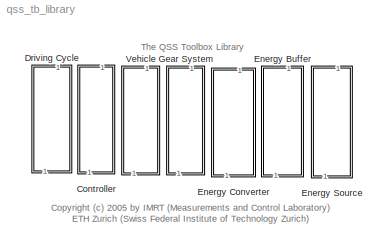
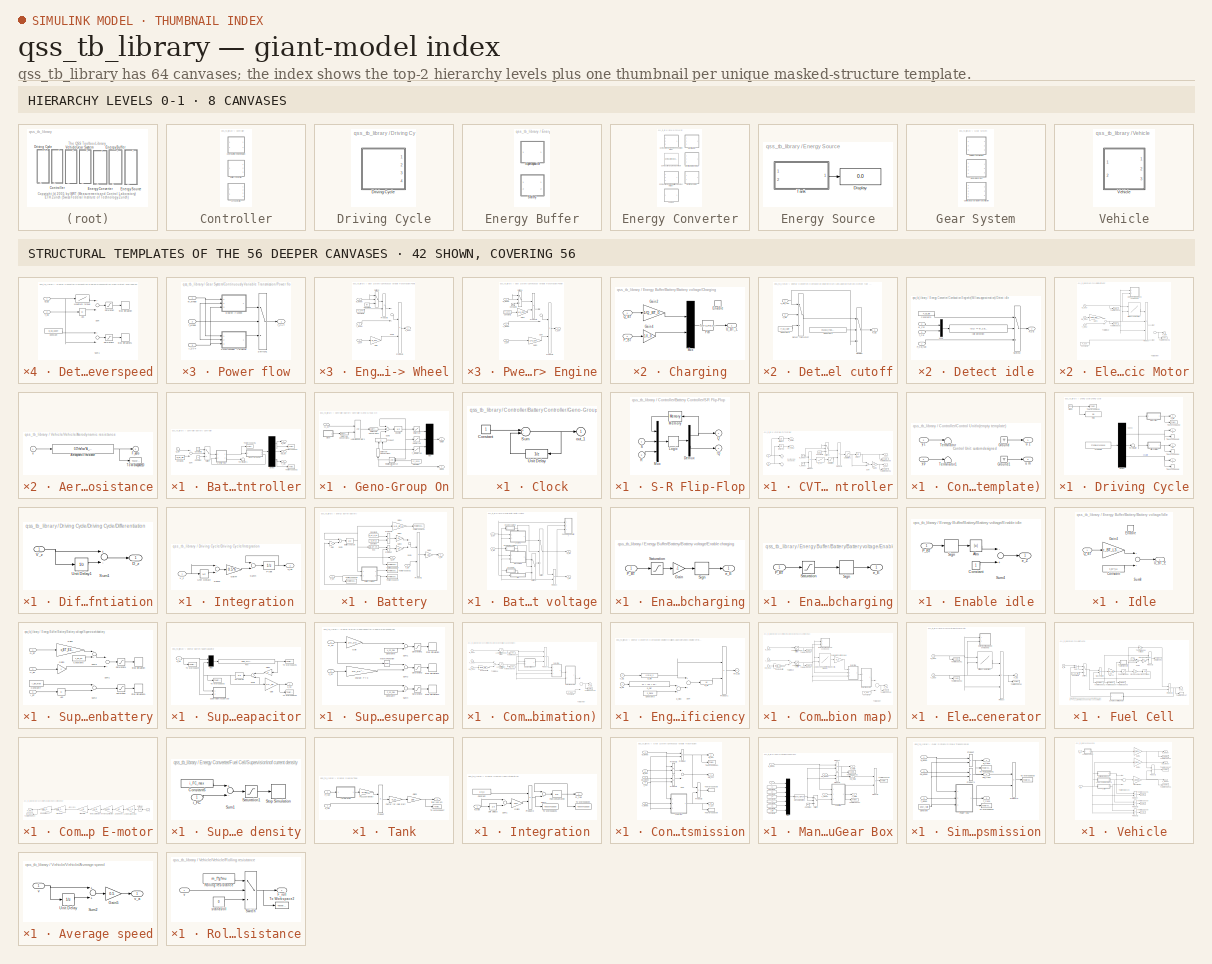
[diagram: thumbnail index - top-2 hierarchy levels (8 canvases) + 42 structural-template representatives of the remaining 56 canvases]
MODEL qss_tb_library
KIND library
BLOCK [SubSystem] Controller
  FunctionWithSeparateData = off
  MaskDisplay = disp('Controller')
  MaskHideContents = off
  MaskIconFrame = on
  MaskIconOpaque = on
  MaskIconRotate = port
  MaskIconUnits = autoscale
  MaskPortRotate = default
  MinAlgLoopOccurrences = off
  Opaque = off
  Ports = []
  PropExecContextOutsideSubsystem = off
  RTWSystemCode = Auto
  RequestExecContextInheritance = off
  SID = 1
BLOCK [SubSystem] Controller/Battery Controller
  AncestorBlock = qss_tb_library/Controller/Battery Controller
  FunctionWithSeparateData = off
  MaskDescription = Control strategy (very primitive):\n========================\nAs soon as battery charge drops below level Q_BT_min, the CE/Generator\nare started and operated at given load/speed for a fixed time period.\nThis time has been selected to guarantee the same battery level at the\nend of the cycle.\n
  MaskHideContents = off
  MaskIconFrame = on
  MaskIconOpaque = on
  MaskIconRotate = none
  MaskIconUnits = autoscale
  MaskInitialization = init_BT_ctrl;
  MaskPortRotate = default
  MaskType = Battery Controller
  MinAlgLoopOccurrences = off
  Opaque = off
  Ports = [1, 3]
  PropExecContextOutsideSubsystem = off
  RTWSystemCode = Auto
  RequestExecContextInheritance = off
  SID = 2
BLOCK [Constant] Controller/Battery Controller/Constant
  OutDataTypeStr = boolean
  SID = 2:2
BLOCK [Constant] Controller/Battery Controller/Constant1
  SID = 2:3
  Value = Q_BT_min
BLOCK [Constant] Controller/Battery Controller/Constant2
  OutDataTypeStr = boolean
  SID = 2:4
  Value = 0
BLOCK [Demux] Controller/Battery Controller/Demux
  Outputs = 3
  Ports = [1, 3]
  SID = 2:5
BLOCK [SubSystem] Controller/Battery Controller/Geno-Group On
  FunctionWithSeparateData = off
  MaskHideContents = off
  MinAlgLoopOccurrences = off
  Opaque = off
  Ports = [1, 2]
  PropExecContextOutsideSubsystem = off
  RTWSystemCode = Auto
  RequestExecContextInheritance = off
  SID = 2:6
BLOCK [SubSystem] Controller/Battery Controller/Geno-Group On/Clock
  FunctionWithSeparateData = off
  MaskDescription = Digital clock.\nOutput is set to 1 for the first half of the period.
  MaskDisplay = plot(0,0,100,100,[90,75,75,60,60,35,35,20,20,10],[20,20,80,80,19,20,80,80,20,20])
  MaskEnableString = on
  MaskHelp = Digital clock for logic systems.
  MaskHideContents = off
  MaskIconFrame = on
  MaskIconOpaque = on
  MaskIconRotate = none
  MaskIconUnits = autoscale
  MaskInitialization = duration = @1/2;
  MaskPortRotate = default
  MaskPromptString = Period:
  MaskStyleString = edit
  MaskToolTipString = on
  MaskTunableValueString = on
  MaskType = Digital clock
  MaskValueString = 2
  MaskVisibilityString = on
  MinAlgLoopOccurrences = off
  Opaque = off
  Ports = [0, 1]
  PropExecContextOutsideSubsystem = off
  RTWSystemCode = Auto
  RequestExecContextInheritance = off
  SID = 2:8
BLOCK [Constant] Controller/Battery Controller/Geno-Group On/Clock/Constant
  SID = 2:9
BLOCK [Sum] Controller/Battery Controller/Geno-Group On/Clock/Sum
  Inputs = +-
  Ports = [2, 1]
  SID = 2:10
BLOCK [UnitDelay] Controller/Battery Controller/Geno-Group On/Clock/Unit Delay
  SID = 2:11
  SampleTime = duration
BLOCK [Outport] Controller/Battery Controller/Geno-Group On/Clock/out_1
  IconDisplay = Port number
  InitialOutput = 0
  SID = 2:12
BLOCK [Constant] Controller/Battery Controller/Geno-Group On/Constant
  SID = 2:13
  Value = cc_done
BLOCK [UnitDelay] Controller/Battery Controller/Geno-Group On/Counter
  SID = 2:14
  SampleTime = h
BLOCK [DataTypeConversion] Controller/Battery Controller/Geno-Group On/Data Type Conversion1
  OutDataTypeStr = boolean
  RndMeth = Floor
  SID = 2:15
  SaturateOnIntegerOverflow = off
BLOCK [DataTypeConversion] Controller/Battery Controller/Geno-Group On/Data Type Conversion2
  OutDataTypeStr = double
  RndMeth = Floor
  SID = 2:16
  SaturateOnIntegerOverflow = off
BLOCK [DataTypeConversion] Controller/Battery Controller/Geno-Group On/Data Type Conversion3
  OutDataTypeStr = double
  RndMeth = Floor
  SID = 2:17
  SaturateOnIntegerOverflow = off
BLOCK [Logic] Controller/Battery Controller/Geno-Group On/Logical\noperator3
  Ports = [2, 1]
  SID = 2:18
BLOCK [Mux] Controller/Battery Controller/Geno-Group On/Mux
  Inputs = 3
  Ports = [3, 1]
  SID = 2:19
BLOCK [Outport] Controller/Battery Controller/Geno-Group On/OutOn
  IconDisplay = Port number
  InitialOutput = 0
  SID = 2:26
BLOCK [Product] Controller/Battery Controller/Geno-Group On/Product
  Ports = [2, 1]
  SID = 2:20
BLOCK [RelationalOperator] Controller/Battery Controller/Geno-Group On/Relational\nOperator
  OutDataTypeStr = boolean
  Ports = [2, 1]
  SID = 2:21
BLOCK [Sum] Controller/Battery Controller/Geno-Group On/Sum3
  Inputs = ++-
  Ports = [3, 1]
  SID = 2:22
BLOCK [Lookup] Controller/Battery Controller/Geno-Group On/T_EG start-up
  InputValues = t_c
  SID = 2:23
  Table = T_EG_c
BLOCK [Inport] Controller/Battery Controller/Geno-Group On/cc_on
  IconDisplay = Port number
  SID = 2:7
BLOCK [Outport] Controller/Battery Controller/Geno-Group On/done
  IconDisplay = Port number
  InitialOutput = 0
  Port = 2
  SID = 2:27
BLOCK [Lookup] Controller/Battery Controller/Geno-Group On/dw start-up
  InputValues = t_c
  SID = 2:24
  Table = dw_GG_c
BLOCK [Lookup] Controller/Battery Controller/Geno-Group On/w start-up
  InputValues = t_c
  SID = 2:25
  Table = w_GG_c
BLOCK [Inport] Controller/Battery Controller/Q_BT
  IconDisplay = Port number
  SID = 2:1
BLOCK [SubSystem] Controller/Battery Controller/S-R Flip-Flop
  FunctionWithSeparateData = off
  MaskHideContents = off
  MinAlgLoopOccurrences = off
  Opaque = off
  Ports = [2, 2]
  PropExecContextOutsideSubsystem = off
  RTWSystemCode = Auto
  RequestExecContextInheritance = off
  SID = 2:28
BLOCK [Outport] Controller/Battery Controller/S-R Flip-Flop/!Q
  IconDisplay = Port number
  InitialOutput = 1
  Port = 2
  SID = 2:36
BLOCK [Demux] Controller/Battery Controller/S-R Flip-Flop/Demux
  Outputs = 2
  Ports = [1, 2]
  SID = 2:31
BLOCK [CombinatorialLogic] Controller/Battery Controller/S-R Flip-Flop/Logic
  SID = 2:32
  TruthTable = [0 1;0 1;1 0;0 1;1 0;0 1;1 0;1 0]
BLOCK [Memory] Controller/Battery Controller/S-R Flip-Flop/Memory
  InheritSampleTime = on
  SID = 2:33
BLOCK [Mux] Controller/Battery Controller/S-R Flip-Flop/Mux
  Inputs = 3
  Ports = [3, 1]
  SID = 2:34
BLOCK [Outport] Controller/Battery Controller/S-R Flip-Flop/Q
  IconDisplay = Port number
  InitialOutput = 0
  SID = 2:35
BLOCK [Inport] Controller/Battery Controller/S-R Flip-Flop/R
  IconDisplay = Port number
  Port = 2
  SID = 2:30
BLOCK [Inport] Controller/Battery Controller/S-R Flip-Flop/S
  IconDisplay = Port number
  SID = 2:29
BLOCK [Sum] Controller/Battery Controller/Sum
  Inputs = +-
  Ports = [2, 1]
  SID = 2:37
BLOCK [Switch] Controller/Battery Controller/Switch
  SID = 2:38
BLOCK [Outport] Controller/Battery Controller/T_ctrl
  IconDisplay = Port number
  InitialOutput = 0
  Port = 3
  SID = 2:45
BLOCK [Terminator] Controller/Battery Controller/Terminator1
  SID = 2:39
BLOCK [ToWorkspace] Controller/Battery Controller/To Workspace1
  MaxDataPoints = inf
  Ports = [1]
  SID = 2:40
  SampleTime = -1
  SaveFormat = Array
  VariableName = w_ctrl
BLOCK [ToWorkspace] Controller/Battery Controller/To Workspace2
  MaxDataPoints = inf
  Ports = [1]
  SID = 2:41
  SampleTime = -1
  SaveFormat = Array
  VariableName = T_ctrl
BLOCK [ToWorkspace] Controller/Battery Controller/To Workspace5
  MaxDataPoints = inf
  Ports = [1]
  SID = 2:42
  SampleTime = -1
  SaveFormat = Array
  VariableName = cc_on
BLOCK [Outport] Controller/Battery Controller/dw_ctrl
  IconDisplay = Port number
  InitialOutput = 0
  Port = 2
  SID = 2:44
BLOCK [Outport] Controller/Battery Controller/w_ctrl
  IconDisplay = Port number
  InitialOutput = 0
  SID = 2:43
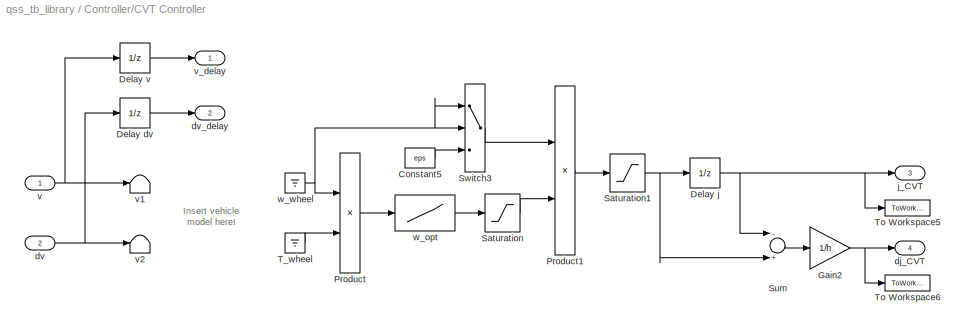
BLOCK [SubSystem] Controller/CVT Controller
  FunctionWithSeparateData = off
  MaskCallbackString = ||||
  MaskDescription = This block calculates the optimum gear ratio and its change during one integration step for a CVT.\n\nInput:\n=====\n	v		Speed [m/s]\n	dv		Acceleration [m/s^2]\n\nOutput:\n======\n	v_delay		Speed one step delayed [m/s]\n	dv_delay	Acceleration one step delayed [m/s^2]\n	j_CVT		Gear ratio [-]\n	dj_CVT		Change of gear ratio [1/s]
  MaskEnableString = on,on,on,on,on
  MaskHideContents = off
  MaskIconFrame = on
  MaskIconOpaque = on
  MaskIconRotate = none
  MaskIconUnits = autoscale
  MaskInitialization = init_CVT_ctrl;
  MaskPortRotate = default
  MaskPromptString = Lower gear ratio limit [-]|Upper gear ratio limit [-]|Minimum wheel speed [rad/s]|CVT idle speed [rad/s]|Maximum CVT speed [rad/s]
  MaskStyleString = edit,edit,edit,edit,edit
  MaskToolTipString = on,on,on,on,on
  MaskTunableValueString = on,on,on,on,on
  MaskType = CVT Controller
  MaskValueString = 3|15|3|100|300
  MaskVariables = j_CVT_min=@1;j_CVT_max=@2;w_wheel_min=@3;w_CVT_idle=@4;w_CVT_upper=@5;
  MaskVisibilityString = on,on,on,on,on
  MinAlgLoopOccurrences = off
  Opaque = off
  Ports = [2, 4]
  PropExecContextOutsideSubsystem = off
  RTWSystemCode = Auto
  RequestExecContextInheritance = off
  SID = 3
  Tag = cvt controller
BLOCK [Constant] Controller/CVT Controller/Constant5
  SID = 6
  Value = eps
BLOCK [UnitDelay] Controller/CVT Controller/Delay dv
  SID = 7
  SampleTime = h
BLOCK [UnitDelay] Controller/CVT Controller/Delay j
  SID = 8
  SampleTime = h
  X0 = j_CVT_min
BLOCK [UnitDelay] Controller/CVT Controller/Delay v
  SID = 9
  SampleTime = h
BLOCK [Gain] Controller/CVT Controller/Gain2
  Gain = 1/h
  SID = 10
BLOCK [Product] Controller/CVT Controller/Product
  Ports = [2, 1]
  SID = 11
BLOCK [Product] Controller/CVT Controller/Product1
  Inputs = /*
  Ports = [2, 1]
  SID = 12
BLOCK [Saturate] Controller/CVT Controller/Saturation
  InputPortMap = u0
  LowerLimit = w_CVT_idle
  Ports = [1, 1]
  SID = 13
  UpperLimit = w_CVT_upper
BLOCK [Saturate] Controller/CVT Controller/Saturation1
  InputPortMap = u0
  LowerLimit = j_CVT_min
  Ports = [1, 1]
  SID = 14
  UpperLimit = j_CVT_max
BLOCK [Sum] Controller/CVT Controller/Sum
  Inputs = -+
  Ports = [2, 1]
  SID = 15
BLOCK [Switch] Controller/CVT Controller/Switch3
  SID = 16
  Threshold = w_wheel_min
BLOCK [Ground] Controller/CVT Controller/T_wheel
  SID = 17
BLOCK [ToWorkspace] Controller/CVT Controller/To Workspace5
  MaxDataPoints = inf
  Ports = [1]
  SID = 18
  SampleTime = -1
  SaveFormat = Array
  VariableName = j_CVT
BLOCK [ToWorkspace] Controller/CVT Controller/To Workspace6
  MaxDataPoints = inf
  Ports = [1]
  SID = 19
  SampleTime = -1
  SaveFormat = Array
  VariableName = dj_CVT
BLOCK [Outport] Controller/CVT Controller/dj_CVT
  IconDisplay = Port number
  InitialOutput = 0
  Port = 4
  SID = 27
BLOCK [Inport] Controller/CVT Controller/dv
  IconDisplay = Port number
  Port = 2
  SID = 5
BLOCK [Outport] Controller/CVT Controller/dv_delay
  IconDisplay = Port number
  InitialOutput = 0
  Port = 2
  SID = 25
BLOCK [Outport] Controller/CVT Controller/j_CVT
  IconDisplay = Port number
  InitialOutput = 0
  Port = 3
  SID = 26
BLOCK [Inport] Controller/CVT Controller/v
  IconDisplay = Port number
  SID = 4
BLOCK [Terminator] Controller/CVT Controller/v1
  SID = 20
BLOCK [Terminator] Controller/CVT Controller/v2
  SID = 21
BLOCK [Outport] Controller/CVT Controller/v_delay
  IconDisplay = Port number
  InitialOutput = 0
  SID = 24
BLOCK [Lookup] Controller/CVT Controller/w_opt
  InputValues = P_CVT_opt
  SID = 22
  Table = w_CVT_opt
BLOCK [Ground] Controller/CVT Controller/w_wheel
  SID = 23
BLOCK [SubSystem] Controller/Control Unit\n(empty template)
  FunctionWithSeparateData = off
  MaskDescription = This block gives the user the opportunity to design his/her own control unit. \n\nThe user can define the inputs and outputs  by himself/herself.\n
  MaskHideContents = off
  MaskIconFrame = on
  MaskIconOpaque = on
  MaskIconRotate = none
  MaskIconUnits = autoscale
  MaskPortRotate = default
  MaskType = Control Unit
  MinAlgLoopOccurrences = off
  Opaque = off
  Ports = [2, 2]
  PropExecContextOutsideSubsystem = off
  RTWSystemCode = Auto
  RequestExecContextInheritance = off
  SID = 28
  Tag = control unit
BLOCK [Ground] Controller/Control Unit\n(empty template)/Ground
  SID = 31
BLOCK [Ground] Controller/Control Unit\n(empty template)/Ground1
  SID = 32
BLOCK [Terminator] Controller/Control Unit\n(empty template)/Terminator
  SID = 33
BLOCK [Terminator] Controller/Control Unit\n(empty template)/Terminator1
  SID = 34
BLOCK [Outport] Controller/Control Unit\n(empty template)/u 1
  IconDisplay = Port number
  InitialOutput = 0
  SID = 35
BLOCK [Outport] Controller/Control Unit\n(empty template)/u m
  IconDisplay = Port number
  InitialOutput = 0
  Port = 2
  SID = 36
BLOCK [Inport] Controller/Control Unit\n(empty template)/y 1
  IconDisplay = Port number
  SID = 29
BLOCK [Inport] Controller/Control Unit\n(empty template)/y p
  IconDisplay = Port number
  Port = 2
  SID = 30
BLOCK [SubSystem] Driving Cycle
  FunctionWithSeparateData = off
  MaskDisplay = disp('Driving Cycle')
  MaskHideContents = off
  MaskIconFrame = on
  MaskIconOpaque = on
  MaskIconRotate = port
  MaskIconUnits = autoscale
  MaskPortRotate = default
  MinAlgLoopOccurrences = off
  Opaque = off
  Ports = []
  PropExecContextOutsideSubsystem = off
  RTWSystemCode = Auto
  RequestExecContextInheritance = off
  SID = 37
BLOCK [SubSystem] Driving Cycle/Driving Cycle
  FunctionWithSeparateData = off
  MaskCallbackString = ||
  MaskDescription = This block loads the cycle data such as time, speed, acceleration and gear number,  from the specified data file and makes it available on the output of the cycle block.\n\nOutput:\n======\n	v	Speed [m/s]\n	dv	Acceleration [m/s^2]\n	i	Gear number [-]\n	x_tot	Total distance [m]\n\nTip:\n===\nProbably you don't need the gear number \"i\". If so you can terminate\nit with a \"Terminator\" out of the ...<+423ch>
  MaskDisplay = plot(T_zplot, V_zplot);\n
  MaskEnableString = on,on,on
  MaskHideContents = off
  MaskIconFrame = on
  MaskIconOpaque = off
  MaskIconRotate = none
  MaskIconUnits = autoscale
  MaskInitialization = init_driving_cycle;
  MaskPortRotate = default
  MaskPromptString = Choose a cycle|Step size [s]|Enable automatic simulation stop
  MaskStyleString = popup(Europe: ECE manual|Europe: ECE R15 spez|Europe: ECE R15|Europe: EUDC|Europe: EUDC manual|Europe: City|Europe: City manual|Europe: NEDC|Europe: NEDC manual|Japan:  10-15-Mode|Japan:  10-Mode|Japan:  10-Mode-3|Japan:  11-Mode|Japan:  11-Mode-4|Japan:  15-Mode|USA:    City-I|USA:    City-II|USA:    FTP-75|USA:    FTP-Highway|Int'l:     WLTC Class 3),edit,checkbox
  MaskToolTipString = on,on,on
  MaskTunableValueString = on,on,on
  MaskType = Driving Cycle
  MaskValueString = Europe: NEDC|1|on
  MaskVariables = cyclenr=@1;stepsize=@2;autostop=@3;
  MaskVisibilityString = on,on,on
  MinAlgLoopOccurrences = off
  Opaque = off
  Ports = [0, 4]
  PropExecContextOutsideSubsystem = off
  RTWSystemCode = Auto
  RequestExecContextInheritance = off
  SID = 38
  Tag = cycle
BLOCK [Clock] Driving Cycle/Driving Cycle/Clock
  SID = 39
BLOCK [FromWorkspace] Driving Cycle/Driving Cycle/Cycle data
  SID = 40
  SampleTime = h
  VariableName = [T_z, V_z, D_z, G_z]
BLOCK [Demux] Driving Cycle/Driving Cycle/Demux
  Outputs = 3
  Ports = [1, 3]
  SID = 41
BLOCK [SubSystem] Driving Cycle/Driving Cycle/Differentiation
  FunctionWithSeparateData = off
  MaskHideContents = off
  MinAlgLoopOccurrences = off
  Opaque = off
  Ports = [1, 1]
  PropExecContextOutsideSubsystem = off
  RTWSystemCode = Auto
  RequestExecContextInheritance = off
  SID = 42
BLOCK [Outport] Driving Cycle/Driving Cycle/Differentiation/D_z
  IconDisplay = Port number
  InitialOutput = 0
  SID = 46
BLOCK [Sum] Driving Cycle/Driving Cycle/Differentiation/Sum1
  Inputs = +-
  Ports = [2, 1]
  SID = 44
BLOCK [UnitDelay] Driving Cycle/Driving Cycle/Differentiation/Unit Delay1
  SID = 45
  SampleTime = h
BLOCK [Inport] Driving Cycle/Driving Cycle/Differentiation/V_z
  IconDisplay = Port number
  SID = 43
BLOCK [SubSystem] Driving Cycle/Driving Cycle/Integration
  FunctionWithSeparateData = off
  MaskHideContents = off
  MinAlgLoopOccurrences = off
  Opaque = off
  Ports = [1, 1]
  PropExecContextOutsideSubsystem = off
  RTWSystemCode = Auto
  RequestExecContextInheritance = off
  SID = 47
BLOCK [Gain] Driving Cycle/Driving Cycle/Integration/Gain4
  Gain = 0.5*h
  SID = 49
BLOCK [UnitDelay] Driving Cycle/Driving Cycle/Integration/Plant
  SID = 50
  SampleTime = h
  X0 = 1
BLOCK [Sum] Driving Cycle/Driving Cycle/Integration/Sum2
  Ports = [2, 1]
  SID = 51
BLOCK [Sum] Driving Cycle/Driving Cycle/Integration/Sum4
  Ports = [2, 1]
  SID = 52
BLOCK [UnitDelay] Driving Cycle/Driving Cycle/Integration/Unit Delay2
  SID = 53
  SampleTime = h
BLOCK [Inport] Driving Cycle/Driving Cycle/Integration/V_z
  IconDisplay = Port number
  SID = 48
BLOCK [Outport] Driving Cycle/Driving Cycle/Integration/x_tot
  IconDisplay = Port number
  InitialOutput = 0
  SID = 54
BLOCK [Terminator] Driving Cycle/Driving Cycle/Terminator
  SID = 55
BLOCK [Display] Driving Cycle/Driving Cycle/Time
  Decimation = 1
  Lockdown = off
  Ports = [1]
  SID = 56
BLOCK [ToWorkspace] Driving Cycle/Driving Cycle/To Workspace1
  MaxDataPoints = inf
  Ports = [1]
  SID = 57
  SampleTime = -1
  SaveFormat = Array
  VariableName = t
BLOCK [ToWorkspace] Driving Cycle/Driving Cycle/To Workspace2
  MaxDataPoints = inf
  Ports = [1]
  SID = 58
  SampleTime = -1
  SaveFormat = Array
  VariableName = x_tot
BLOCK [ToWorkspace] Driving Cycle/Driving Cycle/To Workspace4
  MaxDataPoints = inf
  Ports = [1]
  SID = 59
  SampleTime = -1
  SaveFormat = Array
  VariableName = dv
BLOCK [ToWorkspace] Driving Cycle/Driving Cycle/To Workspace5
  MaxDataPoints = inf
  Ports = [1]
  SID = 60
  SampleTime = -1
  SaveFormat = Array
  VariableName = v
BLOCK [ToWorkspace] Driving Cycle/Driving Cycle/To Workspace6
  MaxDataPoints = inf
  Ports = [1]
  SID = 61
  SampleTime = -1
  SaveFormat = Array
  VariableName = i
BLOCK [Outport] Driving Cycle/Driving Cycle/dv
  IconDisplay = Port number
  InitialOutput = 0
  Port = 2
  SID = 63
BLOCK [Outport] Driving Cycle/Driving Cycle/i
  IconDisplay = Port number
  InitialOutput = 0
  Port = 3
  SID = 64
BLOCK [Outport] Driving Cycle/Driving Cycle/v
  IconDisplay = Port number
  InitialOutput = 0
  SID = 62
BLOCK [Outport] Driving Cycle/Driving Cycle/x_tot
  IconDisplay = Port number
  InitialOutput = 0
  Port = 4
  SID = 65
BLOCK [SubSystem] Energy Buffer
  FunctionWithSeparateData = off
  MaskDisplay = disp('Energy Buffer')
  MaskHideContents = off
  MaskIconFrame = on
  MaskIconOpaque = on
  MaskIconRotate = port
  MaskIconUnits = autoscale
  MaskPortRotate = default
  MinAlgLoopOccurrences = off
  Opaque = off
  Ports = []
  PropExecContextOutsideSubsystem = off
  RTWSystemCode = Auto
  RequestExecContextInheritance = off
  SID = 66
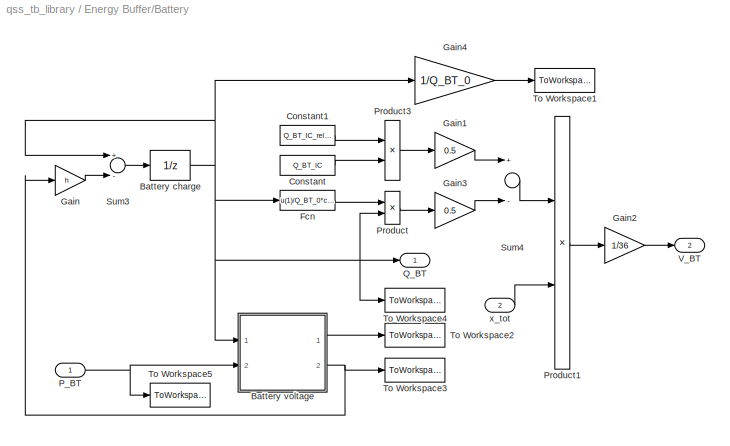
BLOCK [SubSystem] Energy Buffer/Battery
  FunctionWithSeparateData = off
  MaskCallbackString = ||
  MaskDescription = This block simulates a battery. \nThe resistance depends on the charge state and the charge/discharge current of the battery. The battery has an open circuit voltage of 130 V (fully charged).\n\nInput:\n=====\n	x_tot	Total distance [m]\n	P_BT	Power from/to the battery [W]\n		P_BT < 0: battery charging\n		P_BT > 0: battery discharging\n\nOutput:\n======\n	Q_BT	Current charge of the battery [C]\n	V_...<+36ch>
  MaskEnableString = on,on,on
  MaskHideContents = off
  MaskIconFrame = on
  MaskIconOpaque = on
  MaskIconRotate = none
  MaskIconUnits = autoscale
  MaskInitialization = init_BT;
  MaskPortRotate = default
  MaskPromptString = Energy capacity of battery [Ah]|Initial charge of battery [%]|Current limit: minimum time to charge/discharge the battery [min]
  MaskStyleString = edit,edit,edit
  MaskToolTipString = on,on,on
  MaskTunableValueString = on,on,on
  MaskType = Battery
  MaskValueString = 10|50|2
  MaskVariables = I_0=@1;Q_BT_IC_rel=@2;t_ch=@3;
  MaskVisibilityString = on,on,on
  MinAlgLoopOccurrences = off
  Opaque = off
  Ports = [2, 2]
  PropExecContextOutsideSubsystem = off
  RTWSystemCode = Auto
  RequestExecContextInheritance = off
  SID = 67
  Tag = battery
BLOCK [UnitDelay] Energy Buffer/Battery/Battery charge
  SID = 70
  SampleTime = h
  X0 = Q_BT_IC
BLOCK [SubSystem] Energy Buffer/Battery/Battery voltage
  FunctionWithSeparateData = off
  MaskHideContents = off
  MinAlgLoopOccurrences = off
  Opaque = off
  Ports = [2, 2]
  PropExecContextOutsideSubsystem = off
  RTWSystemCode = Auto
  RequestExecContextInheritance = off
  SID = 71
BLOCK [SubSystem] Energy Buffer/Battery/Battery voltage/Charging
  FunctionWithSeparateData = off
  MaskHideContents = off
  MinAlgLoopOccurrences = off
  Opaque = off
  Ports = [2, 1, 1]
  PropExecContextOutsideSubsystem = off
  RTWSystemCode = Auto
  RequestExecContextInheritance = off
  SID = 74
BLOCK [EnablePort] Energy Buffer/Battery/Battery voltage/Charging/Enable
  Ports = []
  SID = 77
BLOCK [Fcn] Energy Buffer/Battery/Battery voltage/Charging/Fcn
  Expr = (c_BT_L3*u[1]+c_BT_L1+sqrt((c_BT_L3*u[1]+c_BT_L1)^2+4*(c_BT_L4*u[1]+c_BT_L2)*(-u[2])))/2
  SID = 79
BLOCK [Gain] Energy Buffer/Battery/Battery voltage/Charging/Gain2
  Gain = 1/Q_BT_0
  SID = 80
BLOCK [Gain] Energy Buffer/Battery/Battery voltage/Charging/Gain4
  Gain = 1/I_0
  SID = 81
BLOCK [Mux] Energy Buffer/Battery/Battery voltage/Charging/Mux
  Inputs = 2
  Ports = [2, 1]
  SID = 82
BLOCK [Inport] Energy Buffer/Battery/Battery voltage/Charging/P_BT
  IconDisplay = Port number
  Port = 2
  SID = 76
BLOCK [Inport] Energy Buffer/Battery/Battery voltage/Charging/Q_BT
  IconDisplay = Port number
  SID = 75
BLOCK [Outport] Energy Buffer/Battery/Battery voltage/Charging/U_BT_L
  IconDisplay = Port number
  InitialOutput = 0
  SID = 84
BLOCK [SubSystem] Energy Buffer/Battery/Battery voltage/Discharging
  FunctionWithSeparateData = off
  MaskHideContents = off
  MinAlgLoopOccurrences = off
  Opaque = off
  Ports = [2, 1, 1]
  PropExecContextOutsideSubsystem = off
  RTWSystemCode = Auto
  RequestExecContextInheritance = off
  SID = 85
BLOCK [EnablePort] Energy Buffer/Battery/Battery voltage/Discharging/Enable
  Ports = []
  SID = 88
BLOCK [Fcn] Energy Buffer/Battery/Battery voltage/Discharging/Fcn
  Expr = (c_BT_E3*u[1]+c_BT_E1+sqrt((c_BT_E3*u[1]+c_BT_E1)^2+4*(c_BT_E4*u[1]+c_BT_E2)*(-u[2])))/2
  SID = 90
BLOCK [Gain] Energy Buffer/Battery/Battery voltage/Discharging/Gain4
  Gain = 1/Q_BT_0
  SID = 91
BLOCK [Gain] Energy Buffer/Battery/Battery voltage/Discharging/Gain5
  Gain = 1/I_0
  SID = 92
BLOCK [Mux] Energy Buffer/Battery/Battery voltage/Discharging/Mux
  Inputs = 2
  Ports = [2, 1]
  SID = 93
BLOCK [Inport] Energy Buffer/Battery/Battery voltage/Discharging/P_BT
  IconDisplay = Port number
  Port = 2
  SID = 87
BLOCK [Inport] Energy Buffer/Battery/Battery voltage/Discharging/Q_BT
  IconDisplay = Port number
  SID = 86
BLOCK [Outport] Energy Buffer/Battery/Battery voltage/Discharging/U_BT_E
  IconDisplay = Port number
  InitialOutput = 0
  SID = 95
BLOCK [SubSystem] Energy Buffer/Battery/Battery voltage/Enable charging
  FunctionWithSeparateData = off
  MaskHideContents = off
  MinAlgLoopOccurrences = off
  Opaque = off
  Ports = [1, 1]
  PropExecContextOutsideSubsystem = off
  RTWSystemCode = Auto
  RequestExecContextInheritance = off
  SID = 96
BLOCK [Gain] Energy Buffer/Battery/Battery voltage/Enable charging/Gain
  Gain = -1
  SID = 98
BLOCK [Inport] Energy Buffer/Battery/Battery voltage/Enable charging/P_BT
  IconDisplay = Port number
  SID = 97
BLOCK [Saturate] Energy Buffer/Battery/Battery voltage/Enable charging/Saturation
  InputPortMap = u0
  LowerLimit = -inf
  Ports = [1, 1]
  SID = 99
  UpperLimit = 0
BLOCK [Signum] Energy Buffer/Battery/Battery voltage/Enable charging/Sign
  SID = 100
BLOCK [Outport] Energy Buffer/Battery/Battery voltage/Enable charging/e_E
  IconDisplay = Port number
  InitialOutput = 0
  SID = 101
BLOCK [SubSystem] Energy Buffer/Battery/Battery voltage/Enable discharging
  FunctionWithSeparateData = off
  MaskHideContents = off
  MinAlgLoopOccurrences = off
  Opaque = off
  Ports = [1, 1]
  PropExecContextOutsideSubsystem = off
  RTWSystemCode = Auto
  RequestExecContextInheritance = off
  SID = 102
BLOCK [Inport] Energy Buffer/Battery/Battery voltage/Enable discharging/P_BT
  IconDisplay = Port number
  SID = 103
BLOCK [Saturate] Energy Buffer/Battery/Battery voltage/Enable discharging/Saturation
  InputPortMap = u0
  LowerLimit = 0
  Ports = [1, 1]
  SID = 104
  UpperLimit = inf
BLOCK [Signum] Energy Buffer/Battery/Battery voltage/Enable discharging/Sign
  SID = 105
BLOCK [Outport] Energy Buffer/Battery/Battery voltage/Enable discharging/e_E
  IconDisplay = Port number
  InitialOutput = 0
  SID = 106
BLOCK [SubSystem] Energy Buffer/Battery/Battery voltage/Enable idle
  FunctionWithSeparateData = off
  MaskHideContents = off
  MinAlgLoopOccurrences = off
  Opaque = off
  Ports = [1, 1]
  PropExecContextOutsideSubsystem = off
  RTWSystemCode = Auto
  RequestExecContextInheritance = off
  SID = 107
BLOCK [Abs] Energy Buffer/Battery/Battery voltage/Enable idle/Abs
  SID = 109
BLOCK [Constant] Energy Buffer/Battery/Battery voltage/Enable idle/Constant
  SID = 110
BLOCK [Inport] Energy Buffer/Battery/Battery voltage/Enable idle/P_BT
  IconDisplay = Port number
  SID = 108
BLOCK [Signum] Energy Buffer/Battery/Battery voltage/Enable idle/Sign
  SID = 111
BLOCK [Sum] Energy Buffer/Battery/Battery voltage/Enable idle/Sum4
  Inputs = -+
  Ports = [2, 1]
  SID = 112
BLOCK [Outport] Energy Buffer/Battery/Battery voltage/Enable idle/e_Z
  IconDisplay = Port number
  InitialOutput = 0
  SID = 113
BLOCK [Outport] Energy Buffer/Battery/Battery voltage/I_BT
  IconDisplay = Port number
  InitialOutput = 0
  Port = 2
  SID = 145
BLOCK [SubSystem] Energy Buffer/Battery/Battery voltage/Idle
  FunctionWithSeparateData = off
  MaskHideContents = off
  MinAlgLoopOccurrences = off
  Opaque = off
  Ports = [1, 1, 1]
  PropExecContextOutsideSubsystem = off
  RTWSystemCode = Auto
  RequestExecContextInheritance = off
  SID = 114
BLOCK [Constant] Energy Buffer/Battery/Battery voltage/Idle/Constant
  SID = 117
  Value = c_BT_L1
BLOCK [EnablePort] Energy Buffer/Battery/Battery voltage/Idle/Enable
  Ports = []
  SID = 116
  StatesWhenEnabling = reset
BLOCK [Gain] Energy Buffer/Battery/Battery voltage/Idle/Gain4
  Gain = c_BT_L3/Q_BT_0
  SID = 119
BLOCK [Inport] Energy Buffer/Battery/Battery voltage/Idle/Q_BT
  IconDisplay = Port number
  SID = 115
BLOCK [Sum] Energy Buffer/Battery/Battery voltage/Idle/Sum8
  Ports = [2, 1]
  SID = 121
BLOCK [Outport] Energy Buffer/Battery/Battery voltage/Idle/U_BT_E
  IconDisplay = Port number
  InitialOutput = 0
  SID = 122
BLOCK [Inport] Energy Buffer/Battery/Battery voltage/P_BT
  IconDisplay = Port number
  Port = 2
  SID = 73
BLOCK [Product] Energy Buffer/Battery/Battery voltage/Product
  Inputs = /*
  Ports = [2, 1]
  SID = 123
BLOCK [Inport] Energy Buffer/Battery/Battery voltage/Q_BT
  IconDisplay = Port number
  SID = 72
BLOCK [SubSystem] Energy Buffer/Battery/Battery voltage/Supervision\nbattery
  FunctionWithSeparateData = off
  MaskHideContents = off
  MinAlgLoopOccurrences = off
  Opaque = off
  Ports = [3]
  PropExecContextOutsideSubsystem = off
  RTWSystemCode = Auto
  RequestExecContextInheritance = off
  SID = 124
BLOCK [Abs] Energy Buffer/Battery/Battery voltage/Supervision\nbattery/Abs
  SID = 128
BLOCK [Constant] Energy Buffer/Battery/Battery voltage/Supervision\nbattery/Constant6
  SID = 130
  Value = c_BT_E1
BLOCK [Constant] Energy Buffer/Battery/Battery voltage/Supervision\nbattery/Constant7
  SID = 131
  Value = I_BT_max
BLOCK [Gain] Energy Buffer/Battery/Battery voltage/Supervision\nbattery/Gain2
  Gain = c_BT_E3/Q_BT_0
  SID = 132
BLOCK [Gain] Energy Buffer/Battery/Battery voltage/Supervision\nbattery/Gain3
  Gain = 2
  SID = 133
BLOCK [Inport] Energy Buffer/Battery/Battery voltage/Supervision\nbattery/I_BT
  IconDisplay = Port number
  Port = 3
  SID = 127
BLOCK [Inport] Energy Buffer/Battery/Battery voltage/Supervision\nbattery/Q_BT
  IconDisplay = Port number
  SID = 125
BLOCK [Saturate] Energy Buffer/Battery/Battery voltage/Supervision\nbattery/Saturation
  InputPortMap = u0
  LowerLimit = -inf
  Ports = [1, 1]
  SID = 134
  UpperLimit = 0
BLOCK [Saturate] Energy Buffer/Battery/Battery voltage/Supervision\nbattery/Saturation1
  InputPortMap = u0
  LowerLimit = -inf
  Ports = [1, 1]
  SID = 135
  UpperLimit = 0
BLOCK [Stop] Energy Buffer/Battery/Battery voltage/Supervision\nbattery/Stop Simulation
  SID = 136
BLOCK [Stop] Energy Buffer/Battery/Battery voltage/Supervision\nbattery/Stop Simulation1
  SID = 137
BLOCK [Sum] Energy Buffer/Battery/Battery voltage/Supervision\nbattery/Sum1
  Inputs = -+
  Ports = [2, 1]
  SID = 138
BLOCK [Sum] Energy Buffer/Battery/Battery voltage/Supervision\nbattery/Sum2
  Inputs = +-
  Ports = [2, 1]
  SID = 139
BLOCK [Sum] Energy Buffer/Battery/Battery voltage/Supervision\nbattery/Sum3
  Ports = [2, 1]
  SID = 140
BLOCK [Inport] Energy Buffer/Battery/Battery voltage/Supervision\nbattery/U_BT
  IconDisplay = Port number
  Port = 2
  SID = 126
BLOCK [Switch] Energy Buffer/Battery/Battery voltage/Switch
  SID = 142
  Threshold = 0.5
BLOCK [Switch] Energy Buffer/Battery/Battery voltage/Switch1
  SID = 143
  Threshold = 0.5
BLOCK [Outport] Energy Buffer/Battery/Battery voltage/U_BT
  IconDisplay = Port number
  InitialOutput = 0
  SID = 144
BLOCK [Constant] Energy Buffer/Battery/Constant
  SID = 146
  Value = Q_BT_IC
BLOCK [Constant] Energy Buffer/Battery/Constant1
  SID = 1300
  Value = Q_BT_IC_rel/100*c_BT_L3+c_BT_L1
BLOCK [Fcn] Energy Buffer/Battery/Fcn
  Expr = u(1)/Q_BT_0*c_BT_L3+c_BT_L1
  SID = 1751
BLOCK [Gain] Energy Buffer/Battery/Gain
  Gain = h
  SID = 147
BLOCK [Gain] Energy Buffer/Battery/Gain1
  Gain = 0.5
  SID = 1298
BLOCK [Gain] Energy Buffer/Battery/Gain2
  Gain = 1/36
  SID = 1306
BLOCK [Gain] Energy Buffer/Battery/Gain3
  Gain = 0.5
  SID = 1303
BLOCK [Gain] Energy Buffer/Battery/Gain4
  Gain = 1/Q_BT_0
  SID = 149
BLOCK [Inport] Energy Buffer/Battery/P_BT
  IconDisplay = Port number
  SID = 68
BLOCK [Product] Energy Buffer/Battery/Product
  InputSameDT = off
  OutDataTypeStr = Inherit: Inherit via internal rule
  Ports = [2, 1]
  SID = 1299
  SaturateOnIntegerOverflow = off
BLOCK [Product] Energy Buffer/Battery/Product1
  Inputs = */
  Ports = [2, 1]
  SID = 150
BLOCK [Product] Energy Buffer/Battery/Product3
  InputSameDT = off
  OutDataTypeStr = Inherit: Inherit via internal rule
  Ports = [2, 1]
  SID = 1302
  SaturateOnIntegerOverflow = off
BLOCK [Outport] Energy Buffer/Battery/Q_BT
  IconDisplay = Port number
  InitialOutput = 0
  SID = 158
BLOCK [Sum] Energy Buffer/Battery/Sum3
  Inputs = +-
  Ports = [2, 1]
  SID = 151
BLOCK [Sum] Energy Buffer/Battery/Sum4
  Inputs = +-
  Ports = [2, 1]
  SID = 152
BLOCK [ToWorkspace] Energy Buffer/Battery/To Workspace1
  MaxDataPoints = inf
  Ports = [1]
  SID = 153
  SampleTime = -1
  SaveFormat = Array
  VariableName = q_BT
BLOCK [ToWorkspace] Energy Buffer/Battery/To Workspace2
  MaxDataPoints = inf
  Ports = [1]
  SID = 154
  SampleTime = -1
  SaveFormat = Array
  VariableName = U_BT
BLOCK [ToWorkspace] Energy Buffer/Battery/To Workspace3
  MaxDataPoints = inf
  Ports = [1]
  SID = 155
  SampleTime = -1
  SaveFormat = Array
  VariableName = I_BT
BLOCK [ToWorkspace] Energy Buffer/Battery/To Workspace4
  MaxDataPoints = inf
  Ports = [1]
  SID = 156
  SampleTime = -1
  SaveFormat = Array
  VariableName = Q_BT
BLOCK [ToWorkspace] Energy Buffer/Battery/To Workspace5
  MaxDataPoints = inf
  Ports = [1]
  SID = 157
  SampleTime = -1
  SaveFormat = Array
  VariableName = P_BT
BLOCK [Outport] Energy Buffer/Battery/V_BT
  IconDisplay = Port number
  InitialOutput = 0
  Port = 2
  SID = 159
BLOCK [Inport] Energy Buffer/Battery/x_tot
  IconDisplay = Port number
  Port = 2
  SID = 69
BLOCK [SubSystem] Energy Buffer/Supercapacitor
  FunctionWithSeparateData = off
  MaskCallbackString = |||||
  MaskDescription = The supercap is a fast electric energy buffer.\n\nInput:\n=====\n	P_SC	Power to/from the supercap [W]\n		P_SC < 0: SC charging\n		P_SC > 0: SC discharging\n\nOutput:\n======\n	U_SC	Voltage of the supercap [V]
  MaskEnableString = on,on,on,on,on,on
  MaskHideContents = off
  MaskIconFrame = on
  MaskIconOpaque = on
  MaskIconRotate = none
  MaskIconUnits = autoscale
  MaskInitialization = init_SC;
  MaskPortRotate = default
  MaskPromptString = Capacity of each supercap [F]|Internal resistance of each supercap [Ohm]|Maximum voltage of each supercap  [V]|Maximum power of each supercap [W]|Initial charge of each supercap [%]|Number of supercaps (parallel connection) [-]
  MaskStyleString = edit,edit,edit,edit,edit,edit
  MaskToolTipString = on,on,on,on,on,on
  MaskTunableValueString = on,on,on,on,on,on
  MaskType = Supercapacitor
  MaskValueString = 8|0.72|225|17500|95|6
  MaskVariables = C_SC=@1;R_SC=@2;U_SC_max=@3;P_SC_max=@4;Q_SC_IC_rel=@5;N_SC=@6;
  MaskVisibilityString = on,on,on,on,on,on
  MinAlgLoopOccurrences = off
  Opaque = off
  Ports = [1, 1]
  PropExecContextOutsideSubsystem = off
  RTWSystemCode = Auto
  RequestExecContextInheritance = off
  SID = 160
  Tag = supercap
BLOCK [Fcn] Energy Buffer/Supercapacitor/Fcn
  Expr = (-u[2]/C_SC+sqrt(u[2]^2/C_SC^2-4*R_SC*u[1]))/(2*R_SC)
  SID = 162
BLOCK [Gain] Energy Buffer/Supercapacitor/Gain
  Gain = 1/C_SC
  SID = 163
BLOCK [Gain] Energy Buffer/Supercapacitor/Gain1
  Gain = h
  SID = 164
BLOCK [Mux] Energy Buffer/Supercapacitor/Mux
  Inputs = 2
  Ports = [2, 1]
  SID = 165
BLOCK [Inport] Energy Buffer/Supercapacitor/P_SC
  IconDisplay = Port number
  SID = 161
BLOCK [UnitDelay] Energy Buffer/Supercapacitor/SC charge
  SID = 166
  SampleTime = h
  X0 = Q_SC_IC
BLOCK [Sum] Energy Buffer/Supercapacitor/Sum3
  Ports = [2, 1]
  SID = 167
BLOCK [SubSystem] Energy Buffer/Supercapacitor/Supervision\nsupercap
  FunctionWithSeparateData = off
  MaskHideContents = off
  MinAlgLoopOccurrences = off
  Opaque = off
  Ports = [2]
  PropExecContextOutsideSubsystem = off
  RTWSystemCode = Auto
  RequestExecContextInheritance = off
  SID = 168
BLOCK [Gain] Energy Buffer/Supercapacitor/Supervision\nsupercap/Charge: P > 0
  Gain = 4*C_SC^2*R_SC
  SID = 171
BLOCK [Constant] Energy Buffer/Supercapacitor/Supervision\nsupercap/Constant6
  SID = 172
  Value = U_SC_max
BLOCK [Constant] Energy Buffer/Supercapacitor/Supervision\nsupercap/Constant7
  SID = 173
  Value = P_SC_max
BLOCK [Gain] Energy Buffer/Supercapacitor/Supervision\nsupercap/Gain
  Gain = 1/C_SC
  SID = 174
BLOCK [Math] Energy Buffer/Supercapacitor/Supervision\nsupercap/Math\nFunction
  Operator = square
  Ports = [1, 1]
  SID = 175
BLOCK [Inport] Energy Buffer/Supercapacitor/Supervision\nsupercap/P_SC
  IconDisplay = Port number
  Port = 2
  SID = 170
BLOCK [Inport] Energy Buffer/Supercapacitor/Supervision\nsupercap/Q_SC
  IconDisplay = Port number
  SID = 169
BLOCK [Saturate] Energy Buffer/Supercapacitor/Supervision\nsupercap/Saturation1
  InputPortMap = u0
  LowerLimit = -inf
  Ports = [1, 1]
  SID = 176
  UpperLimit = 0
BLOCK [Saturate] Energy Buffer/Supercapacitor/Supervision\nsupercap/Saturation2
  InputPortMap = u0
  LowerLimit = -inf
  Ports = [1, 1]
  SID = 177
  UpperLimit = 0
BLOCK [Saturate] Energy Buffer/Supercapacitor/Supervision\nsupercap/Saturation3
  InputPortMap = u0
  LowerLimit = -inf
  Ports = [1, 1]
  SID = 178
  UpperLimit = 0
BLOCK [Stop] Energy Buffer/Supercapacitor/Supervision\nsupercap/Stop Simulation
  SID = 179
BLOCK [Stop] Energy Buffer/Supercapacitor/Supervision\nsupercap/Stop Simulation1
  SID = 180
BLOCK [Stop] Energy Buffer/Supercapacitor/Supervision\nsupercap/Stop Simulation2
  SID = 181
BLOCK [Sum] Energy Buffer/Supercapacitor/Supervision\nsupercap/Sum1
  Inputs = -+
  Ports = [2, 1]
  SID = 182
BLOCK [Sum] Energy Buffer/Supercapacitor/Supervision\nsupercap/Sum2
  Inputs = +-
  Ports = [2, 1]
  SID = 183
BLOCK [Sum] Energy Buffer/Supercapacitor/Supervision\nsupercap/Sum4
  Ports = [2, 1]
  SID = 184
BLOCK [ToWorkspace] Energy Buffer/Supercapacitor/To Workspace1
  MaxDataPoints = inf
  Ports = [1]
  SID = 185
  SampleTime = 1
  SaveFormat = Array
  VariableName = I_SC
BLOCK [ToWorkspace] Energy Buffer/Supercapacitor/To Workspace2
  MaxDataPoints = inf
  Ports = [1]
  SID = 186
  SampleTime = 1
  SaveFormat = Array
  VariableName = U_SC
BLOCK [ToWorkspace] Energy Buffer/Supercapacitor/To Workspace3
  MaxDataPoints = inf
  Ports = [1]
  SID = 187
  SampleTime = 1
  SaveFormat = Array
  VariableName = Q_SC
BLOCK [ToWorkspace] Energy Buffer/Supercapacitor/To Workspace4
  MaxDataPoints = inf
  Ports = [1]
  SID = 188
  SampleTime = 1
  SaveFormat = Array
  VariableName = P_SC
BLOCK [Outport] Energy Buffer/Supercapacitor/U_SC
  IconDisplay = Port number
  InitialOutput = 0
  SID = 189
BLOCK [SubSystem] Energy Converter
  FunctionWithSeparateData = off
  MaskDisplay = disp('Energy Converter')
  MaskHideContents = off
  MaskIconFrame = on
  MaskIconOpaque = on
  MaskIconRotate = port
  MaskIconUnits = autoscale
  MaskPortRotate = default
  MinAlgLoopOccurrences = off
  Opaque = off
  Ports = []
  PropExecContextOutsideSubsystem = off
  RTWSystemCode = Auto
  RequestExecContextInheritance = off
  SID = 190
BLOCK [SubSystem] Energy Converter/Combustion Engine\n(Willans-approximation)
  AncestorBlock = qss_lib/Energy Converter/combustion engine
  FunctionWithSeparateData = off
  MaskCallbackString = |||||||||||||
  MaskDescription = This block simulates the behaviour of a combustion engine. The block is based on the Willans approximation with friction part based on the ETH model.\n\nInput:\n=====\n	w_gear		Speed of the fly wheel [rad/s]\n	dw_gear	Acceleration of the fly wheel [rad/s^2]\n	T_gear		Torque on the fly wheel [Nm]\n\nOutput:\n======\n	P_CE		Power produced by the combustion engine [W]\n\n
  MaskEnableString = on,on,on,on,on,on,on,on,on,on,on,on,on,on
  MaskHideContents = off
  MaskIconFrame = on
  MaskIconOpaque = off
  MaskIconRotate = none
  MaskIconUnits = autoscale
  MaskInitialization = init_CE_willans;
  MaskPortRotate = default
  MaskPromptString = Engine type|Displacement [l]|Engine inertia [kg*m^2]|Stroke [mm]|Bore diameter [mm]|Engine speed at idle [rad/s]|Engine power at idle [W]|Power required by auxiliaries  [W]|1. Willans parameter: Engine internal thermodynamic efficiency [-]|2. Willans parameter: Maximum boost ratio [-]|3. Willans parameter: Gas exchange losses [bar]|Enable fuel cutoff|Engine torque at fuel cutoff [Nm]|Power at fuel...<+11ch>
  MaskStyleString = popup(Otto|Diesel),edit,edit,edit,edit,edit,edit,edit,edit,edit,edit,checkbox,edit,edit
  MaskToolTipString = on,on,on,on,on,on,on,on,on,on,on,on,on,on
  MaskTunableValueString = on,on,on,on,on,on,on,on,on,on,on,on,on,on
  MaskType = Combustion Engine (based on Willans approximation)
  MaskValueString = Otto|0.708|0.05|50|45|105|2600|300|0.46|2|1|on|5|0
  MaskVariables = engine_type=@1;V_d=@2;theta_CE=@3;S=@4;B=@5;w_CE_idle=@6;P_CE_idle=@7;P_aux=@8;e=@9;PI=@10;p_me0g=@11;ENABLE_FUEL_CUTOFF=@12;T_CE_cutoff=@13;P_CE_cutoff=@14;
  MaskVisibilityString = on,on,on,on,on,on,on,on,on,on,on,on,on,on
  MinAlgLoopOccurrences = off
  Opaque = off
  Ports = [3, 1]
  PropExecContextOutsideSubsystem = off
  RTWSystemCode = Auto
  RequestExecContextInheritance = off
  SID = 191
  Tag = combustion engine
BLOCK [Constant] Energy Converter/Combustion Engine\n(Willans-approximation)/Constant1
  SID = 191:4
  Value = P_aux
BLOCK [SubSystem] Energy Converter/Combustion Engine\n(Willans-approximation)/Detect fuel cutoff
  AncestorBlock = qss_tb_library/Energy Converter/Combustion Engine\n(consumption map)/Detect fuel cutoff
  FunctionWithSeparateData = off
  MaskHideContents = off
  MinAlgLoopOccurrences = off
  Opaque = off
  Ports = [2, 1]
  PropExecContextOutsideSubsystem = off
  RTWSystemCode = Auto
  RequestExecContextInheritance = off
  SID = 191:5
BLOCK [Constant] Energy Converter/Combustion Engine\n(Willans-approximation)/Detect fuel cutoff/Constant1
  SID = 191:5:3
  Value = ENABLE_FUEL_CUTOFF
BLOCK [Constant] Energy Converter/Combustion Engine\n(Willans-approximation)/Detect fuel cutoff/Constant3
  SID = 191:5:4
  Value = P_CE_cutoff
BLOCK [Switch] Energy Converter/Combustion Engine\n(Willans-approximation)/Detect fuel cutoff/Decision
  InputSameDT = off
  SID = 191:5:5
  SaturateOnIntegerOverflow = off
  Threshold = 0.5
BLOCK [Switch] Energy Converter/Combustion Engine\n(Willans-approximation)/Detect fuel cutoff/Detect fuel cutoff
  SID = 191:5:6
  Threshold = T_CE_cutoff + 0.01
BLOCK [Outport] Energy Converter/Combustion Engine\n(Willans-approximation)/Detect fuel cutoff/P_CE
  IconDisplay = Port number
  SID = 191:5:7
BLOCK [Inport] Energy Converter/Combustion Engine\n(Willans-approximation)/Detect fuel cutoff/P_CE_fuel
  IconDisplay = Port number
  SID = 191:5:1
BLOCK [Inport] Energy Converter/Combustion Engine\n(Willans-approximation)/Detect fuel cutoff/T_CE
  IconDisplay = Port number
  Port = 2
  SID = 191:5:2
BLOCK [SubSystem] Energy Converter/Combustion Engine\n(Willans-approximation)/Detect idle
  FunctionWithSeparateData = off
  MaskHideContents = off
  MinAlgLoopOccurrences = off
  Opaque = off
  Ports = [3, 1]
  PropExecContextOutsideSubsystem = off
  RTWSystemCode = Auto
  RequestExecContextInheritance = off
  SID = 191:6
BLOCK [Constant] Energy Converter/Combustion Engine\n(Willans-approximation)/Detect idle/Constant3
  SID = 191:10
  Value = P_CE_idle
BLOCK [Fcn] Energy Converter/Combustion Engine\n(Willans-approximation)/Detect idle/Idle detection
  Expr = (u(1) <= w_CE_idle) * (u(2) <= T_CE_idle)
  SID = 191:11
BLOCK [Mux] Energy Converter/Combustion Engine\n(Willans-approximation)/Detect idle/Mux
  DisplayOption = bar
  Inputs = 2
  Ports = [2, 1]
  SID = 191:12
BLOCK [Outport] Energy Converter/Combustion Engine\n(Willans-approximation)/Detect idle/P_CE
  IconDisplay = Port number
  InitialOutput = 0
  SID = 191:14
BLOCK [Inport] Energy Converter/Combustion Engine\n(Willans-approximation)/Detect idle/P_CE_fuel
  IconDisplay = Port number
  SID = 191:7
BLOCK [Switch] Energy Converter/Combustion Engine\n(Willans-approximation)/Detect idle/Switch2
  SID = 191:13
  Threshold = 0.5
BLOCK [Inport] Energy Converter/Combustion Engine\n(Willans-approximation)/Detect idle/T_CE
  IconDisplay = Port number
  Port = 3
  SID = 191:9
BLOCK [Inport] Energy Converter/Combustion Engine\n(Willans-approximation)/Detect idle/w_CE
  IconDisplay = Port number
  Port = 2
  SID = 191:8
BLOCK [SubSystem] Energy Converter/Combustion Engine\n(Willans-approximation)/Engine efficiency
  FunctionWithSeparateData = off
  MaskHideContents = off
  MinAlgLoopOccurrences = off
  Opaque = off
  Ports = [2, 1]
  PropExecContextOutsideSubsystem = off
  RTWSystemCode = Auto
  RequestExecContextInheritance = off
  SID = 191:15
BLOCK [Constant] Energy Converter/Combustion Engine\n(Willans-approximation)/Engine efficiency/Constant3
  SID = 191:18
  Value = p_me0g
BLOCK [Product] Energy Converter/Combustion Engine\n(Willans-approximation)/Engine efficiency/Product1
  Inputs = */
  Ports = [2, 1]
  SID = 191:19
BLOCK [Sum] Energy Converter/Combustion Engine\n(Willans-approximation)/Engine efficiency/Sum
  Ports = [2, 1]
  SID = 191:20
BLOCK [Inport] Energy Converter/Combustion Engine\n(Willans-approximation)/Engine efficiency/T_CE
  IconDisplay = Port number
  Port = 2
  SID = 191:17
BLOCK [Outport] Energy Converter/Combustion Engine\n(Willans-approximation)/Engine efficiency/eta_CE
  IconDisplay = Port number
  InitialOutput = 0
  SID = 191:25
BLOCK [Fcn] Energy Converter/Combustion Engine\n(Willans-approximation)/Engine efficiency/p_me
  Expr = 4*pi*u/V_d
  SID = 191:21
BLOCK [Sum] Energy Converter/Combustion Engine\n(Willans-approximation)/Engine efficiency/p_me0
  Ports = [2, 1]
  SID = 191:22
BLOCK [Fcn] Energy Converter/Combustion Engine\n(Willans-approximation)/Engine efficiency/p_mef
  Expr = k1 * (k2 + k3*(S^2)*(u^2)) * PI * sqrt(k4/B)
  SID = 191:23
BLOCK [Fcn] Energy Converter/Combustion Engine\n(Willans-approximation)/Engine efficiency/p_mf
  Expr = u/e
  SID = 191:24
BLOCK [Inport] Energy Converter/Combustion Engine\n(Willans-approximation)/Engine efficiency/w_CE
  IconDisplay = Port number
  SID = 191:16
BLOCK [Gain] Energy Converter/Combustion Engine\n(Willans-approximation)/Engine inertia
  Gain = theta_CE
  SID = 191:26
BLOCK [Saturate] Energy Converter/Combustion Engine\n(Willans-approximation)/Lower limit\n(fuel cutoff)
  InputPortMap = u0
  LowerLimit = T_CE_cutoff
  Ports = [1, 1]
  SID = 191:27
  UpperLimit = inf
BLOCK [Saturate] Energy Converter/Combustion Engine\n(Willans-approximation)/Lower limit\n(speed at idle)
  InputPortMap = u0
  LowerLimit = w_CE_idle
  Ports = [1, 1]
  SID = 191:28
  UpperLimit = inf
BLOCK [Outport] Energy Converter/Combustion Engine\n(Willans-approximation)/P_CE
  IconDisplay = Port number
  InitialOutput = 0
  SID = 191:35
BLOCK [Product] Energy Converter/Combustion Engine\n(Willans-approximation)/Product
  Inputs = **/
  Ports = [3, 1]
  SID = 191:29
BLOCK [Inport] Energy Converter/Combustion Engine\n(Willans-approximation)/T_gear
  IconDisplay = Port number
  Port = 3
  SID = 191:3
BLOCK [ToWorkspace] Energy Converter/Combustion Engine\n(Willans-approximation)/To Workspace3
  MaxDataPoints = inf
  Ports = [1]
  SID = 191:30
  SampleTime = -1
  SaveFormat = Array
  VariableName = T_CE
BLOCK [ToWorkspace] Energy Converter/Combustion Engine\n(Willans-approximation)/To Workspace4
  MaxDataPoints = inf
  Ports = [1]
  SID = 191:31
  SampleTime = -1
  SaveFormat = Array
  VariableName = w_CE
BLOCK [ToWorkspace] Energy Converter/Combustion Engine\n(Willans-approximation)/To Workspace5
  MaxDataPoints = inf
  Ports = [1]
  SID = 191:32
  SampleTime = -1
  SaveFormat = Array
  VariableName = P_CE
BLOCK [Sum] Energy Converter/Combustion Engine\n(Willans-approximation)/Total power
  Ports = [2, 1]
  SID = 191:33
BLOCK [Sum] Energy Converter/Combustion Engine\n(Willans-approximation)/Total torque
  Ports = [2, 1]
  SID = 191:34
BLOCK [Inport] Energy Converter/Combustion Engine\n(Willans-approximation)/dw_gear
  IconDisplay = Port number
  Port = 2
  SID = 191:2
BLOCK [Inport] Energy Converter/Combustion Engine\n(Willans-approximation)/w_gear
  IconDisplay = Port number
  SID = 191:1
BLOCK [SubSystem] Energy Converter/Combustion Engine\n(consumption map)
  AncestorBlock = QSS_TB_lib/Energy Converter/Combustion Engine
  FunctionWithSeparateData = off
  MaskCallbackString = ||||||
  MaskDescription = This block simulates the behaviour of a combustion engine. The block is based on a consumption map.\n\nInput:\n=====\n	w_gear		Speed of the fly wheel [rad/s]\n	dw_gear	Acceleration of the fly wheel [rad/s^2]\n	T_gear		Torque on the fly wheel [Nm]\n\nOutput:\n======\n	P_CE		Power produced by the combustion engine [W]\n\n
  MaskEnableString = on,on,on,on,on,on,on
  MaskHideContents = off
  MaskIconFrame = on
  MaskIconOpaque = off
  MaskIconRotate = none
  MaskIconUnits = autoscale
  MaskInitialization = init_CE_map_seminar;
  MaskPortRotate = default
  MaskPromptString = Engine inertia [kg*m^2]|Engine speed at idle [rad/s]|Engine power at idle [W]|Power required by auxiliaries [W]|Enable fuel cutoff|Engine torque at fuel cutoff [Nm]|Power at fuel cutoff [W]
  MaskStyleString = edit,edit,edit,edit,checkbox,edit,edit
  MaskToolTipString = on,on,on,on,on,on,on
  MaskTunableValueString = on,on,on,on,on,on,on
  MaskType = Combustion Engine (based on consumption map)
  MaskValueString = 0.2|105|8000|300|on|5|0
  MaskVariables = theta_CE=@1;w_CE_idle=@2;P_CE_idle=@3;P_aux=@4;ENABLE_FUEL_CUTOFF=@5;T_CE_cutoff=@6;P_CE_cutoff=@7;
  MaskVisibilityString = on,on,on,on,on,on,on
  MinAlgLoopOccurrences = off
  Opaque = off
  Ports = [3, 1]
  PropExecContextOutsideSubsystem = off
  RTWSystemCode = Auto
  RequestExecContextInheritance = off
  SID = 192
  Tag = combustion engine
BLOCK [Constant] Energy Converter/Combustion Engine\n(consumption map)/Constant1
  SID = 192:4
  Value = P_aux
BLOCK [SubSystem] Energy Converter/Combustion Engine\n(consumption map)/Detect fuel cutoff
  FunctionWithSeparateData = off
  MaskHideContents = off
  MinAlgLoopOccurrences = off
  Opaque = off
  Ports = [2, 1]
  PropExecContextOutsideSubsystem = off
  RTWSystemCode = Auto
  RequestExecContextInheritance = off
  SID = 192:5
BLOCK [Constant] Energy Converter/Combustion Engine\n(consumption map)/Detect fuel cutoff/Constant1
  SID = 192:8
  Value = ENABLE_FUEL_CUTOFF
BLOCK [Constant] Energy Converter/Combustion Engine\n(consumption map)/Detect fuel cutoff/Constant3
  SID = 192:9
  Value = P_CE_cutoff
BLOCK [Switch] Energy Converter/Combustion Engine\n(consumption map)/Detect fuel cutoff/Decision
  InputSameDT = off
  SID = 192:10
  SaturateOnIntegerOverflow = off
  Threshold = 0.5
BLOCK [Switch] Energy Converter/Combustion Engine\n(consumption map)/Detect fuel cutoff/Detect fuel cutoff
  SID = 192:11
  Threshold = T_CE_cutoff + 0.01
BLOCK [Outport] Energy Converter/Combustion Engine\n(consumption map)/Detect fuel cutoff/P_CE
  IconDisplay = Port number
  SID = 192:12
BLOCK [Inport] Energy Converter/Combustion Engine\n(consumption map)/Detect fuel cutoff/P_CE_fuel
  IconDisplay = Port number
  SID = 192:6
BLOCK [Inport] Energy Converter/Combustion Engine\n(consumption map)/Detect fuel cutoff/T_CE
  IconDisplay = Port number
  Port = 2
  SID = 192:7
BLOCK [SubSystem] Energy Converter/Combustion Engine\n(consumption map)/Detect idle
  FunctionWithSeparateData = off
  MaskHideContents = off
  MinAlgLoopOccurrences = off
  Opaque = off
  Ports = [3, 1]
  PropExecContextOutsideSubsystem = off
  RTWSystemCode = Auto
  RequestExecContextInheritance = off
  SID = 192:13
BLOCK [Constant] Energy Converter/Combustion Engine\n(consumption map)/Detect idle/Constant3
  SID = 192:17
  Value = P_CE_idle
BLOCK [Fcn] Energy Converter/Combustion Engine\n(consumption map)/Detect idle/Idle detection
  Expr = (u(1) <= w_CE_idle) * (u(2) <= T_CE_idle)
  SID = 192:18
BLOCK [Mux] Energy Converter/Combustion Engine\n(consumption map)/Detect idle/Mux
  DisplayOption = bar
  Inputs = 2
  Ports = [2, 1]
  SID = 192:19
BLOCK [Outport] Energy Converter/Combustion Engine\n(consumption map)/Detect idle/P_CE
  IconDisplay = Port number
  InitialOutput = 0
  SID = 192:21
BLOCK [Inport] Energy Converter/Combustion Engine\n(consumption map)/Detect idle/P_CE_fuel
  IconDisplay = Port number
  SID = 192:14
BLOCK [Switch] Energy Converter/Combustion Engine\n(consumption map)/Detect idle/Switch2
  SID = 192:20
  Threshold = 0.5
BLOCK [Inport] Energy Converter/Combustion Engine\n(consumption map)/Detect idle/T_CE
  IconDisplay = Port number
  Port = 3
  SID = 192:16
BLOCK [Inport] Energy Converter/Combustion Engine\n(consumption map)/Detect idle/w_CE
  IconDisplay = Port number
  Port = 2
  SID = 192:15
BLOCK [SubSystem] Energy Converter/Combustion Engine\n(consumption map)/Detect overload\nand overspeed
  FunctionWithSeparateData = off
  MaskHideContents = off
  MinAlgLoopOccurrences = off
  Opaque = off
  Ports = [2]
  PropExecContextOutsideSubsystem = off
  RTWSystemCode = Auto
  RequestExecContextInheritance = off
  SID = 192:22
BLOCK [Abs] Energy Converter/Combustion Engine\n(consumption map)/Detect overload\nand overspeed/Abs
  SID = 192:25
BLOCK [Constant] Energy Converter/Combustion Engine\n(consumption map)/Detect overload\nand overspeed/Constant
  SID = 192:26
  Value = w_CE_upper
BLOCK [Lookup] Energy Converter/Combustion Engine\n(consumption map)/Detect overload\nand overspeed/Maximum torque
  InputValues = w_CE_max
  SID = 192:27
  Table = T_CE_max
BLOCK [Saturate] Energy Converter/Combustion Engine\n(consumption map)/Detect overload\nand overspeed/Saturation
  InputPortMap = u0
  LowerLimit = -inf
  Ports = [1, 1]
  SID = 192:28
  UpperLimit = 0
BLOCK [Saturate] Energy Converter/Combustion Engine\n(consumption map)/Detect overload\nand overspeed/Saturation1
  InputPortMap = u0
  LowerLimit = -inf
  Ports = [1, 1]
  SID = 192:29
  UpperLimit = 0
BLOCK [Stop] Energy Converter/Combustion Engine\n(consumption map)/Detect overload\nand overspeed/Stop Simulation
  SID = 192:30
BLOCK [Stop] Energy Converter/Combustion Engine\n(consumption map)/Detect overload\nand overspeed/Stop Simulation1
  SID = 192:31
BLOCK [Sum] Energy Converter/Combustion Engine\n(consumption map)/Detect overload\nand overspeed/Sum
  Inputs = +-
  Ports = [2, 1]
  SID = 192:32
BLOCK [Sum] Energy Converter/Combustion Engine\n(consumption map)/Detect overload\nand overspeed/Sum1
  Inputs = +-
  Ports = [2, 1]
  SID = 192:33
BLOCK [Inport] Energy Converter/Combustion Engine\n(consumption map)/Detect overload\nand overspeed/T_CE
  IconDisplay = Port number
  Port = 2
  SID = 192:24
BLOCK [Inport] Energy Converter/Combustion Engine\n(consumption map)/Detect overload\nand overspeed/w_CE
  IconDisplay = Port number
  SID = 192:23
BLOCK [Lookup2D] Energy Converter/Combustion Engine\n(consumption map)/Engine consumption map\nV = f(w, T)\n[kg//s]
  ColumnIndex = T_CE_col
  InputSameDT = off
  RowIndex = w_CE_row
  SID = 192:34
  SaturateOnIntegerOverflow = off
  Table = V_CE_map
BLOCK [Gain] Energy Converter/Combustion Engine\n(consumption map)/Engine inertia
  Gain = theta_CE
  SID = 192:35
BLOCK [Gain] Energy Converter/Combustion Engine\n(consumption map)/Fuel lower\nheating value
  Gain = H_u
  SID = 192:36
BLOCK [Saturate] Energy Converter/Combustion Engine\n(consumption map)/Lower limit\n(fuel cutoff)
  InputPortMap = u0
  LowerLimit = T_CE_cutoff
  Ports = [1, 1]
  SID = 192:37
  UpperLimit = inf
BLOCK [Saturate] Energy Converter/Combustion Engine\n(consumption map)/Lower limit\n(speed at idle)
  InputPortMap = u0
  LowerLimit = w_CE_idle
  Ports = [1, 1]
  SID = 192:38
  UpperLimit = inf
BLOCK [Outport] Energy Converter/Combustion Engine\n(consumption map)/P_CE
  IconDisplay = Port number
  InitialOutput = 0
  SID = 192:44
BLOCK [Inport] Energy Converter/Combustion Engine\n(consumption map)/T_gear
  IconDisplay = Port number
  Port = 3
  SID = 192:3
BLOCK [ToWorkspace] Energy Converter/Combustion Engine\n(consumption map)/To Workspace3
  MaxDataPoints = inf
  Ports = [1]
  SID = 192:39
  SampleTime = -1
  SaveFormat = Array
  VariableName = T_CE
BLOCK [ToWorkspace] Energy Converter/Combustion Engine\n(consumption map)/To Workspace4
  MaxDataPoints = inf
  Ports = [1]
  SID = 192:40
  SampleTime = -1
  SaveFormat = Array
  VariableName = w_CE
BLOCK [ToWorkspace] Energy Converter/Combustion Engine\n(consumption map)/To Workspace5
  MaxDataPoints = inf
  Ports = [1]
  SID = 192:41
  SampleTime = -1
  SaveFormat = Array
  VariableName = P_CE
BLOCK [Sum] Energy Converter/Combustion Engine\n(consumption map)/Total power
  Ports = [2, 1]
  SID = 192:42
BLOCK [Sum] Energy Converter/Combustion Engine\n(consumption map)/Total torque
  Ports = [2, 1]
  SID = 192:43
BLOCK [Inport] Energy Converter/Combustion Engine\n(consumption map)/dw_gear
  IconDisplay = Port number
  Port = 2
  SID = 192:2
BLOCK [Inport] Energy Converter/Combustion Engine\n(consumption map)/w_gear
  IconDisplay = Port number
  SID = 192:1
BLOCK [Reference] Energy Converter/Combustion Engine\n(seminar)  REF=qss_tb_library/Energy Converter/Combustion Engine\n(consumption map)  (lib defined in mdl_a75e96b0ff2a, mdl_aad2a3137e65)
  ENABLE_FUEL_CUTOFF = on
  P_CE_cutoff = 0
  P_CE_idle = 8000
  P_aux = 0
  Ports = [3, 1]
  SID = 193
  SourceBlock = qss_tb_library/Energy Converter/Combustion Engine\n(consumption map)
  SourceType = Combustion Engine (based on consumption map)
  T_CE_cutoff = 5
  Tag = combustion engine
  theta_CE = 0.2
  w_CE_idle = 105
BLOCK [SubSystem] Energy Converter/Electric Generator
  AncestorBlock = QSS_TB_lib/Energy Converter/Electric Motor
  FunctionWithSeparateData = off
  MaskDescription = This block simulates the behaviour of an electric generator. The block is based on an efficiency map.\n\nInput:\n=====\n	w_gear		Speed of the fly wheel [rad/s]\n	T_gear		Torque on the fly wheel [Nm]\n\nOutput:\n======\n	P_EG		Power of the electric generator [W]
  MaskEnableString = on
  MaskHideContents = off
  MaskIconFrame = on
  MaskIconOpaque = on
  MaskIconRotate = none
  MaskIconUnits = autoscale
  MaskInitialization = init_EG;
  MaskPortRotate = default
  MaskPromptString = Generator scaling factor [-]
  MaskStyleString = edit
  MaskToolTipString = on
  MaskTunableValueString = on
  MaskType = Electric Generator
  MaskValueString = 1
  MaskVariables = scale_EG=@1;
  MaskVisibilityString = on
  MinAlgLoopOccurrences = off
  Opaque = off
  Ports = [2, 1]
  PropExecContextOutsideSubsystem = off
  RTWSystemCode = Auto
  RequestExecContextInheritance = off
  SID = 194
BLOCK [SubSystem] Energy Converter/Electric Generator/Detect overload\nand overspeed
  FunctionWithSeparateData = off
  MaskHideContents = off
  MinAlgLoopOccurrences = off
  Opaque = off
  Ports = [2]
  PropExecContextOutsideSubsystem = off
  RTWSystemCode = Auto
  RequestExecContextInheritance = off
  SID = 194:3
BLOCK [Abs] Energy Converter/Electric Generator/Detect overload\nand overspeed/Abs
  SID = 194:6
BLOCK [Constant] Energy Converter/Electric Generator/Detect overload\nand overspeed/Constant
  SID = 194:7
  Value = w_EG_upper
BLOCK [Lookup] Energy Converter/Electric Generator/Detect overload\nand overspeed/Maximum torque
  InputValues = w_EG_row
  SID = 194:8
  Table = T_EG_max
BLOCK [Saturate] Energy Converter/Electric Generator/Detect overload\nand overspeed/Saturation
  InputPortMap = u0
  LowerLimit = -inf
  Ports = [1, 1]
  SID = 194:9
  UpperLimit = 0
BLOCK [Saturate] Energy Converter/Electric Generator/Detect overload\nand overspeed/Saturation1
  InputPortMap = u0
  LowerLimit = -inf
  Ports = [1, 1]
  SID = 194:10
  UpperLimit = 0
BLOCK [Stop] Energy Converter/Electric Generator/Detect overload\nand overspeed/Stop Simulation
  SID = 194:11
BLOCK [Stop] Energy Converter/Electric Generator/Detect overload\nand overspeed/Stop Simulation1
  SID = 194:12
BLOCK [Sum] Energy Converter/Electric Generator/Detect overload\nand overspeed/Sum
  Inputs = +-
  Ports = [2, 1]
  SID = 194:13
BLOCK [Sum] Energy Converter/Electric Generator/Detect overload\nand overspeed/Sum1
  Inputs = +-
  Ports = [2, 1]
  SID = 194:14
BLOCK [Inport] Energy Converter/Electric Generator/Detect overload\nand overspeed/T_EG
  IconDisplay = Port number
  Port = 2
  SID = 194:5
BLOCK [Inport] Energy Converter/Electric Generator/Detect overload\nand overspeed/w_EG
  IconDisplay = Port number
  SID = 194:4
BLOCK [Lookup2D] Energy Converter/Electric Generator/Efficiency\neta = f(w, T)
  ColumnIndex = T_EG_col
  InputSameDT = off
  RowIndex = w_EG_row
  SID = 194:15
  SaturateOnIntegerOverflow = off
  Table = eta_EG_map
BLOCK [Outport] Energy Converter/Electric Generator/P_EG
  IconDisplay = Port number
  InitialOutput = 0
  SID = 194:20
BLOCK [Product] Energy Converter/Electric Generator/Product
  Inputs = 3
  Ports = [3, 1]
  SID = 194:16
BLOCK [Inport] Energy Converter/Electric Generator/T_gear
  IconDisplay = Port number
  Port = 2
  SID = 194:2
BLOCK [ToWorkspace] Energy Converter/Electric Generator/To Workspace1
  MaxDataPoints = inf
  Ports = [1]
  SID = 194:17
  SampleTime = -1
  SaveFormat = Array
  VariableName = w_EG
BLOCK [ToWorkspace] Energy Converter/Electric Generator/To Workspace2
  MaxDataPoints = inf
  Ports = [1]
  SID = 194:18
  SampleTime = -1
  SaveFormat = Array
  VariableName = T_EG
BLOCK [ToWorkspace] Energy Converter/Electric Generator/To Workspace5
  MaxDataPoints = inf
  Ports = [1]
  SID = 194:19
  SampleTime = -1
  SaveFormat = Array
  VariableName = P_EG
BLOCK [Inport] Energy Converter/Electric Generator/w_gear
  IconDisplay = Port number
  SID = 194:1
BLOCK [SubSystem] Energy Converter/Electric Motor
  FunctionWithSeparateData = off
  MaskCallbackString = ||
  MaskDescription = This block simulates the behaviour of an electric motor. The block is based on an efficiency map.\n\nInput:\n=====\n	w_gear		Speed of the fly wheel [rad/s]\n	dw_gear	Acceleration of the fly wheel [rad/s^2]\n	T_gear		Torque on the fly wheel [Nm]\n\nOutput:\n======\n	P_EM		Power produced by the electric motor [W]
  MaskEnableString = on,on,on
  MaskHideContents = off
  MaskIconFrame = on
  MaskIconOpaque = on
  MaskIconRotate = none
  MaskIconUnits = autoscale
  MaskInitialization = init_EM;
  MaskPortRotate = default
  MaskPromptString = Motor scaling factor [-]|Motor inertia [kg*m2]|Power required by auxiliaries [W]
  MaskStyleString = edit,edit,edit
  MaskToolTipString = on,on,on
  MaskTunableValueString = on,on,on
  MaskType = Electric Motor
  MaskValueString = 1|0.1|0
  MaskVariables = scale_EM=@1;theta_EM=@2;P_aux=@3;
  MaskVisibilityString = on,on,on
  MinAlgLoopOccurrences = off
  Opaque = off
  Ports = [3, 1]
  PropExecContextOutsideSubsystem = off
  RTWSystemCode = Auto
  RequestExecContextInheritance = off
  SID = 479
BLOCK [Constant] Energy Converter/Electric Motor/Constant1
  SID = 483
  Value = P_aux
BLOCK [SubSystem] Energy Converter/Electric Motor/Detect overload\nand overspeed
  FunctionWithSeparateData = off
  MaskHideContents = off
  MinAlgLoopOccurrences = off
  Opaque = off
  Ports = [2]
  PropExecContextOutsideSubsystem = off
  RTWSystemCode = Auto
  RequestExecContextInheritance = off
  SID = 484
BLOCK [Abs] Energy Converter/Electric Motor/Detect overload\nand overspeed/Abs
  SID = 487
BLOCK [Constant] Energy Converter/Electric Motor/Detect overload\nand overspeed/Constant
  SID = 488
  Value = w_EM_upper
BLOCK [Lookup] Energy Converter/Electric Motor/Detect overload\nand overspeed/Maximum torque
  InputValues = w_EM_row
  SID = 489
  Table = T_EM_max
BLOCK [Saturate] Energy Converter/Electric Motor/Detect overload\nand overspeed/Saturation
  InputPortMap = u0
  LowerLimit = -inf
  Ports = [1, 1]
  SID = 490
  UpperLimit = 0
BLOCK [Saturate] Energy Converter/Electric Motor/Detect overload\nand overspeed/Saturation1
  InputPortMap = u0
  LowerLimit = -inf
  Ports = [1, 1]
  SID = 491
  UpperLimit = 0
BLOCK [Stop] Energy Converter/Electric Motor/Detect overload\nand overspeed/Stop Simulation
  SID = 492
BLOCK [Stop] Energy Converter/Electric Motor/Detect overload\nand overspeed/Stop Simulation1
  SID = 493
BLOCK [Sum] Energy Converter/Electric Motor/Detect overload\nand overspeed/Sum
  Inputs = +-
  Ports = [2, 1]
  SID = 494
BLOCK [Sum] Energy Converter/Electric Motor/Detect overload\nand overspeed/Sum1
  Inputs = +-
  Ports = [2, 1]
  SID = 495
BLOCK [Inport] Energy Converter/Electric Motor/Detect overload\nand overspeed/T_EM
  IconDisplay = Port number
  Port = 2
  SID = 486
BLOCK [Inport] Energy Converter/Electric Motor/Detect overload\nand overspeed/w_EM
  IconDisplay = Port number
  SID = 485
BLOCK [Lookup2D] Energy Converter/Electric Motor/Efficiency\neta = f(w, T)
  ColumnIndex = T_EM_col
  InputSameDT = off
  RowIndex = w_EM_row
  SID = 496
  SaturateOnIntegerOverflow = off
  Table = eta_EM_map
BLOCK [Gain] Energy Converter/Electric Motor/Gain1
  Gain = theta_EM
  SID = 497
BLOCK [Outport] Energy Converter/Electric Motor/P_EM
  IconDisplay = Port number
  InitialOutput = 0
  SID = 504
BLOCK [Product] Energy Converter/Electric Motor/Product
  Inputs = 3
  Ports = [3, 1]
  SID = 498
BLOCK [Inport] Energy Converter/Electric Motor/T_gear
  IconDisplay = Port number
  Port = 3
  SID = 482
BLOCK [ToWorkspace] Energy Converter/Electric Motor/To Workspace1
  MaxDataPoints = inf
  Ports = [1]
  SID = 499
  SampleTime = -1
  SaveFormat = Array
  VariableName = w_EM
BLOCK [ToWorkspace] Energy Converter/Electric Motor/To Workspace2
  MaxDataPoints = inf
  Ports = [1]
  SID = 500
  SampleTime = -1
  SaveFormat = Array
  VariableName = T_EM
BLOCK [ToWorkspace] Energy Converter/Electric Motor/To Workspace5
  MaxDataPoints = inf
  Ports = [1]
  SID = 501
  SampleTime = -1
  SaveFormat = Array
  VariableName = P_EM
BLOCK [Sum] Energy Converter/Electric Motor/Total power
  Ports = [2, 1]
  SID = 502
BLOCK [Sum] Energy Converter/Electric Motor/Total torque
  Ports = [2, 1]
  SID = 503
BLOCK [Inport] Energy Converter/Electric Motor/dw_gear
  IconDisplay = Port number
  Port = 2
  SID = 481
BLOCK [Inport] Energy Converter/Electric Motor/w_gear
  IconDisplay = Port number
  SID = 480
BLOCK [SubSystem] Energy Converter/Electric Motor\n(seminar)
  FunctionWithSeparateData = off
  MaskCallbackString = |
  MaskDescription = This block simulates the behaviour of an electric motor. The block is based on an efficiency map.\n\nInput:\n=====\n	w_gear		Speed of the fly wheel [rad/s]\n	dw_gear	Acceleration of the fly wheel [rad/s^2]\n	T_gear		Torque on the fly wheel [Nm]\n\nOutput:\n======\n	P_EM		Power produced by the electric motor [W]
  MaskEnableString = on,on
  MaskHideContents = off
  MaskIconFrame = on
  MaskIconOpaque = on
  MaskIconRotate = none
  MaskIconUnits = autoscale
  MaskInitialization = init_EM_seminar;
  MaskPortRotate = default
  MaskPromptString = Motor inertia [kg*m2]|Power required by auxiliaries [W]
  MaskStyleString = edit,edit
  MaskToolTipString = on,on
  MaskTunableValueString = on,on
  MaskType = Electric Motor
  MaskValueString = 0.1|0
  MaskVariables = theta_EM=@1;P_aux=@2;
  MaskVisibilityString = on,on
  MinAlgLoopOccurrences = off
  Opaque = off
  Ports = [3, 1]
  PropExecContextOutsideSubsystem = off
  RTWSystemCode = Auto
  RequestExecContextInheritance = off
  SID = 505
BLOCK [Constant] Energy Converter/Electric Motor\n(seminar)/Constant1
  SID = 509
  Value = P_aux
BLOCK [SubSystem] Energy Converter/Electric Motor\n(seminar)/Detect overload\nand overspeed
  FunctionWithSeparateData = off
  MaskHideContents = off
  MinAlgLoopOccurrences = off
  Opaque = off
  Ports = [2]
  PropExecContextOutsideSubsystem = off
  RTWSystemCode = Auto
  RequestExecContextInheritance = off
  SID = 510
BLOCK [Abs] Energy Converter/Electric Motor\n(seminar)/Detect overload\nand overspeed/Abs
  SID = 513
BLOCK [Constant] Energy Converter/Electric Motor\n(seminar)/Detect overload\nand overspeed/Constant
  SID = 514
  Value = w_EM_upper
BLOCK [Lookup] Energy Converter/Electric Motor\n(seminar)/Detect overload\nand overspeed/Maximum torque
  InputValues = w_EM_row
  SID = 515
  Table = T_EM_max
BLOCK [Saturate] Energy Converter/Electric Motor\n(seminar)/Detect overload\nand overspeed/Saturation
  InputPortMap = u0
  LowerLimit = -inf
  Ports = [1, 1]
  SID = 516
  UpperLimit = 0
BLOCK [Saturate] Energy Converter/Electric Motor\n(seminar)/Detect overload\nand overspeed/Saturation1
  InputPortMap = u0
  LowerLimit = -inf
  Ports = [1, 1]
  SID = 517
  UpperLimit = 0
BLOCK [Stop] Energy Converter/Electric Motor\n(seminar)/Detect overload\nand overspeed/Stop Simulation
  SID = 518
BLOCK [Stop] Energy Converter/Electric Motor\n(seminar)/Detect overload\nand overspeed/Stop Simulation1
  SID = 519
BLOCK [Sum] Energy Converter/Electric Motor\n(seminar)/Detect overload\nand overspeed/Sum
  Inputs = +-
  Ports = [2, 1]
  SID = 520
BLOCK [Sum] Energy Converter/Electric Motor\n(seminar)/Detect overload\nand overspeed/Sum1
  Inputs = +-
  Ports = [2, 1]
  SID = 521
BLOCK [Inport] Energy Converter/Electric Motor\n(seminar)/Detect overload\nand overspeed/T_EM
  IconDisplay = Port number
  Port = 2
  SID = 512
BLOCK [Inport] Energy Converter/Electric Motor\n(seminar)/Detect overload\nand overspeed/w_EM
  IconDisplay = Port number
  SID = 511
BLOCK [Lookup2D] Energy Converter/Electric Motor\n(seminar)/Efficiency\neta = f(w, T)
  ColumnIndex = T_EM_col
  InputSameDT = off
  RowIndex = w_EM_row
  SID = 522
  SaturateOnIntegerOverflow = off
  Table = eta_EM_map
BLOCK [Gain] Energy Converter/Electric Motor\n(seminar)/Gain1
  Gain = theta_EM
  SID = 523
BLOCK [Outport] Energy Converter/Electric Motor\n(seminar)/P_EM
  IconDisplay = Port number
  InitialOutput = 0
  SID = 530
BLOCK [Product] Energy Converter/Electric Motor\n(seminar)/Product
  Inputs = 3
  Ports = [3, 1]
  SID = 524
BLOCK [Inport] Energy Converter/Electric Motor\n(seminar)/T_gear
  IconDisplay = Port number
  Port = 3
  SID = 508
BLOCK [ToWorkspace] Energy Converter/Electric Motor\n(seminar)/To Workspace1
  MaxDataPoints = inf
  Ports = [1]
  SID = 525
  SampleTime = -1
  SaveFormat = Array
  VariableName = w_EM
BLOCK [ToWorkspace] Energy Converter/Electric Motor\n(seminar)/To Workspace2
  MaxDataPoints = inf
  Ports = [1]
  SID = 526
  SampleTime = -1
  SaveFormat = Array
  VariableName = T_EM
BLOCK [ToWorkspace] Energy Converter/Electric Motor\n(seminar)/To Workspace5
  MaxDataPoints = inf
  Ports = [1]
  SID = 527
  SampleTime = -1
  SaveFormat = Array
  VariableName = P_EM
BLOCK [Sum] Energy Converter/Electric Motor\n(seminar)/Total power
  Ports = [2, 1]
  SID = 528
BLOCK [Sum] Energy Converter/Electric Motor\n(seminar)/Total torque
  Ports = [2, 1]
  SID = 529
BLOCK [Inport] Energy Converter/Electric Motor\n(seminar)/dw_gear
  IconDisplay = Port number
  Port = 2
  SID = 507
BLOCK [Inport] Energy Converter/Electric Motor\n(seminar)/w_gear
  IconDisplay = Port number
  SID = 506
BLOCK [SubSystem] Energy Converter/Fuel Cell
  FunctionWithSeparateData = off
  MaskCallbackString = ||||||||
  MaskDescription = This block simulates a fuel cell and converts fuel into electric energy.\n\nInput:\n=====\n	P_in		Power required by the fuel cell [W]\n\nOutput:\n======\n	P_FC		Power produced by the fuel cell [W]
  MaskEnableString = on,on,on,on,on,on,on,on,on
  MaskHideContents = off
  MaskIconFrame = on
  MaskIconOpaque = on
  MaskIconRotate = none
  MaskIconUnits = autoscale
  MaskInitialization = init_FC;
  MaskPortRotate = default
  MaskPromptString = Number of fuel cells per stack (series connection) [-]|Size of fuel cell [m^2]|Theoretical fuel cell voltage [V]|Idle power [W]|E-motor for air compressor efficiency [-]|Air compressor efficiency [-]|Air compression ratio [-]|Air temperature [°C]|Air to fuel ratio [-]
  MaskStyleString = edit,edit,edit,edit,edit,edit,edit,edit,edit
  MaskToolTipString = on,on,on,on,on,on,on,on,on
  MaskTunableValueString = on,on,on,on,on,on,on,on,on
  MaskType = Fuel Cell
  MaskValueString = 880|190 * 1e4|1.2|2000|0.75|0.7|1.3|25|1.5
  MaskVariables = N_FC=@1;A_FC=@2;V_th=@3;P_FC_idle=@4;eta_EM_C=@5;eta_C=@6;pi_C=@7;T_air=@8;l_air=@9;
  MaskVisibilityString = on,on,on,on,on,on,on,on,on
  MinAlgLoopOccurrences = off
  Opaque = off
  Ports = [1, 1]
  PropExecContextOutsideSubsystem = off
  RTWSystemCode = Auto
  RequestExecContextInheritance = off
  SID = 222
  Tag = fuelcell
BLOCK [SubSystem] Energy Converter/Fuel Cell/Compressor with E-motor
  FunctionWithSeparateData = off
  MaskHideContents = off
  MinAlgLoopOccurrences = off
  Opaque = off
  Ports = [1, 1]
  PropExecContextOutsideSubsystem = off
  RTWSystemCode = Auto
  RequestExecContextInheritance = off
  SID = 224
BLOCK [Gain] Energy Converter/Fuel Cell/Compressor with E-motor/1//2 O2 for 1 H2
  Gain = 1/2
  SID = 226
BLOCK [Gain] Energy Converter/Fuel Cell/Compressor with E-motor/Air enthalpy
  Gain = delta_h_C_air
  SID = 227
BLOCK [Gain] Energy Converter/Fuel Cell/Compressor with E-motor/Air to fuel ratio
  Gain = l_air
  SID = 228
BLOCK [Gain] Energy Converter/Fuel Cell/Compressor with E-motor/E-motor efficiency
  Gain = 1/eta_EM_C
  SID = 229
BLOCK [Gain] Energy Converter/Fuel Cell/Compressor with E-motor/Inverse O2 \nfraction
  Gain = 100/21
  SID = 230
BLOCK [Gain] Energy Converter/Fuel Cell/Compressor with E-motor/Lower heating value
  Gain = 1/H_o_m
  SID = 231
BLOCK [Gain] Energy Converter/Fuel Cell/Compressor with E-motor/Molecular weight
  Gain = M_air
  SID = 232
BLOCK [Outport] Energy Converter/Fuel Cell/Compressor with E-motor/P_EM_C
  IconDisplay = Port number
  InitialOutput = 0
  SID = 235
BLOCK [Inport] Energy Converter/Fuel Cell/Compressor with E-motor/P_FC
  IconDisplay = Port number
  SID = 225
BLOCK [ToWorkspace] Energy Converter/Fuel Cell/Compressor with E-motor/To Workspace4
  MaxDataPoints = inf
  Ports = [1]
  SID = 233
  SampleTime = 1
  SaveFormat = Array
  VariableName = P_EM_C
BLOCK [UnitDelay] Energy Converter/Fuel Cell/Compressor with E-motor/Unit Delay
  SID = 234
  SampleTime = h
BLOCK [Constant] Energy Converter/Fuel Cell/Constant3
  SID = 236
  Value = P_FC_idle
BLOCK [Constant] Energy Converter/Fuel Cell/Constant4
  SID = 237
  Value = V_th
BLOCK [Lookup] Energy Converter/Fuel Cell/Fuel cell\nmodel
  InputValues = i_FC_in
  SID = 238
  Table = V_FC_out
BLOCK [ToWorkspace] Energy Converter/Fuel Cell/Heat losses
  MaxDataPoints = inf
  Ports = [1]
  SID = 239
  SampleTime = 1
  SaveFormat = Array
  VariableName = P_loss
BLOCK [Outport] Energy Converter/Fuel Cell/P_FC
  IconDisplay = Port number
  InitialOutput = 0
  SID = 261
BLOCK [Inport] Energy Converter/Fuel Cell/P_in
  IconDisplay = Port number
  SID = 223
BLOCK [Product] Energy Converter/Fuel Cell/Product2
  Ports = [2, 1]
  SID = 240
BLOCK [Product] Energy Converter/Fuel Cell/Product3
  Inputs = /*
  Ports = [2, 1]
  SID = 241
BLOCK [Product] Energy Converter/Fuel Cell/Stack current
  Inputs = */
  Ports = [2, 1]
  SID = 242
BLOCK [UnitDelay] Energy Converter/Fuel Cell/Stack voltage
  SID = 243
  SampleTime = h
  X0 = 10
BLOCK [Sum] Energy Converter/Fuel Cell/Sum
  Ports = [2, 1]
  SID = 244
BLOCK [Sum] Energy Converter/Fuel Cell/Sum1
  Inputs = +-
  Ports = [2, 1]
  SID = 245
BLOCK [SubSystem] Energy Converter/Fuel Cell/Supervision\nof current density
  FunctionWithSeparateData = off
  MaskHideContents = off
  MinAlgLoopOccurrences = off
  Opaque = off
  Ports = [1]
  PropExecContextOutsideSubsystem = off
  RTWSystemCode = Auto
  RequestExecContextInheritance = off
  SID = 246
BLOCK [Inport] Energy Converter/Fuel Cell/Supervision\nof current density/   i_FC
  IconDisplay = Port number
  SID = 247
BLOCK [Constant] Energy Converter/Fuel Cell/Supervision\nof current density/Constant6
  SID = 248
  Value = i_FC_max
BLOCK [Saturate] Energy Converter/Fuel Cell/Supervision\nof current density/Saturation1
  InputPortMap = u0
  LowerLimit = -inf
  Ports = [1, 1]
  SID = 249
  UpperLimit = 0
BLOCK [Stop] Energy Converter/Fuel Cell/Supervision\nof current density/Stop Simulation
  SID = 250
BLOCK [Sum] Energy Converter/Fuel Cell/Supervision\nof current density/Sum1
  Inputs = +-
  Ports = [2, 1]
  SID = 251
BLOCK [Switch] Energy Converter/Fuel Cell/Switch1
  SID = 252
  Threshold = P_FC_idle
BLOCK [Gain] Energy Converter/Fuel Cell/Theoretical cell voltage
  Gain = 1/V_th
  SID = 253
BLOCK [ToWorkspace] Energy Converter/Fuel Cell/To Workspace2
  MaxDataPoints = inf
  Ports = [1]
  SID = 254
  SampleTime = 1
  SaveFormat = Array
  VariableName = V_FC
BLOCK [ToWorkspace] Energy Converter/Fuel Cell/To Workspace4
  MaxDataPoints = inf
  Ports = [1]
  SID = 255
  SampleTime = 1
  SaveFormat = Array
  VariableName = I_FC
BLOCK [ToWorkspace] Energy Converter/Fuel Cell/To Workspace5
  MaxDataPoints = inf
  Ports = [1]
  SID = 256
  SampleTime = 1
  SaveFormat = Array
  VariableName = i_FC
BLOCK [ToWorkspace] Energy Converter/Fuel Cell/To Workspace7
  MaxDataPoints = inf
  Ports = [1]
  SID = 257
  SampleTime = 1
  SaveFormat = Array
  VariableName = P_FC
BLOCK [Gain] Energy Converter/Fuel Cell/[A//m^2]
  Gain = 1/A_FC
  SID = 258
BLOCK [Gain] Energy Converter/Fuel Cell/stack\nnumber
  Gain = N_FC
  SID = 259
BLOCK [Gain] Energy Converter/Fuel Cell/stack\nnumber1
  Gain = N_FC
  SID = 260
BLOCK [SubSystem] Energy Source
  FunctionWithSeparateData = off
  MaskDisplay = disp('Energy Source')
  MaskHideContents = off
  MaskIconFrame = on
  MaskIconOpaque = on
  MaskIconRotate = port
  MaskIconUnits = autoscale
  MaskPortRotate = default
  MinAlgLoopOccurrences = off
  Opaque = off
  Ports = []
  PropExecContextOutsideSubsystem = off
  RTWSystemCode = Auto
  RequestExecContextInheritance = off
  SID = 262
BLOCK [Display] Energy Source/Display
  Decimation = 1
  Lockdown = off
  Ports = [1]
  SID = 263
BLOCK [SubSystem] Energy Source/Tank
  FunctionWithSeparateData = off
  MaskCallbackString = |
  MaskDescription = This block integrates the power (the fuel mass flow) required by the combustion engine or the fuel cell and calculates the energy consumption in liter/100 km.\n\nInput:\n=====\n	P_fuel	Power (fuel mass flow) required [W]\n	x_tot	Total distance [m]\n\nOutput:\n======\n	V	Fuel consumption [liter/100 km]
  MaskEnableString = on,on
  MaskHideContents = off
  MaskIconFrame = on
  MaskIconOpaque = on
  MaskIconRotate = none
  MaskIconUnits = autoscale
  MaskInitialization = init_tank;
  MaskPortRotate = default
  MaskPromptString = Fuel|Include cold start losses
  MaskStyleString = popup(Gasoline|Diesel|Hydrogen),checkbox
  MaskToolTipString = on,on
  MaskTunableValueString = on,on
  MaskType = Tank
  MaskValueString = Diesel|on
  MaskVariables = fuel=@1;flag_cold_start=@2;
  MaskVisibilityString = on,on
  MinAlgLoopOccurrences = off
  Opaque = off
  Ports = [2, 1]
  PropExecContextOutsideSubsystem = off
  RTWSystemCode = Auto
  RequestExecContextInheritance = off
  SID = 264
  Tag = tank
BLOCK [Gain] Energy Source/Tank/Factor for cold start
  Gain = k_cs
  SID = 267
BLOCK [Gain] Energy Source/Tank/Fu2131el density
  Gain = 1/rho_f
  SID = 268
BLOCK [Gain] Energy Source/Tank/Gain3
  Gain = 1e5
  SID = 269
BLOCK [SubSystem] Energy Source/Tank/Integration
  FunctionWithSeparateData = off
  MaskHideContents = off
  MinAlgLoopOccurrences = off
  Opaque = off
  Ports = [1, 1]
  PropExecContextOutsideSubsystem = off
  RTWSystemCode = Auto
  RequestExecContextInheritance = off
  SID = 270
BLOCK [Constant] Energy Source/Tank/Integration/Constant
  SID = 272
  Value = 1/H_u
BLOCK [UnitDelay] Energy Source/Tank/Integration/Fuel consumption
  SID = 273
  SampleTime = h
BLOCK [Gain] Energy Source/Tank/Integration/Gain3
  Gain = .5*h
  SID = 274
BLOCK [Inport] Energy Source/Tank/Integration/P_fuel
  IconDisplay = Port number
  SID = 271
BLOCK [Product] Energy Source/Tank/Integration/Product2
  Ports = [2, 1]
  SID = 275
BLOCK [Sum] Energy Source/Tank/Integration/Sum1
  Ports = [2, 1]
  SID = 276
BLOCK [Sum] Energy Source/Tank/Integration/Sum4
  Ports = [2, 1]
  SID = 277
BLOCK [ToWorkspace] Energy Source/Tank/Integration/To Workspace1
  MaxDataPoints = inf
  Ports = [1]
  SID = 278
  SampleTime = -1
  SaveFormat = Array
  VariableName = m_dot_fuel
BLOCK [ToWorkspace] Energy Source/Tank/Integration/To Workspace2
  MaxDataPoints = inf
  Ports = [1]
  SID = 279
  SampleTime = -1
  SaveFormat = Array
  VariableName = m_fuel
BLOCK [UnitDelay] Energy Source/Tank/Integration/Unit Delay3
  SID = 280
  SampleTime = h
BLOCK [Outport] Energy Source/Tank/Integration/m_fuel
  IconDisplay = Port number
  InitialOutput = 0
  SID = 281
BLOCK [Inport] Energy Source/Tank/P_fuel
  IconDisplay = Port number
  SID = 265
BLOCK [Product] Energy Source/Tank/Product
  Inputs = */
  Ports = [2, 1]
  SID = 282
BLOCK [ToWorkspace] Energy Source/Tank/To Workspace7
  MaxDataPoints = inf
  Ports = [1]
  SID = 283
  SampleTime = -1
  SaveFormat = Array
  VariableName = V_liter
BLOCK [Outport] Energy Source/Tank/liter//100 km
  IconDisplay = Port number
  InitialOutput = 0
  SID = 284
BLOCK [Inport] Energy Source/Tank/x_tot
  IconDisplay = Port number
  Port = 2
  SID = 266
BLOCK [SubSystem] Gear System
  FunctionWithSeparateData = off
  MaskDisplay = disp('Gear System')
  MaskHideContents = off
  MaskIconFrame = on
  MaskIconOpaque = on
  MaskIconRotate = port
  MaskIconUnits = autoscale
  MaskPortRotate = default
  MinAlgLoopOccurrences = off
  Opaque = off
  Ports = []
  PropExecContextOutsideSubsystem = off
  RTWSystemCode = Auto
  RequestExecContextInheritance = off
  SID = 285
BLOCK [SubSystem] Gear System/Continuously Variable Transmission
  FunctionWithSeparateData = off
  MaskCallbackString = ||
  MaskDescription = This block simulates a CVT transmission.\n\nInput:\n=====\n	w_wheel	Speed of the wheel [rad/s]\n	dw_wheel	Acceleration of the wheel [rad/s^2],\n	T_wheel	Torque on the wheel [Nm]\n	j_CVT		Gear ratio [-]\n	dj_CVT		Change of gear ratio [1/s]\n\nOutput:\n======\n	w_CVT		Speed of the fly wheel [rad/s]\n	dw_CVT	Acceleration of the fly wheel [rad/s^2]\n	T_CVT		Torque on the fly wheel [Nm]
  MaskEnableString = on,on,on
  MaskHideContents = off
  MaskIconFrame = on
  MaskIconOpaque = on
  MaskIconRotate = none
  MaskIconUnits = autoscale
  MaskInitialization = init_CVT;
  MaskPortRotate = default
  MaskPromptString = Efficiency [-]|Idling losses (friction) [W]|Minimum wheel speed beyond which losses are generated [rad/s]
  MaskStyleString = edit,edit,edit
  MaskToolTipString = on,on,on
  MaskTunableValueString = on,on,on
  MaskType = CVT
  MaskValueString = 0.97|400|3
  MaskVariables = e_CVT=@1;P_CVT0=@2;w_wheel_min=@3;
  MaskVisibilityString = on,on,on
  MinAlgLoopOccurrences = off
  Opaque = off
  Ports = [5, 3]
  PropExecContextOutsideSubsystem = off
  RTWSystemCode = Auto
  RequestExecContextInheritance = off
  SID = 286
  Tag = cvt
BLOCK [SubSystem] Gear System/Continuously Variable Transmission/Power flow
  FunctionWithSeparateData = off
  MaskHideContents = off
  MinAlgLoopOccurrences = off
  Opaque = off
  Ports = [3, 1]
  PropExecContextOutsideSubsystem = off
  RTWSystemCode = Auto
  RequestExecContextInheritance = off
  SID = 292
BLOCK [SubSystem] Gear System/Continuously Variable Transmission/Power flow/Engine -> Wheel
  FunctionWithSeparateData = off
  MaskHideContents = off
  MinAlgLoopOccurrences = off
  Opaque = off
  Ports = [3, 1]
  PropExecContextOutsideSubsystem = off
  RTWSystemCode = Auto
  RequestExecContextInheritance = off
  SID = 296
BLOCK [Constant] Gear System/Continuously Variable Transmission/Power flow/Engine -> Wheel/Constant3
  SID = 300
  Value = P_CVT0
BLOCK [Constant] Gear System/Continuously Variable Transmission/Power flow/Engine -> Wheel/Constant4
  SID = 301
  Value = inf
BLOCK [Gain] Gear System/Continuously Variable Transmission/Power flow/Engine -> Wheel/Gain
  Gain = e_CVT
  SID = 302
BLOCK [Product] Gear System/Continuously Variable Transmission/Power flow/Engine -> Wheel/Product4
  Inputs = */
  Ports = [2, 1]
  SID = 303
BLOCK [Product] Gear System/Continuously Variable Transmission/Power flow/Engine -> Wheel/Product5
  Inputs = /*
  Ports = [2, 1]
  SID = 304
BLOCK [Sum] Gear System/Continuously Variable Transmission/Power flow/Engine -> Wheel/Sum1
  Ports = [2, 1]
  SID = 305
BLOCK [Switch] Gear System/Continuously Variable Transmission/Power flow/Engine -> Wheel/Switch2
  SID = 306
  Threshold = w_wheel_min
BLOCK [Outport] Gear System/Continuously Variable Transmission/Power flow/Engine -> Wheel/T_CVT+
  IconDisplay = Port number
  InitialOutput = 0
  SID = 307
BLOCK [Inport] Gear System/Continuously Variable Transmission/Power flow/Engine -> Wheel/T_wheel
  IconDisplay = Port number
  Port = 2
  SID = 298
BLOCK [Inport] Gear System/Continuously Variable Transmission/Power flow/Engine -> Wheel/j_CVT
  IconDisplay = Port number
  Port = 3
  SID = 299
BLOCK [Inport] Gear System/Continuously Variable Transmission/Power flow/Engine -> Wheel/w_wheel
  IconDisplay = Port number
  SID = 297
BLOCK [SubSystem] Gear System/Continuously Variable Transmission/Power flow/Pwer\nWheel -> Engine
  FunctionWithSeparateData = off
  MaskHideContents = off
  MinAlgLoopOccurrences = off
  Opaque = off
  Ports = [3, 1]
  PropExecContextOutsideSubsystem = off
  RTWSystemCode = Auto
  RequestExecContextInheritance = off
  SID = 308
BLOCK [Constant] Gear System/Continuously Variable Transmission/Power flow/Pwer\nWheel -> Engine/Constant1
  SID = 312
  Value = P_CVT0
BLOCK [Constant] Gear System/Continuously Variable Transmission/Power flow/Pwer\nWheel -> Engine/Constant2
  SID = 313
  Value = inf
BLOCK [Gain] Gear System/Continuously Variable Transmission/Power flow/Pwer\nWheel -> Engine/Gain1
  Gain = 1/e_CVT
  SID = 314
BLOCK [Gain] Gear System/Continuously Variable Transmission/Power flow/Pwer\nWheel -> Engine/Gain2
  Gain = 1/e_CVT
  SID = 315
BLOCK [Product] Gear System/Continuously Variable Transmission/Power flow/Pwer\nWheel -> Engine/Product2
  Inputs = */
  Ports = [2, 1]
  SID = 316
BLOCK [Product] Gear System/Continuously Variable Transmission/Power flow/Pwer\nWheel -> Engine/Product3
  Inputs = /*
  Ports = [2, 1]
  SID = 317
BLOCK [Sum] Gear System/Continuously Variable Transmission/Power flow/Pwer\nWheel -> Engine/Sum
  Inputs = -+
  Ports = [2, 1]
  SID = 318
BLOCK [Switch] Gear System/Continuously Variable Transmission/Power flow/Pwer\nWheel -> Engine/Switch1
  SID = 319
  Threshold = w_wheel_min
BLOCK [Outport] Gear System/Continuously Variable Transmission/Power flow/Pwer\nWheel -> Engine/T_CVT-
  IconDisplay = Port number
  InitialOutput = 0
  SID = 320
BLOCK [Inport] Gear System/Continuously Variable Transmission/Power flow/Pwer\nWheel -> Engine/T_wheel
  IconDisplay = Port number
  Port = 2
  SID = 310
BLOCK [Inport] Gear System/Continuously Variable Transmission/Power flow/Pwer\nWheel -> Engine/j_CVT
  IconDisplay = Port number
  Port = 3
  SID = 311
BLOCK [Inport] Gear System/Continuously Variable Transmission/Power flow/Pwer\nWheel -> Engine/w_wheel
  IconDisplay = Port number
  SID = 309
BLOCK [Switch] Gear System/Continuously Variable Transmission/Power flow/Switch1
  SID = 321
BLOCK [Outport] Gear System/Continuously Variable Transmission/Power flow/T_CVT
  IconDisplay = Port number
  InitialOutput = 0
  SID = 322
BLOCK [Inport] Gear System/Continuously Variable Transmission/Power flow/T_wheel
  IconDisplay = Port number
  Port = 2
  SID = 294
BLOCK [Inport] Gear System/Continuously Variable Transmission/Power flow/j_CVT
  IconDisplay = Port number
  Port = 3
  SID = 295
BLOCK [Inport] Gear System/Continuously Variable Transmission/Power flow/w_wheel
  IconDisplay = Port number
  SID = 293
BLOCK [Product] Gear System/Continuously Variable Transmission/Product
  Ports = [2, 1]
  SID = 323
BLOCK [Product] Gear System/Continuously Variable Transmission/Product1
  Ports = [2, 1]
  SID = 324
BLOCK [Product] Gear System/Continuously Variable Transmission/Product2
  Ports = [2, 1]
  SID = 325
BLOCK [Product] Gear System/Continuously Variable Transmission/Product3
  Ports = [2, 1]
  SID = 326
BLOCK [Sum] Gear System/Continuously Variable Transmission/Sum
  Ports = [2, 1]
  SID = 327
BLOCK [Outport] Gear System/Continuously Variable Transmission/T_CVT
  IconDisplay = Port number
  InitialOutput = 0
  Port = 3
  SID = 333
BLOCK [Inport] Gear System/Continuously Variable Transmission/T_wheel
  IconDisplay = Port number
  Port = 3
  SID = 289
BLOCK [ToWorkspace] Gear System/Continuously Variable Transmission/To Workspace1
  MaxDataPoints = inf
  Ports = [1]
  SID = 328
  SampleTime = -1
  SaveFormat = Array
  VariableName = w_CVT
BLOCK [ToWorkspace] Gear System/Continuously Variable Transmission/To Workspace8
  MaxDataPoints = inf
  Ports = [1]
  SID = 329
  SampleTime = -1
  SaveFormat = Array
  VariableName = P_CVT
BLOCK [ToWorkspace] Gear System/Continuously Variable Transmission/To Workspace9
  MaxDataPoints = inf
  Ports = [1]
  SID = 330
  SampleTime = -1
  SaveFormat = Array
  VariableName = T_CVT
BLOCK [Inport] Gear System/Continuously Variable Transmission/dj_CVT
  IconDisplay = Port number
  Port = 5
  SID = 291
BLOCK [Outport] Gear System/Continuously Variable Transmission/dw_CVT
  IconDisplay = Port number
  InitialOutput = 0
  Port = 2
  SID = 332
BLOCK [Inport] Gear System/Continuously Variable Transmission/dw_wheel
  IconDisplay = Port number
  Port = 2
  SID = 288
BLOCK [Inport] Gear System/Continuously Variable Transmission/j_CVT
  IconDisplay = Port number
  Port = 4
  SID = 290
BLOCK [Outport] Gear System/Continuously Variable Transmission/w_CVT
  IconDisplay = Port number
  InitialOutput = 0
  SID = 331
BLOCK [Inport] Gear System/Continuously Variable Transmission/w_wheel
  IconDisplay = Port number
  SID = 287
BLOCK [SubSystem] Gear System/Manual Gear Box
  FunctionWithSeparateData = off
  MaskCallbackString = ||||||||
  MaskDescription = This block simulates a manual gear box.\n\nInput:\n=====\n	w_wheel	Speed of the wheel [rad/s]\n	dw_wheel	Acceleration of the wheel [rad/s^2],\n	T_wheel	Torque on the wheel [Nm]\n	i		Gear number [-]\n\nOutput:\n======\n	w_MGB		Speed of the fly wheel [rad/s]\n	dw_MGB	Acceleration of the fly wheel [rad/s^2]\n	T_MGB		Torque on the fly wheel [Nm]
  MaskEnableString = on,on,on,on,on,on,on,on,on
  MaskHideContents = off
  MaskIconFrame = on
  MaskIconOpaque = on
  MaskIconRotate = none
  MaskIconUnits = autoscale
  MaskInitialization = init_MGB;
  MaskPortRotate = default
  MaskPromptString = 1. gear [-]|2. gear [-]|3. gear [-]|4. gear [-]|5. gear [-]|Differential gear [-]|Efficiency [-]|Idling losses (friction) [W]|Minimum wheel speed beyond which losses are generated [rad/s]
  MaskStyleString = edit,edit,edit,edit,edit,edit,edit,edit,edit
  MaskToolTipString = on,on,on,on,on,on,on,on,on
  MaskTunableValueString = on,on,on,on,on,on,on,on,on
  MaskType = Manual Gear Box
  MaskValueString = 3.27|1.92|1.26|0.88|0.7|3.29|0.98|100|1
  MaskVariables = i_1=@1;i_2=@2;i_3=@3;i_4=@4;i_5=@5;i_diff=@6;e_GT=@7;P_GT0=@8;w_wheel_min=@9;
  MaskVisibilityString = on,on,on,on,on,on,on,on,on
  MinAlgLoopOccurrences = off
  Opaque = off
  Ports = [4, 3]
  PropExecContextOutsideSubsystem = off
  RTWSystemCode = Auto
  RequestExecContextInheritance = off
  SID = 334
  Tag = transmission
BLOCK [Constant] Gear System/Manual Gear Box/Constant
  SID = 339
  Value = inf
BLOCK [Constant] Gear System/Manual Gear Box/Constant1
  SID = 340
  Value = i_1
BLOCK [Constant] Gear System/Manual Gear Box/Constant2
  SID = 341
  Value = i_2
BLOCK [Constant] Gear System/Manual Gear Box/Constant3
  SID = 342
  Value = i_3
BLOCK [Constant] Gear System/Manual Gear Box/Constant4
  SID = 343
  Value = i_4
BLOCK [Constant] Gear System/Manual Gear Box/Constant5
  SID = 344
  Value = i_5
BLOCK [Constant] Gear System/Manual Gear Box/Constant6
  SID = 345
  Value = i_diff
BLOCK [MATLABFcn] Gear System/Manual Gear Box/Manual Gear Box
  MATLABFcn = manual_gearbox(u)
  OutputDimensions = 1
  Ports = [1, 1]
  SID = 346
BLOCK [Mux] Gear System/Manual Gear Box/Mux
  Inputs = 7
  Ports = [7, 1]
  SID = 347
BLOCK [SubSystem] Gear System/Manual Gear Box/Power flow
  FunctionWithSeparateData = off
  MaskHideContents = off
  MinAlgLoopOccurrences = off
  Opaque = off
  Ports = [3, 1]
  PropExecContextOutsideSubsystem = off
  RTWSystemCode = Auto
  RequestExecContextInheritance = off
  SID = 348
BLOCK [SubSystem] Gear System/Manual Gear Box/Power flow/Engine -> Wheel
  FunctionWithSeparateData = off
  MaskHideContents = off
  MinAlgLoopOccurrences = off
  Opaque = off
  Ports = [3, 1]
  PropExecContextOutsideSubsystem = off
  RTWSystemCode = Auto
  RequestExecContextInheritance = off
  SID = 352
BLOCK [Constant] Gear System/Manual Gear Box/Power flow/Engine -> Wheel/Constant1
  SID = 356
  Value = P_GT0
BLOCK [Constant] Gear System/Manual Gear Box/Power flow/Engine -> Wheel/Constant2
  SID = 357
  Value = inf
BLOCK [Gain] Gear System/Manual Gear Box/Power flow/Engine -> Wheel/Gain
  Gain = e_GT
  SID = 358
BLOCK [Product] Gear System/Manual Gear Box/Power flow/Engine -> Wheel/Product2
  Inputs = */
  Ports = [2, 1]
  SID = 359
BLOCK [Product] Gear System/Manual Gear Box/Power flow/Engine -> Wheel/Product3
  Inputs = /*
  Ports = [2, 1]
  SID = 360
BLOCK [Sum] Gear System/Manual Gear Box/Power flow/Engine -> Wheel/Sum
  Ports = [2, 1]
  SID = 361
BLOCK [Switch] Gear System/Manual Gear Box/Power flow/Engine -> Wheel/Switch1
  SID = 362
  Threshold = w_wheel_min
BLOCK [Outport] Gear System/Manual Gear Box/Power flow/Engine -> Wheel/T_MGB+
  IconDisplay = Port number
  InitialOutput = 0
  SID = 363
BLOCK [Inport] Gear System/Manual Gear Box/Power flow/Engine -> Wheel/T_wheel
  IconDisplay = Port number
  Port = 2
  SID = 354
BLOCK [Inport] Gear System/Manual Gear Box/Power flow/Engine -> Wheel/gear
  IconDisplay = Port number
  Port = 3
  SID = 355
BLOCK [Inport] Gear System/Manual Gear Box/Power flow/Engine -> Wheel/w_wheel
  IconDisplay = Port number
  SID = 353
BLOCK [Switch] Gear System/Manual Gear Box/Power flow/Switch1
  SID = 364
BLOCK [Outport] Gear System/Manual Gear Box/Power flow/T_MGB
  IconDisplay = Port number
  InitialOutput = 0
  SID = 378
BLOCK [Inport] Gear System/Manual Gear Box/Power flow/T_wheel
  IconDisplay = Port number
  Port = 2
  SID = 350
BLOCK [SubSystem] Gear System/Manual Gear Box/Power flow/Wheel -> Engine
  FunctionWithSeparateData = off
  MaskHideContents = off
  MinAlgLoopOccurrences = off
  Opaque = off
  Ports = [3, 1]
  PropExecContextOutsideSubsystem = off
  RTWSystemCode = Auto
  RequestExecContextInheritance = off
  SID = 365
BLOCK [Constant] Gear System/Manual Gear Box/Power flow/Wheel -> Engine/Constant1
  SID = 369
  Value = P_GT0
BLOCK [Constant] Gear System/Manual Gear Box/Power flow/Wheel -> Engine/Constant2
  SID = 370
  Value = inf
BLOCK [Gain] Gear System/Manual Gear Box/Power flow/Wheel -> Engine/Gain1
  Gain = e_GT
  SID = 371
BLOCK [Gain] Gear System/Manual Gear Box/Power flow/Wheel -> Engine/Gain2
  Gain = 1/e_GT
  SID = 372
BLOCK [Product] Gear System/Manual Gear Box/Power flow/Wheel -> Engine/Product2
  Inputs = */
  Ports = [2, 1]
  SID = 373
BLOCK [Product] Gear System/Manual Gear Box/Power flow/Wheel -> Engine/Product3
  Inputs = /*
  Ports = [2, 1]
  SID = 374
BLOCK [Sum] Gear System/Manual Gear Box/Power flow/Wheel -> Engine/Sum
  Ports = [2, 1]
  SID = 375
BLOCK [Switch] Gear System/Manual Gear Box/Power flow/Wheel -> Engine/Switch1
  SID = 376
  Threshold = w_wheel_min
BLOCK [Outport] Gear System/Manual Gear Box/Power flow/Wheel -> Engine/T_MGB-
  IconDisplay = Port number
  InitialOutput = 0
  SID = 377
BLOCK [Inport] Gear System/Manual Gear Box/Power flow/Wheel -> Engine/T_wheel
  IconDisplay = Port number
  Port = 2
  SID = 367
BLOCK [Inport] Gear System/Manual Gear Box/Power flow/Wheel -> Engine/gear
  IconDisplay = Port number
  Port = 3
  SID = 368
BLOCK [Inport] Gear System/Manual Gear Box/Power flow/Wheel -> Engine/w_wheel
  IconDisplay = Port number
  SID = 366
BLOCK [Inport] Gear System/Manual Gear Box/Power flow/gear
  IconDisplay = Port number
  Port = 3
  SID = 351
BLOCK [Inport] Gear System/Manual Gear Box/Power flow/w_wheel
  IconDisplay = Port number
  SID = 349
BLOCK [Product] Gear System/Manual Gear Box/Product
  Ports = [2, 1]
  SID = 379
BLOCK [Product] Gear System/Manual Gear Box/Product1
  Ports = [2, 1]
  SID = 380
BLOCK [Product] Gear System/Manual Gear Box/Product3
  Ports = [2, 1]
  SID = 381
BLOCK [Switch] Gear System/Manual Gear Box/Switch
  SID = 382
  Threshold = eps
BLOCK [Outport] Gear System/Manual Gear Box/T_MGB
  IconDisplay = Port number
  InitialOutput = 0
  Port = 3
  SID = 388
BLOCK [Inport] Gear System/Manual Gear Box/T_wheel
  IconDisplay = Port number
  Port = 3
  SID = 337
BLOCK [ToWorkspace] Gear System/Manual Gear Box/To Workspace1
  MaxDataPoints = inf
  Ports = [1]
  SID = 383
  SampleTime = -1
  SaveFormat = Array
  VariableName = T_MGB
BLOCK [ToWorkspace] Gear System/Manual Gear Box/To Workspace2
  MaxDataPoints = inf
  Ports = [1]
  SID = 384
  SampleTime = -1
  SaveFormat = Array
  VariableName = w_MGB
BLOCK [ToWorkspace] Gear System/Manual Gear Box/To Workspace8
  MaxDataPoints = inf
  Ports = [1]
  SID = 385
  SampleTime = -1
  SaveFormat = Array
  VariableName = P_MGB
BLOCK [Outport] Gear System/Manual Gear Box/dw_MGB
  IconDisplay = Port number
  InitialOutput = 0
  Port = 2
  SID = 387
BLOCK [Inport] Gear System/Manual Gear Box/dw_wheel
  IconDisplay = Port number
  Port = 2
  SID = 336
BLOCK [Inport] Gear System/Manual Gear Box/i
  IconDisplay = Port number
  Port = 4
  SID = 338
BLOCK [Outport] Gear System/Manual Gear Box/w_MGB
  IconDisplay = Port number
  InitialOutput = 0
  SID = 386
BLOCK [Inport] Gear System/Manual Gear Box/w_wheel
  IconDisplay = Port number
  SID = 335
BLOCK [SubSystem] Gear System/Simple Transmission
  FunctionWithSeparateData = off
  MaskCallbackString = |||
  MaskDescription = This block simulates a transmission with a fixed gear ratio. \n\nInput:\n=====\n	w_wheel	Speed of the wheel [rad/s]\n	dw_wheel	Acceleration of the wheel [rad/s^2]\n	T_wheel	Torque on the wheel [Nm]\n\nOutput:\n======\n	w_trans		Speed of the fly wheel [rad/s]\n	dw_trans	Acceleration of the fly wheel [rad/s^2]\n	T_trans		Torque on the fly wheel [Nm]
  MaskEnableString = on,on,on,on
  MaskHideContents = off
  MaskIconFrame = on
  MaskIconOpaque = on
  MaskIconRotate = none
  MaskIconUnits = autoscale
  MaskInitialization = init_transmission;
  MaskPortRotate = default
  MaskPromptString = Gear ratio [-]|Efficiency [-]|Idling losses (friction) [W]|Minimum wheel speed beyond which losses are generated [rad/s]
  MaskStyleString = edit,edit,edit,edit
  MaskToolTipString = on,on,on,on
  MaskTunableValueString = on,on,on,on
  MaskType = Simple Transmission
  MaskValueString = 3|0.98|50|1
  MaskVariables = gear_ratio=@1;e_GT=@2;P_GT0=@3;w_wheel_min=@4;
  MaskVisibilityString = on,on,on,on
  MinAlgLoopOccurrences = off
  Opaque = off
  Ports = [3, 3]
  PropExecContextOutsideSubsystem = off
  RTWSystemCode = Auto
  RequestExecContextInheritance = off
  SID = 389
  Tag = simple transmission
BLOCK [Constant] Gear System/Simple Transmission/Constant
  SID = 393
  Value = gear_ratio
BLOCK [SubSystem] Gear System/Simple Transmission/Power flow
  FunctionWithSeparateData = off
  MaskHideContents = off
  MinAlgLoopOccurrences = off
  Opaque = off
  Ports = [3, 1]
  PropExecContextOutsideSubsystem = off
  RTWSystemCode = Auto
  RequestExecContextInheritance = off
  SID = 394
BLOCK [SubSystem] Gear System/Simple Transmission/Power flow/Energy\nEngine -> Wheel
  FunctionWithSeparateData = off
  MaskHideContents = off
  MinAlgLoopOccurrences = off
  Opaque = off
  Ports = [3, 1]
  PropExecContextOutsideSubsystem = off
  RTWSystemCode = Auto
  RequestExecContextInheritance = off
  SID = 398
BLOCK [Constant] Gear System/Simple Transmission/Power flow/Energy\nEngine -> Wheel/Constant1
  SID = 402
  Value = P_GT0
BLOCK [Constant] Gear System/Simple Transmission/Power flow/Energy\nEngine -> Wheel/Constant2
  SID = 403
  Value = inf
BLOCK [Gain] Gear System/Simple Transmission/Power flow/Energy\nEngine -> Wheel/Gain
  Gain = e_GT
  SID = 404
BLOCK [Product] Gear System/Simple Transmission/Power flow/Energy\nEngine -> Wheel/Product2
  Inputs = */
  Ports = [2, 1]
  SID = 405
BLOCK [Product] Gear System/Simple Transmission/Power flow/Energy\nEngine -> Wheel/Product3
  Inputs = /*
  Ports = [2, 1]
  SID = 406
BLOCK [Sum] Gear System/Simple Transmission/Power flow/Energy\nEngine -> Wheel/Sum
  Ports = [2, 1]
  SID = 407
BLOCK [Switch] Gear System/Simple Transmission/Power flow/Energy\nEngine -> Wheel/Switch1
  SID = 408
  Threshold = w_wheel_min
BLOCK [Outport] Gear System/Simple Transmission/Power flow/Energy\nEngine -> Wheel/T_trans+
  IconDisplay = Port number
  InitialOutput = 0
  SID = 409
BLOCK [Inport] Gear System/Simple Transmission/Power flow/Energy\nEngine -> Wheel/T_wheel
  IconDisplay = Port number
  Port = 2
  SID = 400
BLOCK [Inport] Gear System/Simple Transmission/Power flow/Energy\nEngine -> Wheel/gear_ratio
  IconDisplay = Port number
  Port = 3
  SID = 401
BLOCK [Inport] Gear System/Simple Transmission/Power flow/Energy\nEngine -> Wheel/w_wheel
  IconDisplay = Port number
  SID = 399
BLOCK [SubSystem] Gear System/Simple Transmission/Power flow/Energy\nWheel -> Engine
  FunctionWithSeparateData = off
  MaskHideContents = off
  MinAlgLoopOccurrences = off
  Opaque = off
  Ports = [3, 1]
  PropExecContextOutsideSubsystem = off
  RTWSystemCode = Auto
  RequestExecContextInheritance = off
  SID = 410
BLOCK [Constant] Gear System/Simple Transmission/Power flow/Energy\nWheel -> Engine/Constant1
  SID = 414
  Value = P_GT0
BLOCK [Constant] Gear System/Simple Transmission/Power flow/Energy\nWheel -> Engine/Constant2
  SID = 415
  Value = inf
BLOCK [Gain] Gear System/Simple Transmission/Power flow/Energy\nWheel -> Engine/Gain1
  Gain = e_GT
  SID = 416
BLOCK [Gain] Gear System/Simple Transmission/Power flow/Energy\nWheel -> Engine/Gain2
  Gain = 1/e_GT
  SID = 417
BLOCK [Product] Gear System/Simple Transmission/Power flow/Energy\nWheel -> Engine/Product2
  Inputs = */
  Ports = [2, 1]
  SID = 418
BLOCK [Product] Gear System/Simple Transmission/Power flow/Energy\nWheel -> Engine/Product3
  Inputs = /*
  Ports = [2, 1]
  SID = 419
BLOCK [Sum] Gear System/Simple Transmission/Power flow/Energy\nWheel -> Engine/Sum
  Ports = [2, 1]
  SID = 420
BLOCK [Switch] Gear System/Simple Transmission/Power flow/Energy\nWheel -> Engine/Switch1
  SID = 421
  Threshold = w_wheel_min
BLOCK [Outport] Gear System/Simple Transmission/Power flow/Energy\nWheel -> Engine/T_trans-
  IconDisplay = Port number
  InitialOutput = 0
  SID = 422
BLOCK [Inport] Gear System/Simple Transmission/Power flow/Energy\nWheel -> Engine/T_wheel
  IconDisplay = Port number
  Port = 2
  SID = 412
BLOCK [Inport] Gear System/Simple Transmission/Power flow/Energy\nWheel -> Engine/gear_ratio
  IconDisplay = Port number
  Port = 3
  SID = 413
BLOCK [Inport] Gear System/Simple Transmission/Power flow/Energy\nWheel -> Engine/w_wheel
  IconDisplay = Port number
  SID = 411
BLOCK [Switch] Gear System/Simple Transmission/Power flow/Switch1
  SID = 423
BLOCK [Outport] Gear System/Simple Transmission/Power flow/T_trans
  IconDisplay = Port number
  InitialOutput = 0
  SID = 424
BLOCK [Inport] Gear System/Simple Transmission/Power flow/T_wheel
  IconDisplay = Port number
  Port = 2
  SID = 396
BLOCK [Inport] Gear System/Simple Transmission/Power flow/gear_ratio
  IconDisplay = Port number
  Port = 3
  SID = 397
BLOCK [Inport] Gear System/Simple Transmission/Power flow/w_wheel
  IconDisplay = Port number
  SID = 395
BLOCK [Product] Gear System/Simple Transmission/Product
  Ports = [2, 1]
  SID = 425
BLOCK [Product] Gear System/Simple Transmission/Product1
  Ports = [2, 1]
  SID = 426
BLOCK [Product] Gear System/Simple Transmission/Product3
  Ports = [2, 1]
  SID = 427
BLOCK [Outport] Gear System/Simple Transmission/T_trans
  IconDisplay = Port number
  InitialOutput = 0
  Port = 3
  SID = 433
BLOCK [Inport] Gear System/Simple Transmission/T_wheel
  IconDisplay = Port number
  Port = 3
  SID = 392
BLOCK [ToWorkspace] Gear System/Simple Transmission/To Workspace1
  MaxDataPoints = inf
  Ports = [1]
  SID = 428
  SampleTime = -1
  SaveFormat = Array
  VariableName = w_trans
BLOCK [ToWorkspace] Gear System/Simple Transmission/To Workspace2
  MaxDataPoints = inf
  Ports = [1]
  SID = 429
  SampleTime = -1
  SaveFormat = Array
  VariableName = T_trans
BLOCK [ToWorkspace] Gear System/Simple Transmission/To Workspace3
  MaxDataPoints = inf
  Ports = [1]
  SID = 430
  SampleTime = -1
  SaveFormat = Array
  VariableName = P_trans
BLOCK [Outport] Gear System/Simple Transmission/dw_trans
  IconDisplay = Port number
  InitialOutput = 0
  Port = 2
  SID = 432
BLOCK [Inport] Gear System/Simple Transmission/dw_wheel
  IconDisplay = Port number
  Port = 2
  SID = 391
BLOCK [Outport] Gear System/Simple Transmission/w_trans
  IconDisplay = Port number
  InitialOutput = 0
  SID = 431
BLOCK [Inport] Gear System/Simple Transmission/w_wheel
  IconDisplay = Port number
  SID = 390
BLOCK [SubSystem] Vehicle
  FunctionWithSeparateData = off
  MaskDisplay = disp('Vehicle')
  MaskHideContents = off
  MaskIconFrame = on
  MaskIconOpaque = on
  MaskIconRotate = port
  MaskIconUnits = autoscale
  MaskPortRotate = default
  MinAlgLoopOccurrences = off
  Opaque = off
  Ports = []
  PropExecContextOutsideSubsystem = off
  RTWSystemCode = Auto
  RequestExecContextInheritance = off
  SID = 434
BLOCK [SubSystem] Vehicle/Vehicle
  FunctionWithSeparateData = off
  MaskCallbackString = |||||
  MaskDescription = This block computes the power required from the vehicle.\n\nInput:\n=====\n	v		Speed [m/s]\n	dv		Acceleration [m/s^2]\n\nOutput:\n======\n	w_wheel	Speed of the wheel [rad/s]\n	dw_wheel	Acceleration of the wheel [rad/s^2]\n	T_wheel	Torque on the wheel [Nm]
  MaskEnableString = on,on,on,on,on,on
  MaskHideContents = off
  MaskIconFrame = on
  MaskIconOpaque = off
  MaskIconRotate = none
  MaskIconUnits = autoscale
  MaskInitialization = init_vehicle;\n
  MaskPortRotate = default
  MaskPromptString = Total mass of the vehicle [kg]|Rotating mass [%]|Vehicle cross section [m^2]|Wheel diameter [m]|Drag coefficient [-]|Rolling friction coefficient [-]
  MaskStyleString = edit,edit,edit,edit,edit,edit
  MaskToolTipString = on,on,on,on,on,on
  MaskTunableValueString = on,on,on,on,on,on
  MaskType = Vehicle
  MaskValueString = 1115|5|2.3|0.576|0.31|0.013
  MaskVariables = m_f=@1;mt2m_f=@2;A_f=@3;d_wheel=@4;cw=@5;mu=@6;
  MaskVisibilityString = on,on,on,on,on,on
  MinAlgLoopOccurrences = off
  Opaque = off
  Ports = [2, 3]
  PropExecContextOutsideSubsystem = off
  RTWSystemCode = Auto
  RequestExecContextInheritance = off
  SID = 435
  Tag = vehicle
BLOCK [SubSystem] Vehicle/Vehicle/Aerodynamic resistance
  FunctionWithSeparateData = off
  MaskHideContents = off
  MinAlgLoopOccurrences = off
  Opaque = off
  Ports = [1, 1]
  PropExecContextOutsideSubsystem = off
  RTWSystemCode = Auto
  RequestExecContextInheritance = off
  SID = 438
BLOCK [Fcn] Vehicle/Vehicle/Aerodynamic resistance/Aerodynamic resistance
  Expr = 0.5*rho*cw*A_f*u^2
  SID = 440
BLOCK [Outport] Vehicle/Vehicle/Aerodynamic resistance/F_aero
  IconDisplay = Port number
  InitialOutput = 0
  SID = 442
BLOCK [ToWorkspace] Vehicle/Vehicle/Aerodynamic resistance/To Workspace10
  MaxDataPoints = inf
  Ports = [1]
  SID = 441
  SampleTime = -1
  SaveFormat = Array
  VariableName = F_aero
BLOCK [Inport] Vehicle/Vehicle/Aerodynamic resistance/v
  IconDisplay = Port number
  SID = 439
BLOCK [SubSystem] Vehicle/Vehicle/Average speed
  FunctionWithSeparateData = off
  MaskHideContents = off
  MinAlgLoopOccurrences = off
  Opaque = off
  Ports = [1, 1]
  PropExecContextOutsideSubsystem = off
  RTWSystemCode = Auto
  RequestExecContextInheritance = off
  SID = 443
BLOCK [Gain] Vehicle/Vehicle/Average speed/Gain5
  Gain = 0.5
  SID = 445
BLOCK [Sum] Vehicle/Vehicle/Average speed/Sum2
  Ports = [2, 1]
  SID = 446
BLOCK [UnitDelay] Vehicle/Vehicle/Average speed/Unit Delay
  SID = 447
  SampleTime = h
BLOCK [Inport] Vehicle/Vehicle/Average speed/v
  IconDisplay = Port number
  SID = 444
BLOCK [Outport] Vehicle/Vehicle/Average speed/v_a
  IconDisplay = Port number
  InitialOutput = 0
  SID = 448
BLOCK [Gain] Vehicle/Vehicle/Gain1
  Gain = 1/r_wheel
  SID = 449
BLOCK [Gain] Vehicle/Vehicle/Gain4
  Gain = 1/r_wheel
  SID = 450
BLOCK [SubSystem] Vehicle/Vehicle/Inertia
  FunctionWithSeparateData = off
  MaskHideContents = off
  MinAlgLoopOccurrences = off
  Opaque = off
  Ports = [1, 1]
  PropExecContextOutsideSubsystem = off
  RTWSystemCode = Auto
  RequestExecContextInheritance = off
  SID = 451
BLOCK [Outport] Vehicle/Vehicle/Inertia/F_iner
  IconDisplay = Port number
  InitialOutput = 0
  SID = 455
BLOCK [Fcn] Vehicle/Vehicle/Inertia/Inertia
  Expr = m_f*(1+mt2m_f)*u/h
  SID = 453
BLOCK [ToWorkspace] Vehicle/Vehicle/Inertia/To Workspace10
  MaxDataPoints = inf
  Ports = [1]
  SID = 454
  SampleTime = -1
  SaveFormat = Array
  VariableName = F_iner
BLOCK [Inport] Vehicle/Vehicle/Inertia/d_v
  IconDisplay = Port number
  SID = 452
BLOCK [Product] Vehicle/Vehicle/Product
  Ports = [2, 1]
  SID = 456
BLOCK [Product] Vehicle/Vehicle/Product1
  Ports = [2, 1]
  SID = 457
BLOCK [Product] Vehicle/Vehicle/Product2
  Ports = [2, 1]
  SID = 458
BLOCK [Product] Vehicle/Vehicle/Product3
  Ports = [2, 1]
  SID = 459
BLOCK [SubSystem] Vehicle/Vehicle/Rolling resistance
  FunctionWithSeparateData = off
  MaskHideContents = off
  MinAlgLoopOccurrences = off
  Opaque = off
  Ports = [1, 1]
  PropExecContextOutsideSubsystem = off
  RTWSystemCode = Auto
  RequestExecContextInheritance = off
  SID = 460
BLOCK [Outport] Vehicle/Vehicle/Rolling resistance/F_roll
  IconDisplay = Port number
  SID = 466
BLOCK [Constant] Vehicle/Vehicle/Rolling resistance/Rolling resistance
  SID = 462
  Value = m_f*g*mu
BLOCK [Switch] Vehicle/Vehicle/Rolling resistance/Switch
  Criteria = u2 > Threshold
  InputSameDT = off
  SID = 463
  SaturateOnIntegerOverflow = off
  Threshold = eps
BLOCK [ToWorkspace] Vehicle/Vehicle/Rolling resistance/To Workspace2
  MaxDataPoints = inf
  Ports = [1]
  SID = 464
  SampleTime = -1
  SaveFormat = Array
  VariableName = F_roll
BLOCK [Constant] Vehicle/Vehicle/Rolling resistance/standstill
  SID = 465
  Value = 0
BLOCK [Inport] Vehicle/Vehicle/Rolling resistance/v
  IconDisplay = Port number
  SID = 461
BLOCK [Outport] Vehicle/Vehicle/T_wheel
  IconDisplay = Port number
  InitialOutput = 0
  Port = 3
  SID = 477
BLOCK [ToWorkspace] Vehicle/Vehicle/To Workspace1
  MaxDataPoints = inf
  Ports = [1]
  SID = 467
  SampleTime = -1
  SaveFormat = Array
  VariableName = w_wheel
BLOCK [ToWorkspace] Vehicle/Vehicle/To Workspace5
  MaxDataPoints = inf
  Ports = [1]
  SID = 468
  SampleTime = -1
  SaveFormat = Array
  VariableName = P_roll
BLOCK [ToWorkspace] Vehicle/Vehicle/To Workspace6
  MaxDataPoints = inf
  Ports = [1]
  SID = 469
  SampleTime = -1
  SaveFormat = Array
  VariableName = T_wheel
BLOCK [ToWorkspace] Vehicle/Vehicle/To Workspace7
  MaxDataPoints = inf
  Ports = [1]
  SID = 470
  SampleTime = -1
  SaveFormat = Array
  VariableName = P_wheel
BLOCK [ToWorkspace] Vehicle/Vehicle/To Workspace8
  MaxDataPoints = inf
  Ports = [1]
  SID = 471
  SampleTime = -1
  SaveFormat = Array
  VariableName = P_iner
BLOCK [ToWorkspace] Vehicle/Vehicle/To Workspace9
  MaxDataPoints = inf
  Ports = [1]
  SID = 472
  SampleTime = -1
  SaveFormat = Array
  VariableName = P_aero
BLOCK [Sum] Vehicle/Vehicle/Total resistances
  Inputs = +++
  Ports = [3, 1]
  SID = 473
BLOCK [Gain] Vehicle/Vehicle/Wheel radius
  Gain = r_wheel
  SID = 474
BLOCK [Inport] Vehicle/Vehicle/dv
  IconDisplay = Port number
  Port = 2
  SID = 437
BLOCK [Outport] Vehicle/Vehicle/dw_wheel
  IconDisplay = Port number
  InitialOutput = 0
  Port = 2
  SID = 476
BLOCK [Inport] Vehicle/Vehicle/v
  IconDisplay = Port number
  SID = 436
BLOCK [Outport] Vehicle/Vehicle/w_wheel
  IconDisplay = Port number
  InitialOutput = 0
  SID = 475
ANNOTATION (root): <copyright redacted>\nETH Zurich (Swiss Federal Institute of Technology Zurich)
ANNOTATION (root): The QSS Toolbox Library
ANNOTATION Controller/CVT Controller: Insert vehicle\nmodel here!
ANNOTATION Controller/Control Unit\n(empty template): Control Unit: custom designed
ANNOTATION Driving Cycle/Driving Cycle: Speed
ANNOTATION Energy Buffer/Battery/Battery voltage/Discharging: P/I_0
ANNOTATION Energy Buffer/Battery/Battery voltage/Discharging: q
ANNOTATION Energy Converter/Fuel Cell: E-Motor is disengaged, as soon as required power\n is idle speed energy consumption)
ANNOTATION Energy Converter/Fuel Cell/Compressor with E-motor: Air mass flow
LINE Controller/Battery Controller/Constant1:1 -> Controller/Battery Controller/Sum:2
LINE Controller/Battery Controller/Constant2:1 -> Controller/Battery Controller/Switch:1
LINE Controller/Battery Controller/Constant:1 -> Controller/Battery Controller/Switch:3
NET Controller/Battery Controller/Demux:1 -> Controller/Battery Controller/To Workspace1:1, Controller/Battery Controller/w_ctrl:1
LINE Controller/Battery Controller/Demux:2 -> Controller/Battery Controller/dw_ctrl:1
NET Controller/Battery Controller/Demux:3 -> Controller/Battery Controller/T_ctrl:1, Controller/Battery Controller/To Workspace2:1
LINE Controller/Battery Controller/Geno-Group On/Clock/Constant:1 -> Controller/Battery Controller/Geno-Group On/Clock/Sum:1
NET Controller/Battery Controller/Geno-Group On/Clock/Sum:1 -> Controller/Battery Controller/Geno-Group On/Clock/Unit Delay:1, Controller/Battery Controller/Geno-Group On/Clock/out_1:1
LINE Controller/Battery Controller/Geno-Group On/Clock/Unit Delay:1 -> Controller/Battery Controller/Geno-Group On/Clock/Sum:2
LINE Controller/Battery Controller/Geno-Group On/Clock:1 -> Controller/Battery Controller/Geno-Group On/Data Type Conversion1:1
LINE Controller/Battery Controller/Geno-Group On/Constant:1 -> Controller/Battery Controller/Geno-Group On/Relational\nOperator:2
NET Controller/Battery Controller/Geno-Group On/Counter:1 -> Controller/Battery Controller/Geno-Group On/Product:2, Controller/Battery Controller/Geno-Group On/Relational\nOperator:1, Controller/Battery Controller/Geno-Group On/Sum3:1, Controller/Battery Controller/Geno-Group On/T_EG start-up:1, Controller/Battery Controller/Geno-Group On/dw start-up:1, Controller/Battery Controller/Geno-Group On/w start-up:1
LINE Controller/Battery Controller/Geno-Group On/Data Type Conversion1:1 -> Controller/Battery Controller/Geno-Group On/Logical\noperator3:2
LINE Controller/Battery Controller/Geno-Group On/Data Type Conversion2:1 -> Controller/Battery Controller/Geno-Group On/Sum3:2
LINE Controller/Battery Controller/Geno-Group On/Data Type Conversion3:1 -> Controller/Battery Controller/Geno-Group On/Product:1
LINE Controller/Battery Controller/Geno-Group On/Logical\noperator3:1 -> Controller/Battery Controller/Geno-Group On/Data Type Conversion2:1
LINE Controller/Battery Controller/Geno-Group On/Mux:1 -> Controller/Battery Controller/Geno-Group On/OutOn:1
LINE Controller/Battery Controller/Geno-Group On/Product:1 -> Controller/Battery Controller/Geno-Group On/Sum3:3
NET Controller/Battery Controller/Geno-Group On/Relational\nOperator:1 -> Controller/Battery Controller/Geno-Group On/Data Type Conversion3:1, Controller/Battery Controller/Geno-Group On/done:1
LINE Controller/Battery Controller/Geno-Group On/Sum3:1 -> Controller/Battery Controller/Geno-Group On/Counter:1
LINE Controller/Battery Controller/Geno-Group On/T_EG start-up:1 -> Controller/Battery Controller/Geno-Group On/Mux:3
LINE Controller/Battery Controller/Geno-Group On/cc_on:1 -> Controller/Battery Controller/Geno-Group On/Logical\noperator3:1
LINE Controller/Battery Controller/Geno-Group On/dw start-up:1 -> Controller/Battery Controller/Geno-Group On/Mux:2
LINE Controller/Battery Controller/Geno-Group On/w start-up:1 -> Controller/Battery Controller/Geno-Group On/Mux:1
LINE Controller/Battery Controller/Geno-Group On:1 -> Controller/Battery Controller/Demux:1
LINE Controller/Battery Controller/Geno-Group On:2 -> Controller/Battery Controller/S-R Flip-Flop:2
LINE Controller/Battery Controller/Q_BT:1 -> Controller/Battery Controller/Sum:1
NET Controller/Battery Controller/S-R Flip-Flop/Demux:1 -> Controller/Battery Controller/S-R Flip-Flop/Memory:1, Controller/Battery Controller/S-R Flip-Flop/Q:1
LINE Controller/Battery Controller/S-R Flip-Flop/Demux:2 -> Controller/Battery Controller/S-R Flip-Flop/!Q:1
LINE Controller/Battery Controller/S-R Flip-Flop/Logic:1 -> Controller/Battery Controller/S-R Flip-Flop/Demux:1
LINE Controller/Battery Controller/S-R Flip-Flop/Memory:1 -> Controller/Battery Controller/S-R Flip-Flop/Mux:1
LINE Controller/Battery Controller/S-R Flip-Flop/Mux:1 -> Controller/Battery Controller/S-R Flip-Flop/Logic:1
LINE Controller/Battery Controller/S-R Flip-Flop/R:1 -> Controller/Battery Controller/S-R Flip-Flop/Mux:3
LINE Controller/Battery Controller/S-R Flip-Flop/S:1 -> Controller/Battery Controller/S-R Flip-Flop/Mux:2
NET Controller/Battery Controller/S-R Flip-Flop:1 -> Controller/Battery Controller/Geno-Group On:1, Controller/Battery Controller/To Workspace5:1
LINE Controller/Battery Controller/S-R Flip-Flop:2 -> Controller/Battery Controller/Terminator1:1
LINE Controller/Battery Controller/Sum:1 -> Controller/Battery Controller/Switch:2
LINE Controller/Battery Controller/Switch:1 -> Controller/Battery Controller/S-R Flip-Flop:1
LINE Controller/CVT Controller/Constant5:1 -> Controller/CVT Controller/Switch3:3
LINE Controller/CVT Controller/Delay dv:1 -> Controller/CVT Controller/dv_delay:1
NET Controller/CVT Controller/Delay j:1 -> Controller/CVT Controller/Sum:1, Controller/CVT Controller/To Workspace5:1, Controller/CVT Controller/j_CVT:1
LINE Controller/CVT Controller/Delay v:1 -> Controller/CVT Controller/v_delay:1
NET Controller/CVT Controller/Gain2:1 -> Controller/CVT Controller/To Workspace6:1, Controller/CVT Controller/dj_CVT:1
LINE Controller/CVT Controller/Product1:1 -> Controller/CVT Controller/Saturation1:1
LINE Controller/CVT Controller/Product:1 -> Controller/CVT Controller/w_opt:1
NET Controller/CVT Controller/Saturation1:1 -> Controller/CVT Controller/Delay j:1, Controller/CVT Controller/Sum:2
LINE Controller/CVT Controller/Saturation:1 -> Controller/CVT Controller/Product1:2
LINE Controller/CVT Controller/Sum:1 -> Controller/CVT Controller/Gain2:1
LINE Controller/CVT Controller/Switch3:1 -> Controller/CVT Controller/Product1:1
LINE Controller/CVT Controller/T_wheel:1 -> Controller/CVT Controller/Product:2
NET Controller/CVT Controller/dv:1 -> Controller/CVT Controller/Delay dv:1, Controller/CVT Controller/v2:1
NET Controller/CVT Controller/v:1 -> Controller/CVT Controller/Delay v:1, Controller/CVT Controller/v1:1
LINE Controller/CVT Controller/w_opt:1 -> Controller/CVT Controller/Saturation:1
NET Controller/CVT Controller/w_wheel:1 -> Controller/CVT Controller/Product:1, Controller/CVT Controller/Switch3:1, Controller/CVT Controller/Switch3:2
LINE Controller/Control Unit\n(empty template)/Ground1:1 -> Controller/Control Unit\n(empty template)/u m:1
LINE Controller/Control Unit\n(empty template)/Ground:1 -> Controller/Control Unit\n(empty template)/u 1:1
LINE Controller/Control Unit\n(empty template)/y 1:1 -> Controller/Control Unit\n(empty template)/Terminator:1
LINE Controller/Control Unit\n(empty template)/y p:1 -> Controller/Control Unit\n(empty template)/Terminator1:1
NET Driving Cycle/Driving Cycle/Clock:1 -> Driving Cycle/Driving Cycle/Time:1, Driving Cycle/Driving Cycle/To Workspace1:1
LINE Driving Cycle/Driving Cycle/Cycle data:1 -> Driving Cycle/Driving Cycle/Demux:1
NET Driving Cycle/Driving Cycle/Demux:1 -> Driving Cycle/Driving Cycle/Differentiation:1, Driving Cycle/Driving Cycle/Integration:1, Driving Cycle/Driving Cycle/To Workspace5:1, Driving Cycle/Driving Cycle/v:1
LINE Driving Cycle/Driving Cycle/Demux:2 -> Driving Cycle/Driving Cycle/Terminator:1
NET Driving Cycle/Driving Cycle/Demux:3 -> Driving Cycle/Driving Cycle/To Workspace6:1, Driving Cycle/Driving Cycle/i:1
LINE Driving Cycle/Driving Cycle/Differentiation/Sum1:1 -> Driving Cycle/Driving Cycle/Differentiation/D_z:1
LINE Driving Cycle/Driving Cycle/Differentiation/Unit Delay1:1 -> Driving Cycle/Driving Cycle/Differentiation/Sum1:2
NET Driving Cycle/Driving Cycle/Differentiation/V_z:1 -> Driving Cycle/Driving Cycle/Differentiation/Sum1:1, Driving Cycle/Driving Cycle/Differentiation/Unit Delay1:1
NET Driving Cycle/Driving Cycle/Differentiation:1 -> Driving Cycle/Driving Cycle/To Workspace4:1, Driving Cycle/Driving Cycle/dv:1
LINE Driving Cycle/Driving Cycle/Integration/Gain4:1 -> Driving Cycle/Driving Cycle/Integration/Sum4:2
NET Driving Cycle/Driving Cycle/Integration/Plant:1 -> Driving Cycle/Driving Cycle/Integration/Sum4:1, Driving Cycle/Driving Cycle/Integration/x_tot:1
LINE Driving Cycle/Driving Cycle/Integration/Sum2:1 -> Driving Cycle/Driving Cycle/Integration/Gain4:1
LINE Driving Cycle/Driving Cycle/Integration/Sum4:1 -> Driving Cycle/Driving Cycle/Integration/Plant:1
LINE Driving Cycle/Driving Cycle/Integration/Unit Delay2:1 -> Driving Cycle/Driving Cycle/Integration/Sum2:2
NET Driving Cycle/Driving Cycle/Integration/V_z:1 -> Driving Cycle/Driving Cycle/Integration/Sum2:1, Driving Cycle/Driving Cycle/Integration/Unit Delay2:1
NET Driving Cycle/Driving Cycle/Integration:1 -> Driving Cycle/Driving Cycle/To Workspace2:1, Driving Cycle/Driving Cycle/x_tot:1
NET Energy Buffer/Battery/Battery charge:1 -> Energy Buffer/Battery/Battery voltage:1, Energy Buffer/Battery/Fcn:1, Energy Buffer/Battery/Gain4:1, Energy Buffer/Battery/Product:2, Energy Buffer/Battery/Q_BT:1, Energy Buffer/Battery/Sum3:1, Energy Buffer/Battery/To Workspace4:1
LINE Energy Buffer/Battery/Battery voltage/Charging/Fcn:1 -> Energy Buffer/Battery/Battery voltage/Charging/U_BT_L:1
LINE Energy Buffer/Battery/Battery voltage/Charging/Gain2:1 -> Energy Buffer/Battery/Battery voltage/Charging/Mux:1
LINE Energy Buffer/Battery/Battery voltage/Charging/Gain4:1 -> Energy Buffer/Battery/Battery voltage/Charging/Mux:2
LINE Energy Buffer/Battery/Battery voltage/Charging/Mux:1 -> Energy Buffer/Battery/Battery voltage/Charging/Fcn:1
LINE Energy Buffer/Battery/Battery voltage/Charging/P_BT:1 -> Energy Buffer/Battery/Battery voltage/Charging/Gain4:1
LINE Energy Buffer/Battery/Battery voltage/Charging/Q_BT:1 -> Energy Buffer/Battery/Battery voltage/Charging/Gain2:1
LINE Energy Buffer/Battery/Battery voltage/Charging:1 -> Energy Buffer/Battery/Battery voltage/Switch:1
LINE Energy Buffer/Battery/Battery voltage/Discharging/Fcn:1 -> Energy Buffer/Battery/Battery voltage/Discharging/U_BT_E:1
LINE Energy Buffer/Battery/Battery voltage/Discharging/Gain4:1 -> Energy Buffer/Battery/Battery voltage/Discharging/Mux:1
LINE Energy Buffer/Battery/Battery voltage/Discharging/Gain5:1 -> Energy Buffer/Battery/Battery voltage/Discharging/Mux:2
LINE Energy Buffer/Battery/Battery voltage/Discharging/Mux:1 -> Energy Buffer/Battery/Battery voltage/Discharging/Fcn:1
LINE Energy Buffer/Battery/Battery voltage/Discharging/P_BT:1 -> Energy Buffer/Battery/Battery voltage/Discharging/Gain5:1
LINE Energy Buffer/Battery/Battery voltage/Discharging/Q_BT:1 -> Energy Buffer/Battery/Battery voltage/Discharging/Gain4:1
LINE Energy Buffer/Battery/Battery voltage/Discharging:1 -> Energy Buffer/Battery/Battery voltage/Switch1:1
LINE Energy Buffer/Battery/Battery voltage/Enable charging/Gain:1 -> Energy Buffer/Battery/Battery voltage/Enable charging/Sign:1
LINE Energy Buffer/Battery/Battery voltage/Enable charging/P_BT:1 -> Energy Buffer/Battery/Battery voltage/Enable charging/Saturation:1
LINE Energy Buffer/Battery/Battery voltage/Enable charging/Saturation:1 -> Energy Buffer/Battery/Battery voltage/Enable charging/Gain:1
LINE Energy Buffer/Battery/Battery voltage/Enable charging/Sign:1 -> Energy Buffer/Battery/Battery voltage/Enable charging/e_E:1
NET Energy Buffer/Battery/Battery voltage/Enable charging:1 -> Energy Buffer/Battery/Battery voltage/Charging:enable, Energy Buffer/Battery/Battery voltage/Switch:2
LINE Energy Buffer/Battery/Battery voltage/Enable discharging/P_BT:1 -> Energy Buffer/Battery/Battery voltage/Enable discharging/Saturation:1
LINE Energy Buffer/Battery/Battery voltage/Enable discharging/Saturation:1 -> Energy Buffer/Battery/Battery voltage/Enable discharging/Sign:1
LINE Energy Buffer/Battery/Battery voltage/Enable discharging/Sign:1 -> Energy Buffer/Battery/Battery voltage/Enable discharging/e_E:1
NET Energy Buffer/Battery/Battery voltage/Enable discharging:1 -> Energy Buffer/Battery/Battery voltage/Discharging:enable, Energy Buffer/Battery/Battery voltage/Switch1:2
LINE Energy Buffer/Battery/Battery voltage/Enable idle/Abs:1 -> Energy Buffer/Battery/Battery voltage/Enable idle/Sum4:1
LINE Energy Buffer/Battery/Battery voltage/Enable idle/Constant:1 -> Energy Buffer/Battery/Battery voltage/Enable idle/Sum4:2
LINE Energy Buffer/Battery/Battery voltage/Enable idle/P_BT:1 -> Energy Buffer/Battery/Battery voltage/Enable idle/Sign:1
LINE Energy Buffer/Battery/Battery voltage/Enable idle/Sign:1 -> Energy Buffer/Battery/Battery voltage/Enable idle/Abs:1
LINE Energy Buffer/Battery/Battery voltage/Enable idle/Sum4:1 -> Energy Buffer/Battery/Battery voltage/Enable idle/e_Z:1
LINE Energy Buffer/Battery/Battery voltage/Enable idle:1 -> Energy Buffer/Battery/Battery voltage/Idle:enable
LINE Energy Buffer/Battery/Battery voltage/Idle/Constant:1 -> Energy Buffer/Battery/Battery voltage/Idle/Sum8:2
LINE Energy Buffer/Battery/Battery voltage/Idle/Gain4:1 -> Energy Buffer/Battery/Battery voltage/Idle/Sum8:1
LINE Energy Buffer/Battery/Battery voltage/Idle/Q_BT:1 -> Energy Buffer/Battery/Battery voltage/Idle/Gain4:1
LINE Energy Buffer/Battery/Battery voltage/Idle/Sum8:1 -> Energy Buffer/Battery/Battery voltage/Idle/U_BT_E:1
LINE Energy Buffer/Battery/Battery voltage/Idle:1 -> Energy Buffer/Battery/Battery voltage/Switch1:3
NET Energy Buffer/Battery/Battery voltage/P_BT:1 -> Energy Buffer/Battery/Battery voltage/Charging:2, Energy Buffer/Battery/Battery voltage/Discharging:2, Energy Buffer/Battery/Battery voltage/Enable charging:1, Energy Buffer/Battery/Battery voltage/Enable discharging:1, Energy Buffer/Battery/Battery voltage/Enable idle:1, Energy Buffer/Battery/Battery voltage/Product:2
NET Energy Buffer/Battery/Battery voltage/Product:1 -> Energy Buffer/Battery/Battery voltage/I_BT:1, Energy Buffer/Battery/Battery voltage/Supervision\nbattery:3
NET Energy Buffer/Battery/Battery voltage/Q_BT:1 -> Energy Buffer/Battery/Battery voltage/Charging:1, Energy Buffer/Battery/Battery voltage/Discharging:1, Energy Buffer/Battery/Battery voltage/Idle:1, Energy Buffer/Battery/Battery voltage/Supervision\nbattery:1
LINE Energy Buffer/Battery/Battery voltage/Supervision\nbattery/Abs:1 -> Energy Buffer/Battery/Battery voltage/Supervision\nbattery/Sum2:2
LINE Energy Buffer/Battery/Battery voltage/Supervision\nbattery/Constant6:1 -> Energy Buffer/Battery/Battery voltage/Supervision\nbattery/Sum3:2
LINE Energy Buffer/Battery/Battery voltage/Supervision\nbattery/Constant7:1 -> Energy Buffer/Battery/Battery voltage/Supervision\nbattery/Sum2:1
LINE Energy Buffer/Battery/Battery voltage/Supervision\nbattery/Gain2:1 -> Energy Buffer/Battery/Battery voltage/Supervision\nbattery/Sum3:1
LINE Energy Buffer/Battery/Battery voltage/Supervision\nbattery/Gain3:1 -> Energy Buffer/Battery/Battery voltage/Supervision\nbattery/Sum1:2
LINE Energy Buffer/Battery/Battery voltage/Supervision\nbattery/I_BT:1 -> Energy Buffer/Battery/Battery voltage/Supervision\nbattery/Abs:1
LINE Energy Buffer/Battery/Battery voltage/Supervision\nbattery/Q_BT:1 -> Energy Buffer/Battery/Battery voltage/Supervision\nbattery/Gain2:1
LINE Energy Buffer/Battery/Battery voltage/Supervision\nbattery/Saturation1:1 -> Energy Buffer/Battery/Battery voltage/Supervision\nbattery/Stop Simulation:1
LINE Energy Buffer/Battery/Battery voltage/Supervision\nbattery/Saturation:1 -> Energy Buffer/Battery/Battery voltage/Supervision\nbattery/Stop Simulation1:1
LINE Energy Buffer/Battery/Battery voltage/Supervision\nbattery/Sum1:1 -> Energy Buffer/Battery/Battery voltage/Supervision\nbattery/Saturation1:1
LINE Energy Buffer/Battery/Battery voltage/Supervision\nbattery/Sum2:1 -> Energy Buffer/Battery/Battery voltage/Supervision\nbattery/Saturation:1
LINE Energy Buffer/Battery/Battery voltage/Supervision\nbattery/Sum3:1 -> Energy Buffer/Battery/Battery voltage/Supervision\nbattery/Sum1:1
LINE Energy Buffer/Battery/Battery voltage/Supervision\nbattery/U_BT:1 -> Energy Buffer/Battery/Battery voltage/Supervision\nbattery/Gain3:1
LINE Energy Buffer/Battery/Battery voltage/Switch1:1 -> Energy Buffer/Battery/Battery voltage/Switch:3
NET Energy Buffer/Battery/Battery voltage/Switch:1 -> Energy Buffer/Battery/Battery voltage/Product:1, Energy Buffer/Battery/Battery voltage/Supervision\nbattery:2, Energy Buffer/Battery/Battery voltage/U_BT:1
LINE Energy Buffer/Battery/Battery voltage:1 -> Energy Buffer/Battery/To Workspace2:1
NET Energy Buffer/Battery/Battery voltage:2 -> Energy Buffer/Battery/Gain:1, Energy Buffer/Battery/To Workspace3:1
LINE Energy Buffer/Battery/Constant1:1 -> Energy Buffer/Battery/Product3:1
LINE Energy Buffer/Battery/Constant:1 -> Energy Buffer/Battery/Product3:2
LINE Energy Buffer/Battery/Fcn:1 -> Energy Buffer/Battery/Product:1
LINE Energy Buffer/Battery/Gain1:1 -> Energy Buffer/Battery/Sum4:1
LINE Energy Buffer/Battery/Gain2:1 -> Energy Buffer/Battery/V_BT:1
LINE Energy Buffer/Battery/Gain3:1 -> Energy Buffer/Battery/Sum4:2
LINE Energy Buffer/Battery/Gain4:1 -> Energy Buffer/Battery/To Workspace1:1
LINE Energy Buffer/Battery/Gain:1 -> Energy Buffer/Battery/Sum3:2
NET Energy Buffer/Battery/P_BT:1 -> Energy Buffer/Battery/Battery voltage:2, Energy Buffer/Battery/To Workspace5:1
LINE Energy Buffer/Battery/Product1:1 -> Energy Buffer/Battery/Gain2:1
LINE Energy Buffer/Battery/Product3:1 -> Energy Buffer/Battery/Gain1:1
LINE Energy Buffer/Battery/Product:1 -> Energy Buffer/Battery/Gain3:1
LINE Energy Buffer/Battery/Sum3:1 -> Energy Buffer/Battery/Battery charge:1
LINE Energy Buffer/Battery/Sum4:1 -> Energy Buffer/Battery/Product1:1
LINE Energy Buffer/Battery/x_tot:1 -> Energy Buffer/Battery/Product1:2
NET Energy Buffer/Supercapacitor/Fcn:1 -> Energy Buffer/Supercapacitor/Gain1:1, Energy Buffer/Supercapacitor/To Workspace1:1
LINE Energy Buffer/Supercapacitor/Gain1:1 -> Energy Buffer/Supercapacitor/Sum3:1
NET Energy Buffer/Supercapacitor/Gain:1 -> Energy Buffer/Supercapacitor/To Workspace2:1, Energy Buffer/Supercapacitor/U_SC:1
LINE Energy Buffer/Supercapacitor/Mux:1 -> Energy Buffer/Supercapacitor/Fcn:1
NET Energy Buffer/Supercapacitor/P_SC:1 -> Energy Buffer/Supercapacitor/Mux:1, Energy Buffer/Supercapacitor/Supervision\nsupercap:2, Energy Buffer/Supercapacitor/To Workspace4:1
NET Energy Buffer/Supercapacitor/SC charge:1 -> Energy Buffer/Supercapacitor/Gain:1, Energy Buffer/Supercapacitor/Mux:2, Energy Buffer/Supercapacitor/Sum3:2, Energy Buffer/Supercapacitor/Supervision\nsupercap:1, Energy Buffer/Supercapacitor/To Workspace3:1
LINE Energy Buffer/Supercapacitor/Sum3:1 -> Energy Buffer/Supercapacitor/SC charge:1
LINE Energy Buffer/Supercapacitor/Supervision\nsupercap/Charge: P > 0:1 -> Energy Buffer/Supercapacitor/Supervision\nsupercap/Sum2:2
LINE Energy Buffer/Supercapacitor/Supervision\nsupercap/Constant6:1 -> Energy Buffer/Supercapacitor/Supervision\nsupercap/Sum1:2
LINE Energy Buffer/Supercapacitor/Supervision\nsupercap/Constant7:1 -> Energy Buffer/Supercapacitor/Supervision\nsupercap/Sum4:2
LINE Energy Buffer/Supercapacitor/Supervision\nsupercap/Gain:1 -> Energy Buffer/Supercapacitor/Supervision\nsupercap/Sum1:1
LINE Energy Buffer/Supercapacitor/Supervision\nsupercap/Math\nFunction:1 -> Energy Buffer/Supercapacitor/Supervision\nsupercap/Sum2:1
NET Energy Buffer/Supercapacitor/Supervision\nsupercap/P_SC:1 -> Energy Buffer/Supercapacitor/Supervision\nsupercap/Charge: P > 0:1, Energy Buffer/Supercapacitor/Supervision\nsupercap/Sum4:1
NET Energy Buffer/Supercapacitor/Supervision\nsupercap/Q_SC:1 -> Energy Buffer/Supercapacitor/Supervision\nsupercap/Gain:1, Energy Buffer/Supercapacitor/Supervision\nsupercap/Math\nFunction:1
LINE Energy Buffer/Supercapacitor/Supervision\nsupercap/Saturation1:1 -> Energy Buffer/Supercapacitor/Supervision\nsupercap/Stop Simulation:1
LINE Energy Buffer/Supercapacitor/Supervision\nsupercap/Saturation2:1 -> Energy Buffer/Supercapacitor/Supervision\nsupercap/Stop Simulation1:1
LINE Energy Buffer/Supercapacitor/Supervision\nsupercap/Saturation3:1 -> Energy Buffer/Supercapacitor/Supervision\nsupercap/Stop Simulation2:1
LINE Energy Buffer/Supercapacitor/Supervision\nsupercap/Sum1:1 -> Energy Buffer/Supercapacitor/Supervision\nsupercap/Saturation1:1
LINE Energy Buffer/Supercapacitor/Supervision\nsupercap/Sum2:1 -> Energy Buffer/Supercapacitor/Supervision\nsupercap/Saturation2:1
LINE Energy Buffer/Supercapacitor/Supervision\nsupercap/Sum4:1 -> Energy Buffer/Supercapacitor/Supervision\nsupercap/Saturation3:1
LINE Energy Converter/Combustion Engine\n(Willans-approximation)/Constant1:1 -> Energy Converter/Combustion Engine\n(Willans-approximation)/Total power:2
LINE Energy Converter/Combustion Engine\n(Willans-approximation)/Detect fuel cutoff/Constant1:1 -> Energy Converter/Combustion Engine\n(Willans-approximation)/Detect fuel cutoff/Decision:2
LINE Energy Converter/Combustion Engine\n(Willans-approximation)/Detect fuel cutoff/Constant3:1 -> Energy Converter/Combustion Engine\n(Willans-approximation)/Detect fuel cutoff/Detect fuel cutoff:3
LINE Energy Converter/Combustion Engine\n(Willans-approximation)/Detect fuel cutoff/Decision:1 -> Energy Converter/Combustion Engine\n(Willans-approximation)/Detect fuel cutoff/P_CE:1
LINE Energy Converter/Combustion Engine\n(Willans-approximation)/Detect fuel cutoff/Detect fuel cutoff:1 -> Energy Converter/Combustion Engine\n(Willans-approximation)/Detect fuel cutoff/Decision:1
NET Energy Converter/Combustion Engine\n(Willans-approximation)/Detect fuel cutoff/P_CE_fuel:1 -> Energy Converter/Combustion Engine\n(Willans-approximation)/Detect fuel cutoff/Decision:3, Energy Converter/Combustion Engine\n(Willans-approximation)/Detect fuel cutoff/Detect fuel cutoff:1
LINE Energy Converter/Combustion Engine\n(Willans-approximation)/Detect fuel cutoff/T_CE:1 -> Energy Converter/Combustion Engine\n(Willans-approximation)/Detect fuel cutoff/Detect fuel cutoff:2
LINE Energy Converter/Combustion Engine\n(Willans-approximation)/Detect fuel cutoff:1 -> Energy Converter/Combustion Engine\n(Willans-approximation)/Total power:1
LINE Energy Converter/Combustion Engine\n(Willans-approximation)/Detect idle/Constant3:1 -> Energy Converter/Combustion Engine\n(Willans-approximation)/Detect idle/Switch2:1
LINE Energy Converter/Combustion Engine\n(Willans-approximation)/Detect idle/Idle detection:1 -> Energy Converter/Combustion Engine\n(Willans-approximation)/Detect idle/Switch2:2
LINE Energy Converter/Combustion Engine\n(Willans-approximation)/Detect idle/Mux:1 -> Energy Converter/Combustion Engine\n(Willans-approximation)/Detect idle/Idle detection:1
LINE Energy Converter/Combustion Engine\n(Willans-approximation)/Detect idle/P_CE_fuel:1 -> Energy Converter/Combustion Engine\n(Willans-approximation)/Detect idle/Switch2:3
LINE Energy Converter/Combustion Engine\n(Willans-approximation)/Detect idle/Switch2:1 -> Energy Converter/Combustion Engine\n(Willans-approximation)/Detect idle/P_CE:1
LINE Energy Converter/Combustion Engine\n(Willans-approximation)/Detect idle/T_CE:1 -> Energy Converter/Combustion Engine\n(Willans-approximation)/Detect idle/Mux:2
LINE Energy Converter/Combustion Engine\n(Willans-approximation)/Detect idle/w_CE:1 -> Energy Converter/Combustion Engine\n(Willans-approximation)/Detect idle/Mux:1
LINE Energy Converter/Combustion Engine\n(Willans-approximation)/Detect idle:1 -> Energy Converter/Combustion Engine\n(Willans-approximation)/Detect fuel cutoff:1
LINE Energy Converter/Combustion Engine\n(Willans-approximation)/Engine efficiency/Constant3:1 -> Energy Converter/Combustion Engine\n(Willans-approximation)/Engine efficiency/p_me0:2
LINE Energy Converter/Combustion Engine\n(Willans-approximation)/Engine efficiency/Product1:1 -> Energy Converter/Combustion Engine\n(Willans-approximation)/Engine efficiency/eta_CE:1
LINE Energy Converter/Combustion Engine\n(Willans-approximation)/Engine efficiency/Sum:1 -> Energy Converter/Combustion Engine\n(Willans-approximation)/Engine efficiency/p_mf:1
LINE Energy Converter/Combustion Engine\n(Willans-approximation)/Engine efficiency/T_CE:1 -> Energy Converter/Combustion Engine\n(Willans-approximation)/Engine efficiency/p_me:1
LINE Energy Converter/Combustion Engine\n(Willans-approximation)/Engine efficiency/p_me0:1 -> Energy Converter/Combustion Engine\n(Willans-approximation)/Engine efficiency/Sum:2
NET Energy Converter/Combustion Engine\n(Willans-approximation)/Engine efficiency/p_me:1 -> Energy Converter/Combustion Engine\n(Willans-approximation)/Engine efficiency/Product1:1, Energy Converter/Combustion Engine\n(Willans-approximation)/Engine efficiency/Sum:1
LINE Energy Converter/Combustion Engine\n(Willans-approximation)/Engine efficiency/p_mef:1 -> Energy Converter/Combustion Engine\n(Willans-approximation)/Engine efficiency/p_me0:1
LINE Energy Converter/Combustion Engine\n(Willans-approximation)/Engine efficiency/p_mf:1 -> Energy Converter/Combustion Engine\n(Willans-approximation)/Engine efficiency/Product1:2
LINE Energy Converter/Combustion Engine\n(Willans-approximation)/Engine efficiency/w_CE:1 -> Energy Converter/Combustion Engine\n(Willans-approximation)/Engine efficiency/p_mef:1
LINE Energy Converter/Combustion Engine\n(Willans-approximation)/Engine efficiency:1 -> Energy Converter/Combustion Engine\n(Willans-approximation)/Product:3
LINE Energy Converter/Combustion Engine\n(Willans-approximation)/Engine inertia:1 -> Energy Converter/Combustion Engine\n(Willans-approximation)/Total torque:2
NET Energy Converter/Combustion Engine\n(Willans-approximation)/Lower limit\n(fuel cutoff):1 -> Energy Converter/Combustion Engine\n(Willans-approximation)/Detect fuel cutoff:2, Energy Converter/Combustion Engine\n(Willans-approximation)/Detect idle:3, Energy Converter/Combustion Engine\n(Willans-approximation)/Engine efficiency:2, Energy Converter/Combustion Engine\n(Willans-approximation)/Product:2, Energy Converter/Combustion Engine\n(Willans-approximation)/To Workspace3:1
NET Energy Converter/Combustion Engine\n(Willans-approximation)/Lower limit\n(speed at idle):1 -> Energy Converter/Combustion Engine\n(Willans-approximation)/Detect idle:2, Energy Converter/Combustion Engine\n(Willans-approximation)/Engine efficiency:1, Energy Converter/Combustion Engine\n(Willans-approximation)/Product:1, Energy Converter/Combustion Engine\n(Willans-approximation)/To Workspace4:1
LINE Energy Converter/Combustion Engine\n(Willans-approximation)/Product:1 -> Energy Converter/Combustion Engine\n(Willans-approximation)/Detect idle:1
LINE Energy Converter/Combustion Engine\n(Willans-approximation)/T_gear:1 -> Energy Converter/Combustion Engine\n(Willans-approximation)/Total torque:1
NET Energy Converter/Combustion Engine\n(Willans-approximation)/Total power:1 -> Energy Converter/Combustion Engine\n(Willans-approximation)/P_CE:1, Energy Converter/Combustion Engine\n(Willans-approximation)/To Workspace5:1
LINE Energy Converter/Combustion Engine\n(Willans-approximation)/Total torque:1 -> Energy Converter/Combustion Engine\n(Willans-approximation)/Lower limit\n(fuel cutoff):1
LINE Energy Converter/Combustion Engine\n(Willans-approximation)/dw_gear:1 -> Energy Converter/Combustion Engine\n(Willans-approximation)/Engine inertia:1
LINE Energy Converter/Combustion Engine\n(Willans-approximation)/w_gear:1 -> Energy Converter/Combustion Engine\n(Willans-approximation)/Lower limit\n(speed at idle):1
LINE Energy Converter/Combustion Engine\n(consumption map)/Constant1:1 -> Energy Converter/Combustion Engine\n(consumption map)/Total power:2
LINE Energy Converter/Combustion Engine\n(consumption map)/Detect fuel cutoff/Constant1:1 -> Energy Converter/Combustion Engine\n(consumption map)/Detect fuel cutoff/Decision:2
LINE Energy Converter/Combustion Engine\n(consumption map)/Detect fuel cutoff/Constant3:1 -> Energy Converter/Combustion Engine\n(consumption map)/Detect fuel cutoff/Detect fuel cutoff:3
LINE Energy Converter/Combustion Engine\n(consumption map)/Detect fuel cutoff/Decision:1 -> Energy Converter/Combustion Engine\n(consumption map)/Detect fuel cutoff/P_CE:1
LINE Energy Converter/Combustion Engine\n(consumption map)/Detect fuel cutoff/Detect fuel cutoff:1 -> Energy Converter/Combustion Engine\n(consumption map)/Detect fuel cutoff/Decision:1
NET Energy Converter/Combustion Engine\n(consumption map)/Detect fuel cutoff/P_CE_fuel:1 -> Energy Converter/Combustion Engine\n(consumption map)/Detect fuel cutoff/Decision:3, Energy Converter/Combustion Engine\n(consumption map)/Detect fuel cutoff/Detect fuel cutoff:1
LINE Energy Converter/Combustion Engine\n(consumption map)/Detect fuel cutoff/T_CE:1 -> Energy Converter/Combustion Engine\n(consumption map)/Detect fuel cutoff/Detect fuel cutoff:2
LINE Energy Converter/Combustion Engine\n(consumption map)/Detect fuel cutoff:1 -> Energy Converter/Combustion Engine\n(consumption map)/Total power:1
LINE Energy Converter/Combustion Engine\n(consumption map)/Detect idle/Constant3:1 -> Energy Converter/Combustion Engine\n(consumption map)/Detect idle/Switch2:1
LINE Energy Converter/Combustion Engine\n(consumption map)/Detect idle/Idle detection:1 -> Energy Converter/Combustion Engine\n(consumption map)/Detect idle/Switch2:2
LINE Energy Converter/Combustion Engine\n(consumption map)/Detect idle/Mux:1 -> Energy Converter/Combustion Engine\n(consumption map)/Detect idle/Idle detection:1
LINE Energy Converter/Combustion Engine\n(consumption map)/Detect idle/P_CE_fuel:1 -> Energy Converter/Combustion Engine\n(consumption map)/Detect idle/Switch2:3
LINE Energy Converter/Combustion Engine\n(consumption map)/Detect idle/Switch2:1 -> Energy Converter/Combustion Engine\n(consumption map)/Detect idle/P_CE:1
LINE Energy Converter/Combustion Engine\n(consumption map)/Detect idle/T_CE:1 -> Energy Converter/Combustion Engine\n(consumption map)/Detect idle/Mux:2
LINE Energy Converter/Combustion Engine\n(consumption map)/Detect idle/w_CE:1 -> Energy Converter/Combustion Engine\n(consumption map)/Detect idle/Mux:1
LINE Energy Converter/Combustion Engine\n(consumption map)/Detect idle:1 -> Energy Converter/Combustion Engine\n(consumption map)/Detect fuel cutoff:1
LINE Energy Converter/Combustion Engine\n(consumption map)/Detect overload\nand overspeed/Abs:1 -> Energy Converter/Combustion Engine\n(consumption map)/Detect overload\nand overspeed/Sum:2
LINE Energy Converter/Combustion Engine\n(consumption map)/Detect overload\nand overspeed/Constant:1 -> Energy Converter/Combustion Engine\n(consumption map)/Detect overload\nand overspeed/Sum1:1
LINE Energy Converter/Combustion Engine\n(consumption map)/Detect overload\nand overspeed/Maximum torque:1 -> Energy Converter/Combustion Engine\n(consumption map)/Detect overload\nand overspeed/Sum:1
LINE Energy Converter/Combustion Engine\n(consumption map)/Detect overload\nand overspeed/Saturation1:1 -> Energy Converter/Combustion Engine\n(consumption map)/Detect overload\nand overspeed/Stop Simulation1:1
LINE Energy Converter/Combustion Engine\n(consumption map)/Detect overload\nand overspeed/Saturation:1 -> Energy Converter/Combustion Engine\n(consumption map)/Detect overload\nand overspeed/Stop Simulation:1
LINE Energy Converter/Combustion Engine\n(consumption map)/Detect overload\nand overspeed/Sum1:1 -> Energy Converter/Combustion Engine\n(consumption map)/Detect overload\nand overspeed/Saturation1:1
LINE Energy Converter/Combustion Engine\n(consumption map)/Detect overload\nand overspeed/Sum:1 -> Energy Converter/Combustion Engine\n(consumption map)/Detect overload\nand overspeed/Saturation:1
LINE Energy Converter/Combustion Engine\n(consumption map)/Detect overload\nand overspeed/T_CE:1 -> Energy Converter/Combustion Engine\n(consumption map)/Detect overload\nand overspeed/Abs:1
NET Energy Converter/Combustion Engine\n(consumption map)/Detect overload\nand overspeed/w_CE:1 -> Energy Converter/Combustion Engine\n(consumption map)/Detect overload\nand overspeed/Maximum torque:1, Energy Converter/Combustion Engine\n(consumption map)/Detect overload\nand overspeed/Sum1:2
LINE Energy Converter/Combustion Engine\n(consumption map)/Engine consumption map\nV = f(w, T)\n[kg//s]:1 -> Energy Converter/Combustion Engine\n(consumption map)/Fuel lower\nheating value:1
LINE Energy Converter/Combustion Engine\n(consumption map)/Engine inertia:1 -> Energy Converter/Combustion Engine\n(consumption map)/Total torque:2
LINE Energy Converter/Combustion Engine\n(consumption map)/Fuel lower\nheating value:1 -> Energy Converter/Combustion Engine\n(consumption map)/Detect idle:1
NET Energy Converter/Combustion Engine\n(consumption map)/Lower limit\n(fuel cutoff):1 -> Energy Converter/Combustion Engine\n(consumption map)/Detect fuel cutoff:2, Energy Converter/Combustion Engine\n(consumption map)/Detect idle:3, Energy Converter/Combustion Engine\n(consumption map)/Detect overload\nand overspeed:2, Energy Converter/Combustion Engine\n(consumption map)/Engine consumption map\nV = f(w, T)\n[kg//s]:2, Energy Converter/Combustion Engine\n(consumption map)/To Workspace3:1
NET Energy Converter/Combustion Engine\n(consumption map)/Lower limit\n(speed at idle):1 -> Energy Converter/Combustion Engine\n(consumption map)/Detect idle:2, Energy Converter/Combustion Engine\n(consumption map)/Detect overload\nand overspeed:1, Energy Converter/Combustion Engine\n(consumption map)/Engine consumption map\nV = f(w, T)\n[kg//s]:1, Energy Converter/Combustion Engine\n(consumption map)/To Workspace4:1
LINE Energy Converter/Combustion Engine\n(consumption map)/T_gear:1 -> Energy Converter/Combustion Engine\n(consumption map)/Total torque:1
NET Energy Converter/Combustion Engine\n(consumption map)/Total power:1 -> Energy Converter/Combustion Engine\n(consumption map)/P_CE:1, Energy Converter/Combustion Engine\n(consumption map)/To Workspace5:1
LINE Energy Converter/Combustion Engine\n(consumption map)/Total torque:1 -> Energy Converter/Combustion Engine\n(consumption map)/Lower limit\n(fuel cutoff):1
LINE Energy Converter/Combustion Engine\n(consumption map)/dw_gear:1 -> Energy Converter/Combustion Engine\n(consumption map)/Engine inertia:1
LINE Energy Converter/Combustion Engine\n(consumption map)/w_gear:1 -> Energy Converter/Combustion Engine\n(consumption map)/Lower limit\n(speed at idle):1
LINE Energy Converter/Electric Generator/Detect overload\nand overspeed/Abs:1 -> Energy Converter/Electric Generator/Detect overload\nand overspeed/Sum:2
LINE Energy Converter/Electric Generator/Detect overload\nand overspeed/Constant:1 -> Energy Converter/Electric Generator/Detect overload\nand overspeed/Sum1:1
LINE Energy Converter/Electric Generator/Detect overload\nand overspeed/Maximum torque:1 -> Energy Converter/Electric Generator/Detect overload\nand overspeed/Sum:1
LINE Energy Converter/Electric Generator/Detect overload\nand overspeed/Saturation1:1 -> Energy Converter/Electric Generator/Detect overload\nand overspeed/Stop Simulation1:1
LINE Energy Converter/Electric Generator/Detect overload\nand overspeed/Saturation:1 -> Energy Converter/Electric Generator/Detect overload\nand overspeed/Stop Simulation:1
LINE Energy Converter/Electric Generator/Detect overload\nand overspeed/Sum1:1 -> Energy Converter/Electric Generator/Detect overload\nand overspeed/Saturation1:1
LINE Energy Converter/Electric Generator/Detect overload\nand overspeed/Sum:1 -> Energy Converter/Electric Generator/Detect overload\nand overspeed/Saturation:1
LINE Energy Converter/Electric Generator/Detect overload\nand overspeed/T_EG:1 -> Energy Converter/Electric Generator/Detect overload\nand overspeed/Abs:1
NET Energy Converter/Electric Generator/Detect overload\nand overspeed/w_EG:1 -> Energy Converter/Electric Generator/Detect overload\nand overspeed/Maximum torque:1, Energy Converter/Electric Generator/Detect overload\nand overspeed/Sum1:2
LINE Energy Converter/Electric Generator/Efficiency\neta = f(w, T):1 -> Energy Converter/Electric Generator/Product:1
NET Energy Converter/Electric Generator/Product:1 -> Energy Converter/Electric Generator/P_EG:1, Energy Converter/Electric Generator/To Workspace5:1
NET Energy Converter/Electric Generator/T_gear:1 -> Energy Converter/Electric Generator/Detect overload\nand overspeed:2, Energy Converter/Electric Generator/Efficiency\neta = f(w, T):2, Energy Converter/Electric Generator/Product:2, Energy Converter/Electric Generator/To Workspace2:1
NET Energy Converter/Electric Generator/w_gear:1 -> Energy Converter/Electric Generator/Detect overload\nand overspeed:1, Energy Converter/Electric Generator/Efficiency\neta = f(w, T):1, Energy Converter/Electric Generator/Product:3, Energy Converter/Electric Generator/To Workspace1:1
LINE Energy Converter/Electric Motor/Constant1:1 -> Energy Converter/Electric Motor/Total power:2
LINE Energy Converter/Electric Motor/Detect overload\nand overspeed/Abs:1 -> Energy Converter/Electric Motor/Detect overload\nand overspeed/Sum:2
LINE Energy Converter/Electric Motor/Detect overload\nand overspeed/Constant:1 -> Energy Converter/Electric Motor/Detect overload\nand overspeed/Sum1:1
LINE Energy Converter/Electric Motor/Detect overload\nand overspeed/Maximum torque:1 -> Energy Converter/Electric Motor/Detect overload\nand overspeed/Sum:1
LINE Energy Converter/Electric Motor/Detect overload\nand overspeed/Saturation1:1 -> Energy Converter/Electric Motor/Detect overload\nand overspeed/Stop Simulation1:1
LINE Energy Converter/Electric Motor/Detect overload\nand overspeed/Saturation:1 -> Energy Converter/Electric Motor/Detect overload\nand overspeed/Stop Simulation:1
LINE Energy Converter/Electric Motor/Detect overload\nand overspeed/Sum1:1 -> Energy Converter/Electric Motor/Detect overload\nand overspeed/Saturation1:1
LINE Energy Converter/Electric Motor/Detect overload\nand overspeed/Sum:1 -> Energy Converter/Electric Motor/Detect overload\nand overspeed/Saturation:1
LINE Energy Converter/Electric Motor/Detect overload\nand overspeed/T_EM:1 -> Energy Converter/Electric Motor/Detect overload\nand overspeed/Abs:1
NET Energy Converter/Electric Motor/Detect overload\nand overspeed/w_EM:1 -> Energy Converter/Electric Motor/Detect overload\nand overspeed/Maximum torque:1, Energy Converter/Electric Motor/Detect overload\nand overspeed/Sum1:2
LINE Energy Converter/Electric Motor/Efficiency\neta = f(w, T):1 -> Energy Converter/Electric Motor/Product:1
LINE Energy Converter/Electric Motor/Gain1:1 -> Energy Converter/Electric Motor/Total torque:1
LINE Energy Converter/Electric Motor/Product:1 -> Energy Converter/Electric Motor/Total power:1
LINE Energy Converter/Electric Motor/T_gear:1 -> Energy Converter/Electric Motor/Total torque:2
NET Energy Converter/Electric Motor/Total power:1 -> Energy Converter/Electric Motor/P_EM:1, Energy Converter/Electric Motor/To Workspace5:1
NET Energy Converter/Electric Motor/Total torque:1 -> Energy Converter/Electric Motor/Detect overload\nand overspeed:2, Energy Converter/Electric Motor/Efficiency\neta = f(w, T):2, Energy Converter/Electric Motor/Product:2, Energy Converter/Electric Motor/To Workspace2:1
LINE Energy Converter/Electric Motor/dw_gear:1 -> Energy Converter/Electric Motor/Gain1:1
NET Energy Converter/Electric Motor/w_gear:1 -> Energy Converter/Electric Motor/Detect overload\nand overspeed:1, Energy Converter/Electric Motor/Efficiency\neta = f(w, T):1, Energy Converter/Electric Motor/Product:3, Energy Converter/Electric Motor/To Workspace1:1
LINE Energy Converter/Electric Motor\n(seminar)/Constant1:1 -> Energy Converter/Electric Motor\n(seminar)/Total power:2
LINE Energy Converter/Electric Motor\n(seminar)/Detect overload\nand overspeed/Abs:1 -> Energy Converter/Electric Motor\n(seminar)/Detect overload\nand overspeed/Sum:2
LINE Energy Converter/Electric Motor\n(seminar)/Detect overload\nand overspeed/Constant:1 -> Energy Converter/Electric Motor\n(seminar)/Detect overload\nand overspeed/Sum1:1
LINE Energy Converter/Electric Motor\n(seminar)/Detect overload\nand overspeed/Maximum torque:1 -> Energy Converter/Electric Motor\n(seminar)/Detect overload\nand overspeed/Sum:1
LINE Energy Converter/Electric Motor\n(seminar)/Detect overload\nand overspeed/Saturation1:1 -> Energy Converter/Electric Motor\n(seminar)/Detect overload\nand overspeed/Stop Simulation1:1
LINE Energy Converter/Electric Motor\n(seminar)/Detect overload\nand overspeed/Saturation:1 -> Energy Converter/Electric Motor\n(seminar)/Detect overload\nand overspeed/Stop Simulation:1
LINE Energy Converter/Electric Motor\n(seminar)/Detect overload\nand overspeed/Sum1:1 -> Energy Converter/Electric Motor\n(seminar)/Detect overload\nand overspeed/Saturation1:1
LINE Energy Converter/Electric Motor\n(seminar)/Detect overload\nand overspeed/Sum:1 -> Energy Converter/Electric Motor\n(seminar)/Detect overload\nand overspeed/Saturation:1
LINE Energy Converter/Electric Motor\n(seminar)/Detect overload\nand overspeed/T_EM:1 -> Energy Converter/Electric Motor\n(seminar)/Detect overload\nand overspeed/Abs:1
NET Energy Converter/Electric Motor\n(seminar)/Detect overload\nand overspeed/w_EM:1 -> Energy Converter/Electric Motor\n(seminar)/Detect overload\nand overspeed/Maximum torque:1, Energy Converter/Electric Motor\n(seminar)/Detect overload\nand overspeed/Sum1:2
LINE Energy Converter/Electric Motor\n(seminar)/Efficiency\neta = f(w, T):1 -> Energy Converter/Electric Motor\n(seminar)/Product:1
LINE Energy Converter/Electric Motor\n(seminar)/Gain1:1 -> Energy Converter/Electric Motor\n(seminar)/Total torque:1
LINE Energy Converter/Electric Motor\n(seminar)/Product:1 -> Energy Converter/Electric Motor\n(seminar)/Total power:1
LINE Energy Converter/Electric Motor\n(seminar)/T_gear:1 -> Energy Converter/Electric Motor\n(seminar)/Total torque:2
NET Energy Converter/Electric Motor\n(seminar)/Total power:1 -> Energy Converter/Electric Motor\n(seminar)/P_EM:1, Energy Converter/Electric Motor\n(seminar)/To Workspace5:1
NET Energy Converter/Electric Motor\n(seminar)/Total torque:1 -> Energy Converter/Electric Motor\n(seminar)/Detect overload\nand overspeed:2, Energy Converter/Electric Motor\n(seminar)/Efficiency\neta = f(w, T):2, Energy Converter/Electric Motor\n(seminar)/Product:2, Energy Converter/Electric Motor\n(seminar)/To Workspace2:1
LINE Energy Converter/Electric Motor\n(seminar)/dw_gear:1 -> Energy Converter/Electric Motor\n(seminar)/Gain1:1
NET Energy Converter/Electric Motor\n(seminar)/w_gear:1 -> Energy Converter/Electric Motor\n(seminar)/Detect overload\nand overspeed:1, Energy Converter/Electric Motor\n(seminar)/Efficiency\neta = f(w, T):1, Energy Converter/Electric Motor\n(seminar)/Product:3, Energy Converter/Electric Motor\n(seminar)/To Workspace1:1
LINE Energy Converter/Fuel Cell/Compressor with E-motor/1//2 O2 for 1 H2:1 -> Energy Converter/Fuel Cell/Compressor with E-motor/Inverse O2 \nfraction:1
LINE Energy Converter/Fuel Cell/Compressor with E-motor/Air enthalpy:1 -> Energy Converter/Fuel Cell/Compressor with E-motor/E-motor efficiency:1
LINE Energy Converter/Fuel Cell/Compressor with E-motor/Air to fuel ratio:1 -> Energy Converter/Fuel Cell/Compressor with E-motor/Air enthalpy:1
NET Energy Converter/Fuel Cell/Compressor with E-motor/E-motor efficiency:1 -> Energy Converter/Fuel Cell/Compressor with E-motor/P_EM_C:1, Energy Converter/Fuel Cell/Compressor with E-motor/To Workspace4:1
LINE Energy Converter/Fuel Cell/Compressor with E-motor/Inverse O2 \nfraction:1 -> Energy Converter/Fuel Cell/Compressor with E-motor/Molecular weight:1
LINE Energy Converter/Fuel Cell/Compressor with E-motor/Lower heating value:1 -> Energy Converter/Fuel Cell/Compressor with E-motor/1//2 O2 for 1 H2:1
LINE Energy Converter/Fuel Cell/Compressor with E-motor/Molecular weight:1 -> Energy Converter/Fuel Cell/Compressor with E-motor/Air to fuel ratio:1
LINE Energy Converter/Fuel Cell/Compressor with E-motor/P_FC:1 -> Energy Converter/Fuel Cell/Compressor with E-motor/Unit Delay:1
LINE Energy Converter/Fuel Cell/Compressor with E-motor/Unit Delay:1 -> Energy Converter/Fuel Cell/Compressor with E-motor/Lower heating value:1
LINE Energy Converter/Fuel Cell/Compressor with E-motor:1 -> Energy Converter/Fuel Cell/Sum:2
LINE Energy Converter/Fuel Cell/Constant3:1 -> Energy Converter/Fuel Cell/Switch1:3
LINE Energy Converter/Fuel Cell/Constant4:1 -> Energy Converter/Fuel Cell/Sum1:1
NET Energy Converter/Fuel Cell/Fuel cell\nmodel:1 -> Energy Converter/Fuel Cell/Sum1:2, Energy Converter/Fuel Cell/Theoretical cell voltage:1, Energy Converter/Fuel Cell/stack\nnumber:1
LINE Energy Converter/Fuel Cell/P_in:1 -> Energy Converter/Fuel Cell/Sum:1
LINE Energy Converter/Fuel Cell/Product2:1 -> Energy Converter/Fuel Cell/Heat losses:1
NET Energy Converter/Fuel Cell/Product3:1 -> Energy Converter/Fuel Cell/Compressor with E-motor:1, Energy Converter/Fuel Cell/P_FC:1, Energy Converter/Fuel Cell/To Workspace7:1
NET Energy Converter/Fuel Cell/Stack current:1 -> Energy Converter/Fuel Cell/Product2:1, Energy Converter/Fuel Cell/To Workspace4:1, Energy Converter/Fuel Cell/[A//m^2]:1
NET Energy Converter/Fuel Cell/Stack voltage:1 -> Energy Converter/Fuel Cell/Stack current:2, Energy Converter/Fuel Cell/To Workspace2:1
LINE Energy Converter/Fuel Cell/Sum1:1 -> Energy Converter/Fuel Cell/stack\nnumber1:1
NET Energy Converter/Fuel Cell/Sum:1 -> Energy Converter/Fuel Cell/Switch1:1, Energy Converter/Fuel Cell/Switch1:2
LINE Energy Converter/Fuel Cell/Supervision\nof current density/   i_FC:1 -> Energy Converter/Fuel Cell/Supervision\nof current density/Sum1:2
LINE Energy Converter/Fuel Cell/Supervision\nof current density/Constant6:1 -> Energy Converter/Fuel Cell/Supervision\nof current density/Sum1:1
LINE Energy Converter/Fuel Cell/Supervision\nof current density/Saturation1:1 -> Energy Converter/Fuel Cell/Supervision\nof current density/Stop Simulation:1
LINE Energy Converter/Fuel Cell/Supervision\nof current density/Sum1:1 -> Energy Converter/Fuel Cell/Supervision\nof current density/Saturation1:1
NET Energy Converter/Fuel Cell/Switch1:1 -> Energy Converter/Fuel Cell/Product3:2, Energy Converter/Fuel Cell/Stack current:1
LINE Energy Converter/Fuel Cell/Theoretical cell voltage:1 -> Energy Converter/Fuel Cell/Product3:1
NET Energy Converter/Fuel Cell/[A//m^2]:1 -> Energy Converter/Fuel Cell/Fuel cell\nmodel:1, Energy Converter/Fuel Cell/Supervision\nof current density:1, Energy Converter/Fuel Cell/To Workspace5:1
LINE Energy Converter/Fuel Cell/stack\nnumber1:1 -> Energy Converter/Fuel Cell/Product2:2
LINE Energy Converter/Fuel Cell/stack\nnumber:1 -> Energy Converter/Fuel Cell/Stack voltage:1
LINE Energy Source/Tank/Factor for cold start:1 -> Energy Source/Tank/Gain3:1
LINE Energy Source/Tank/Fu2131el density:1 -> Energy Source/Tank/Product:1
NET Energy Source/Tank/Gain3:1 -> Energy Source/Tank/To Workspace7:1, Energy Source/Tank/liter//100 km:1
LINE Energy Source/Tank/Integration/Constant:1 -> Energy Source/Tank/Integration/Product2:1
NET Energy Source/Tank/Integration/Fuel consumption:1 -> Energy Source/Tank/Integration/Sum4:1, Energy Source/Tank/Integration/To Workspace2:1, Energy Source/Tank/Integration/m_fuel:1
LINE Energy Source/Tank/Integration/Gain3:1 -> Energy Source/Tank/Integration/Product2:2
NET Energy Source/Tank/Integration/P_fuel:1 -> Energy Source/Tank/Integration/Sum1:1, Energy Source/Tank/Integration/Unit Delay3:1
NET Energy Source/Tank/Integration/Product2:1 -> Energy Source/Tank/Integration/Sum4:2, Energy Source/Tank/Integration/To Workspace1:1
LINE Energy Source/Tank/Integration/Sum1:1 -> Energy Source/Tank/Integration/Gain3:1
LINE Energy Source/Tank/Integration/Sum4:1 -> Energy Source/Tank/Integration/Fuel consumption:1
LINE Energy Source/Tank/Integration/Unit Delay3:1 -> Energy Source/Tank/Integration/Sum1:2
LINE Energy Source/Tank/Integration:1 -> Energy Source/Tank/Fu2131el density:1
LINE Energy Source/Tank/P_fuel:1 -> Energy Source/Tank/Integration:1
LINE Energy Source/Tank/Product:1 -> Energy Source/Tank/Factor for cold start:1
LINE Energy Source/Tank/x_tot:1 -> Energy Source/Tank/Product:2
LINE Energy Source/Tank:1 -> Energy Source/Display:1
LINE Gear System/Continuously Variable Transmission/Power flow/Engine -> Wheel/Constant3:1 -> Gear System/Continuously Variable Transmission/Power flow/Engine -> Wheel/Product5:2
LINE Gear System/Continuously Variable Transmission/Power flow/Engine -> Wheel/Constant4:1 -> Gear System/Continuously Variable Transmission/Power flow/Engine -> Wheel/Switch2:3
LINE Gear System/Continuously Variable Transmission/Power flow/Engine -> Wheel/Gain:1 -> Gear System/Continuously Variable Transmission/Power flow/Engine -> Wheel/Product4:2
LINE Gear System/Continuously Variable Transmission/Power flow/Engine -> Wheel/Product4:1 -> Gear System/Continuously Variable Transmission/Power flow/Engine -> Wheel/T_CVT+:1
LINE Gear System/Continuously Variable Transmission/Power flow/Engine -> Wheel/Product5:1 -> Gear System/Continuously Variable Transmission/Power flow/Engine -> Wheel/Sum1:1
LINE Gear System/Continuously Variable Transmission/Power flow/Engine -> Wheel/Sum1:1 -> Gear System/Continuously Variable Transmission/Power flow/Engine -> Wheel/Product4:1
LINE Gear System/Continuously Variable Transmission/Power flow/Engine -> Wheel/Switch2:1 -> Gear System/Continuously Variable Transmission/Power flow/Engine -> Wheel/Product5:1
LINE Gear System/Continuously Variable Transmission/Power flow/Engine -> Wheel/T_wheel:1 -> Gear System/Continuously Variable Transmission/Power flow/Engine -> Wheel/Sum1:2
LINE Gear System/Continuously Variable Transmission/Power flow/Engine -> Wheel/j_CVT:1 -> Gear System/Continuously Variable Transmission/Power flow/Engine -> Wheel/Gain:1
NET Gear System/Continuously Variable Transmission/Power flow/Engine -> Wheel/w_wheel:1 -> Gear System/Continuously Variable Transmission/Power flow/Engine -> Wheel/Switch2:1, Gear System/Continuously Variable Transmission/Power flow/Engine -> Wheel/Switch2:2
LINE Gear System/Continuously Variable Transmission/Power flow/Engine -> Wheel:1 -> Gear System/Continuously Variable Transmission/Power flow/Switch1:1
LINE Gear System/Continuously Variable Transmission/Power flow/Pwer\nWheel -> Engine/Constant1:1 -> Gear System/Continuously Variable Transmission/Power flow/Pwer\nWheel -> Engine/Gain1:1
LINE Gear System/Continuously Variable Transmission/Power flow/Pwer\nWheel -> Engine/Constant2:1 -> Gear System/Continuously Variable Transmission/Power flow/Pwer\nWheel -> Engine/Switch1:3
LINE Gear System/Continuously Variable Transmission/Power flow/Pwer\nWheel -> Engine/Gain1:1 -> Gear System/Continuously Variable Transmission/Power flow/Pwer\nWheel -> Engine/Product3:2
LINE Gear System/Continuously Variable Transmission/Power flow/Pwer\nWheel -> Engine/Gain2:1 -> Gear System/Continuously Variable Transmission/Power flow/Pwer\nWheel -> Engine/Product2:2
LINE Gear System/Continuously Variable Transmission/Power flow/Pwer\nWheel -> Engine/Product2:1 -> Gear System/Continuously Variable Transmission/Power flow/Pwer\nWheel -> Engine/T_CVT-:1
LINE Gear System/Continuously Variable Transmission/Power flow/Pwer\nWheel -> Engine/Product3:1 -> Gear System/Continuously Variable Transmission/Power flow/Pwer\nWheel -> Engine/Sum:1
LINE Gear System/Continuously Variable Transmission/Power flow/Pwer\nWheel -> Engine/Sum:1 -> Gear System/Continuously Variable Transmission/Power flow/Pwer\nWheel -> Engine/Product2:1
LINE Gear System/Continuously Variable Transmission/Power flow/Pwer\nWheel -> Engine/Switch1:1 -> Gear System/Continuously Variable Transmission/Power flow/Pwer\nWheel -> Engine/Product3:1
LINE Gear System/Continuously Variable Transmission/Power flow/Pwer\nWheel -> Engine/T_wheel:1 -> Gear System/Continuously Variable Transmission/Power flow/Pwer\nWheel -> Engine/Sum:2
LINE Gear System/Continuously Variable Transmission/Power flow/Pwer\nWheel -> Engine/j_CVT:1 -> Gear System/Continuously Variable Transmission/Power flow/Pwer\nWheel -> Engine/Gain2:1
NET Gear System/Continuously Variable Transmission/Power flow/Pwer\nWheel -> Engine/w_wheel:1 -> Gear System/Continuously Variable Transmission/Power flow/Pwer\nWheel -> Engine/Switch1:1, Gear System/Continuously Variable Transmission/Power flow/Pwer\nWheel -> Engine/Switch1:2
LINE Gear System/Continuously Variable Transmission/Power flow/Pwer\nWheel -> Engine:1 -> Gear System/Continuously Variable Transmission/Power flow/Switch1:3
LINE Gear System/Continuously Variable Transmission/Power flow/Switch1:1 -> Gear System/Continuously Variable Transmission/Power flow/T_CVT:1
NET Gear System/Continuously Variable Transmission/Power flow/T_wheel:1 -> Gear System/Continuously Variable Transmission/Power flow/Engine -> Wheel:2, Gear System/Continuously Variable Transmission/Power flow/Pwer\nWheel -> Engine:2, Gear System/Continuously Variable Transmission/Power flow/Switch1:2
NET Gear System/Continuously Variable Transmission/Power flow/j_CVT:1 -> Gear System/Continuously Variable Transmission/Power flow/Engine -> Wheel:3, Gear System/Continuously Variable Transmission/Power flow/Pwer\nWheel -> Engine:3
NET Gear System/Continuously Variable Transmission/Power flow/w_wheel:1 -> Gear System/Continuously Variable Transmission/Power flow/Engine -> Wheel:1, Gear System/Continuously Variable Transmission/Power flow/Pwer\nWheel -> Engine:1
NET Gear System/Continuously Variable Transmission/Power flow:1 -> Gear System/Continuously Variable Transmission/Product3:2, Gear System/Continuously Variable Transmission/T_CVT:1, Gear System/Continuously Variable Transmission/To Workspace9:1
LINE Gear System/Continuously Variable Transmission/Product1:1 -> Gear System/Continuously Variable Transmission/Sum:2
LINE Gear System/Continuously Variable Transmission/Product2:1 -> Gear System/Continuously Variable Transmission/Sum:1
LINE Gear System/Continuously Variable Transmission/Product3:1 -> Gear System/Continuously Variable Transmission/To Workspace8:1
NET Gear System/Continuously Variable Transmission/Product:1 -> Gear System/Continuously Variable Transmission/Product3:1, Gear System/Continuously Variable Transmission/To Workspace1:1, Gear System/Continuously Variable Transmission/w_CVT:1
LINE Gear System/Continuously Variable Transmission/Sum:1 -> Gear System/Continuously Variable Transmission/dw_CVT:1
LINE Gear System/Continuously Variable Transmission/T_wheel:1 -> Gear System/Continuously Variable Transmission/Power flow:2
LINE Gear System/Continuously Variable Transmission/dj_CVT:1 -> Gear System/Continuously Variable Transmission/Product2:2
LINE Gear System/Continuously Variable Transmission/dw_wheel:1 -> Gear System/Continuously Variable Transmission/Product1:1
NET Gear System/Continuously Variable Transmission/j_CVT:1 -> Gear System/Continuously Variable Transmission/Power flow:3, Gear System/Continuously Variable Transmission/Product1:2, Gear System/Continuously Variable Transmission/Product:2
NET Gear System/Continuously Variable Transmission/w_wheel:1 -> Gear System/Continuously Variable Transmission/Power flow:1, Gear System/Continuously Variable Transmission/Product2:1, Gear System/Continuously Variable Transmission/Product:1
LINE Gear System/Manual Gear Box/Constant1:1 -> Gear System/Manual Gear Box/Mux:2
LINE Gear System/Manual Gear Box/Constant2:1 -> Gear System/Manual Gear Box/Mux:3
LINE Gear System/Manual Gear Box/Constant3:1 -> Gear System/Manual Gear Box/Mux:4
LINE Gear System/Manual Gear Box/Constant4:1 -> Gear System/Manual Gear Box/Mux:5
LINE Gear System/Manual Gear Box/Constant5:1 -> Gear System/Manual Gear Box/Mux:6
LINE Gear System/Manual Gear Box/Constant6:1 -> Gear System/Manual Gear Box/Mux:7
LINE Gear System/Manual Gear Box/Constant:1 -> Gear System/Manual Gear Box/Switch:3
NET Gear System/Manual Gear Box/Manual Gear Box:1 -> Gear System/Manual Gear Box/Product1:2, Gear System/Manual Gear Box/Product:2, Gear System/Manual Gear Box/Switch:1, Gear System/Manual Gear Box/Switch:2
LINE Gear System/Manual Gear Box/Mux:1 -> Gear System/Manual Gear Box/Manual Gear Box:1
LINE Gear System/Manual Gear Box/Power flow/Engine -> Wheel/Constant1:1 -> Gear System/Manual Gear Box/Power flow/Engine -> Wheel/Product3:2
LINE Gear System/Manual Gear Box/Power flow/Engine -> Wheel/Constant2:1 -> Gear System/Manual Gear Box/Power flow/Engine -> Wheel/Switch1:3
LINE Gear System/Manual Gear Box/Power flow/Engine -> Wheel/Gain:1 -> Gear System/Manual Gear Box/Power flow/Engine -> Wheel/Product2:2
LINE Gear System/Manual Gear Box/Power flow/Engine -> Wheel/Product2:1 -> Gear System/Manual Gear Box/Power flow/Engine -> Wheel/T_MGB+:1
LINE Gear System/Manual Gear Box/Power flow/Engine -> Wheel/Product3:1 -> Gear System/Manual Gear Box/Power flow/Engine -> Wheel/Sum:1
LINE Gear System/Manual Gear Box/Power flow/Engine -> Wheel/Sum:1 -> Gear System/Manual Gear Box/Power flow/Engine -> Wheel/Product2:1
LINE Gear System/Manual Gear Box/Power flow/Engine -> Wheel/Switch1:1 -> Gear System/Manual Gear Box/Power flow/Engine -> Wheel/Product3:1
LINE Gear System/Manual Gear Box/Power flow/Engine -> Wheel/T_wheel:1 -> Gear System/Manual Gear Box/Power flow/Engine -> Wheel/Sum:2
LINE Gear System/Manual Gear Box/Power flow/Engine -> Wheel/gear:1 -> Gear System/Manual Gear Box/Power flow/Engine -> Wheel/Gain:1
NET Gear System/Manual Gear Box/Power flow/Engine -> Wheel/w_wheel:1 -> Gear System/Manual Gear Box/Power flow/Engine -> Wheel/Switch1:1, Gear System/Manual Gear Box/Power flow/Engine -> Wheel/Switch1:2
LINE Gear System/Manual Gear Box/Power flow/Engine -> Wheel:1 -> Gear System/Manual Gear Box/Power flow/Switch1:1
LINE Gear System/Manual Gear Box/Power flow/Switch1:1 -> Gear System/Manual Gear Box/Power flow/T_MGB:1
NET Gear System/Manual Gear Box/Power flow/T_wheel:1 -> Gear System/Manual Gear Box/Power flow/Engine -> Wheel:2, Gear System/Manual Gear Box/Power flow/Switch1:2, Gear System/Manual Gear Box/Power flow/Wheel -> Engine:2
LINE Gear System/Manual Gear Box/Power flow/Wheel -> Engine/Constant1:1 -> Gear System/Manual Gear Box/Power flow/Wheel -> Engine/Product3:2
LINE Gear System/Manual Gear Box/Power flow/Wheel -> Engine/Constant2:1 -> Gear System/Manual Gear Box/Power flow/Wheel -> Engine/Switch1:3
LINE Gear System/Manual Gear Box/Power flow/Wheel -> Engine/Gain1:1 -> Gear System/Manual Gear Box/Power flow/Wheel -> Engine/Product3:1
LINE Gear System/Manual Gear Box/Power flow/Wheel -> Engine/Gain2:1 -> Gear System/Manual Gear Box/Power flow/Wheel -> Engine/Product2:2
LINE Gear System/Manual Gear Box/Power flow/Wheel -> Engine/Product2:1 -> Gear System/Manual Gear Box/Power flow/Wheel -> Engine/T_MGB-:1
LINE Gear System/Manual Gear Box/Power flow/Wheel -> Engine/Product3:1 -> Gear System/Manual Gear Box/Power flow/Wheel -> Engine/Sum:2
LINE Gear System/Manual Gear Box/Power flow/Wheel -> Engine/Sum:1 -> Gear System/Manual Gear Box/Power flow/Wheel -> Engine/Product2:1
LINE Gear System/Manual Gear Box/Power flow/Wheel -> Engine/Switch1:1 -> Gear System/Manual Gear Box/Power flow/Wheel -> Engine/Gain1:1
LINE Gear System/Manual Gear Box/Power flow/Wheel -> Engine/T_wheel:1 -> Gear System/Manual Gear Box/Power flow/Wheel -> Engine/Sum:1
LINE Gear System/Manual Gear Box/Power flow/Wheel -> Engine/gear:1 -> Gear System/Manual Gear Box/Power flow/Wheel -> Engine/Gain2:1
NET Gear System/Manual Gear Box/Power flow/Wheel -> Engine/w_wheel:1 -> Gear System/Manual Gear Box/Power flow/Wheel -> Engine/Switch1:1, Gear System/Manual Gear Box/Power flow/Wheel -> Engine/Switch1:2
LINE Gear System/Manual Gear Box/Power flow/Wheel -> Engine:1 -> Gear System/Manual Gear Box/Power flow/Switch1:3
NET Gear System/Manual Gear Box/Power flow/gear:1 -> Gear System/Manual Gear Box/Power flow/Engine -> Wheel:3, Gear System/Manual Gear Box/Power flow/Wheel -> Engine:3
NET Gear System/Manual Gear Box/Power flow/w_wheel:1 -> Gear System/Manual Gear Box/Power flow/Engine -> Wheel:1, Gear System/Manual Gear Box/Power flow/Wheel -> Engine:1
NET Gear System/Manual Gear Box/Power flow:1 -> Gear System/Manual Gear Box/Product3:2, Gear System/Manual Gear Box/T_MGB:1, Gear System/Manual Gear Box/To Workspace1:1
LINE Gear System/Manual Gear Box/Product1:1 -> Gear System/Manual Gear Box/dw_MGB:1
LINE Gear System/Manual Gear Box/Product3:1 -> Gear System/Manual Gear Box/To Workspace8:1
NET Gear System/Manual Gear Box/Product:1 -> Gear System/Manual Gear Box/Product3:1, Gear System/Manual Gear Box/To Workspace2:1, Gear System/Manual Gear Box/w_MGB:1
LINE Gear System/Manual Gear Box/Switch:1 -> Gear System/Manual Gear Box/Power flow:3
LINE Gear System/Manual Gear Box/T_wheel:1 -> Gear System/Manual Gear Box/Power flow:2
LINE Gear System/Manual Gear Box/dw_wheel:1 -> Gear System/Manual Gear Box/Product1:1
LINE Gear System/Manual Gear Box/i:1 -> Gear System/Manual Gear Box/Mux:1
NET Gear System/Manual Gear Box/w_wheel:1 -> Gear System/Manual Gear Box/Power flow:1, Gear System/Manual Gear Box/Product:1
NET Gear System/Simple Transmission/Constant:1 -> Gear System/Simple Transmission/Power flow:3, Gear System/Simple Transmission/Product1:2, Gear System/Simple Transmission/Product:2
LINE Gear System/Simple Transmission/Power flow/Energy\nEngine -> Wheel/Constant1:1 -> Gear System/Simple Transmission/Power flow/Energy\nEngine -> Wheel/Product3:2
LINE Gear System/Simple Transmission/Power flow/Energy\nEngine -> Wheel/Constant2:1 -> Gear System/Simple Transmission/Power flow/Energy\nEngine -> Wheel/Switch1:3
LINE Gear System/Simple Transmission/Power flow/Energy\nEngine -> Wheel/Gain:1 -> Gear System/Simple Transmission/Power flow/Energy\nEngine -> Wheel/Product2:2
LINE Gear System/Simple Transmission/Power flow/Energy\nEngine -> Wheel/Product2:1 -> Gear System/Simple Transmission/Power flow/Energy\nEngine -> Wheel/T_trans+:1
LINE Gear System/Simple Transmission/Power flow/Energy\nEngine -> Wheel/Product3:1 -> Gear System/Simple Transmission/Power flow/Energy\nEngine -> Wheel/Sum:1
LINE Gear System/Simple Transmission/Power flow/Energy\nEngine -> Wheel/Sum:1 -> Gear System/Simple Transmission/Power flow/Energy\nEngine -> Wheel/Product2:1
LINE Gear System/Simple Transmission/Power flow/Energy\nEngine -> Wheel/Switch1:1 -> Gear System/Simple Transmission/Power flow/Energy\nEngine -> Wheel/Product3:1
LINE Gear System/Simple Transmission/Power flow/Energy\nEngine -> Wheel/T_wheel:1 -> Gear System/Simple Transmission/Power flow/Energy\nEngine -> Wheel/Sum:2
LINE Gear System/Simple Transmission/Power flow/Energy\nEngine -> Wheel/gear_ratio:1 -> Gear System/Simple Transmission/Power flow/Energy\nEngine -> Wheel/Gain:1
NET Gear System/Simple Transmission/Power flow/Energy\nEngine -> Wheel/w_wheel:1 -> Gear System/Simple Transmission/Power flow/Energy\nEngine -> Wheel/Switch1:1, Gear System/Simple Transmission/Power flow/Energy\nEngine -> Wheel/Switch1:2
LINE Gear System/Simple Transmission/Power flow/Energy\nEngine -> Wheel:1 -> Gear System/Simple Transmission/Power flow/Switch1:1
LINE Gear System/Simple Transmission/Power flow/Energy\nWheel -> Engine/Constant1:1 -> Gear System/Simple Transmission/Power flow/Energy\nWheel -> Engine/Product3:2
LINE Gear System/Simple Transmission/Power flow/Energy\nWheel -> Engine/Constant2:1 -> Gear System/Simple Transmission/Power flow/Energy\nWheel -> Engine/Switch1:3
LINE Gear System/Simple Transmission/Power flow/Energy\nWheel -> Engine/Gain1:1 -> Gear System/Simple Transmission/Power flow/Energy\nWheel -> Engine/Product3:1
LINE Gear System/Simple Transmission/Power flow/Energy\nWheel -> Engine/Gain2:1 -> Gear System/Simple Transmission/Power flow/Energy\nWheel -> Engine/Product2:2
LINE Gear System/Simple Transmission/Power flow/Energy\nWheel -> Engine/Product2:1 -> Gear System/Simple Transmission/Power flow/Energy\nWheel -> Engine/T_trans-:1
LINE Gear System/Simple Transmission/Power flow/Energy\nWheel -> Engine/Product3:1 -> Gear System/Simple Transmission/Power flow/Energy\nWheel -> Engine/Sum:2
LINE Gear System/Simple Transmission/Power flow/Energy\nWheel -> Engine/Sum:1 -> Gear System/Simple Transmission/Power flow/Energy\nWheel -> Engine/Product2:1
LINE Gear System/Simple Transmission/Power flow/Energy\nWheel -> Engine/Switch1:1 -> Gear System/Simple Transmission/Power flow/Energy\nWheel -> Engine/Gain1:1
LINE Gear System/Simple Transmission/Power flow/Energy\nWheel -> Engine/T_wheel:1 -> Gear System/Simple Transmission/Power flow/Energy\nWheel -> Engine/Sum:1
LINE Gear System/Simple Transmission/Power flow/Energy\nWheel -> Engine/gear_ratio:1 -> Gear System/Simple Transmission/Power flow/Energy\nWheel -> Engine/Gain2:1
NET Gear System/Simple Transmission/Power flow/Energy\nWheel -> Engine/w_wheel:1 -> Gear System/Simple Transmission/Power flow/Energy\nWheel -> Engine/Switch1:1, Gear System/Simple Transmission/Power flow/Energy\nWheel -> Engine/Switch1:2
LINE Gear System/Simple Transmission/Power flow/Energy\nWheel -> Engine:1 -> Gear System/Simple Transmission/Power flow/Switch1:3
LINE Gear System/Simple Transmission/Power flow/Switch1:1 -> Gear System/Simple Transmission/Power flow/T_trans:1
NET Gear System/Simple Transmission/Power flow/T_wheel:1 -> Gear System/Simple Transmission/Power flow/Energy\nEngine -> Wheel:2, Gear System/Simple Transmission/Power flow/Energy\nWheel -> Engine:2, Gear System/Simple Transmission/Power flow/Switch1:2
NET Gear System/Simple Transmission/Power flow/gear_ratio:1 -> Gear System/Simple Transmission/Power flow/Energy\nEngine -> Wheel:3, Gear System/Simple Transmission/Power flow/Energy\nWheel -> Engine:3
NET Gear System/Simple Transmission/Power flow/w_wheel:1 -> Gear System/Simple Transmission/Power flow/Energy\nEngine -> Wheel:1, Gear System/Simple Transmission/Power flow/Energy\nWheel -> Engine:1
NET Gear System/Simple Transmission/Power flow:1 -> Gear System/Simple Transmission/Product3:2, Gear System/Simple Transmission/T_trans:1, Gear System/Simple Transmission/To Workspace2:1
LINE Gear System/Simple Transmission/Product1:1 -> Gear System/Simple Transmission/dw_trans:1
LINE Gear System/Simple Transmission/Product3:1 -> Gear System/Simple Transmission/To Workspace3:1
NET Gear System/Simple Transmission/Product:1 -> Gear System/Simple Transmission/Product3:1, Gear System/Simple Transmission/To Workspace1:1, Gear System/Simple Transmission/w_trans:1
LINE Gear System/Simple Transmission/T_wheel:1 -> Gear System/Simple Transmission/Power flow:2
LINE Gear System/Simple Transmission/dw_wheel:1 -> Gear System/Simple Transmission/Product1:1
NET Gear System/Simple Transmission/w_wheel:1 -> Gear System/Simple Transmission/Power flow:1, Gear System/Simple Transmission/Product:1
NET Vehicle/Vehicle/Aerodynamic resistance/Aerodynamic resistance:1 -> Vehicle/Vehicle/Aerodynamic resistance/F_aero:1, Vehicle/Vehicle/Aerodynamic resistance/To Workspace10:1
LINE Vehicle/Vehicle/Aerodynamic resistance/v:1 -> Vehicle/Vehicle/Aerodynamic resistance/Aerodynamic resistance:1
NET Vehicle/Vehicle/Aerodynamic resistance:1 -> Vehicle/Vehicle/Product3:1, Vehicle/Vehicle/Total resistances:2
LINE Vehicle/Vehicle/Average speed/Gain5:1 -> Vehicle/Vehicle/Average speed/v_a:1
LINE Vehicle/Vehicle/Average speed/Sum2:1 -> Vehicle/Vehicle/Average speed/Gain5:1
LINE Vehicle/Vehicle/Average speed/Unit Delay:1 -> Vehicle/Vehicle/Average speed/Sum2:2
NET Vehicle/Vehicle/Average speed/v:1 -> Vehicle/Vehicle/Average speed/Sum2:1, Vehicle/Vehicle/Average speed/Unit Delay:1
NET Vehicle/Vehicle/Average speed:1 -> Vehicle/Vehicle/Aerodynamic resistance:1, Vehicle/Vehicle/Gain1:1, Vehicle/Vehicle/Product2:2, Vehicle/Vehicle/Product3:2, Vehicle/Vehicle/Product:2, Vehicle/Vehicle/Rolling resistance:1
NET Vehicle/Vehicle/Gain1:1 -> Vehicle/Vehicle/Product1:1, Vehicle/Vehicle/To Workspace1:1, Vehicle/Vehicle/w_wheel:1
LINE Vehicle/Vehicle/Gain4:1 -> Vehicle/Vehicle/dw_wheel:1
NET Vehicle/Vehicle/Inertia/Inertia:1 -> Vehicle/Vehicle/Inertia/F_iner:1, Vehicle/Vehicle/Inertia/To Workspace10:1
LINE Vehicle/Vehicle/Inertia/d_v:1 -> Vehicle/Vehicle/Inertia/Inertia:1
NET Vehicle/Vehicle/Inertia:1 -> Vehicle/Vehicle/Product2:1, Vehicle/Vehicle/Total resistances:3
LINE Vehicle/Vehicle/Product1:1 -> Vehicle/Vehicle/To Workspace7:1
LINE Vehicle/Vehicle/Product2:1 -> Vehicle/Vehicle/To Workspace8:1
LINE Vehicle/Vehicle/Product3:1 -> Vehicle/Vehicle/To Workspace9:1
LINE Vehicle/Vehicle/Product:1 -> Vehicle/Vehicle/To Workspace5:1
LINE Vehicle/Vehicle/Rolling resistance/Rolling resistance:1 -> Vehicle/Vehicle/Rolling resistance/Switch:1
NET Vehicle/Vehicle/Rolling resistance/Switch:1 -> Vehicle/Vehicle/Rolling resistance/F_roll:1, Vehicle/Vehicle/Rolling resistance/To Workspace2:1
LINE Vehicle/Vehicle/Rolling resistance/standstill:1 -> Vehicle/Vehicle/Rolling resistance/Switch:3
LINE Vehicle/Vehicle/Rolling resistance/v:1 -> Vehicle/Vehicle/Rolling resistance/Switch:2
NET Vehicle/Vehicle/Rolling resistance:1 -> Vehicle/Vehicle/Product:1, Vehicle/Vehicle/Total resistances:1
LINE Vehicle/Vehicle/Total resistances:1 -> Vehicle/Vehicle/Wheel radius:1
NET Vehicle/Vehicle/Wheel radius:1 -> Vehicle/Vehicle/Product1:2, Vehicle/Vehicle/T_wheel:1, Vehicle/Vehicle/To Workspace6:1
NET Vehicle/Vehicle/dv:1 -> Vehicle/Vehicle/Gain4:1, Vehicle/Vehicle/Inertia:1
LINE Vehicle/Vehicle/v:1 -> Vehicle/Vehicle/Average speed:1
note: NET lines group one-source signal fan-out (src -> all destinations, sorted); 1:1 wires keep LINE
